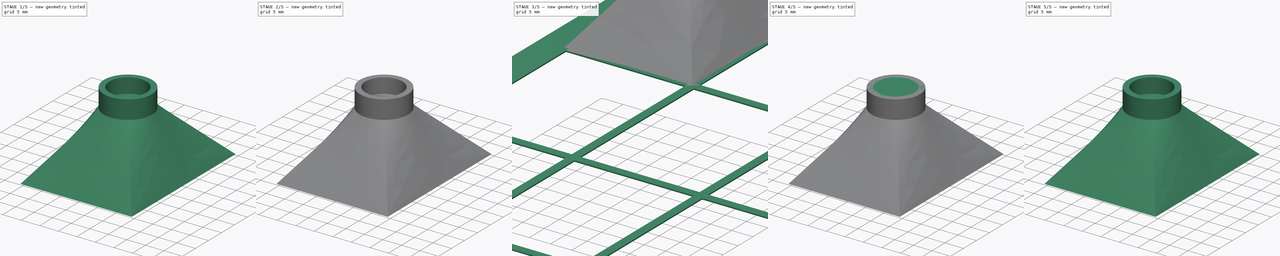
[diagram: build sequence overview — one tinted view per stage of 5, left to right]
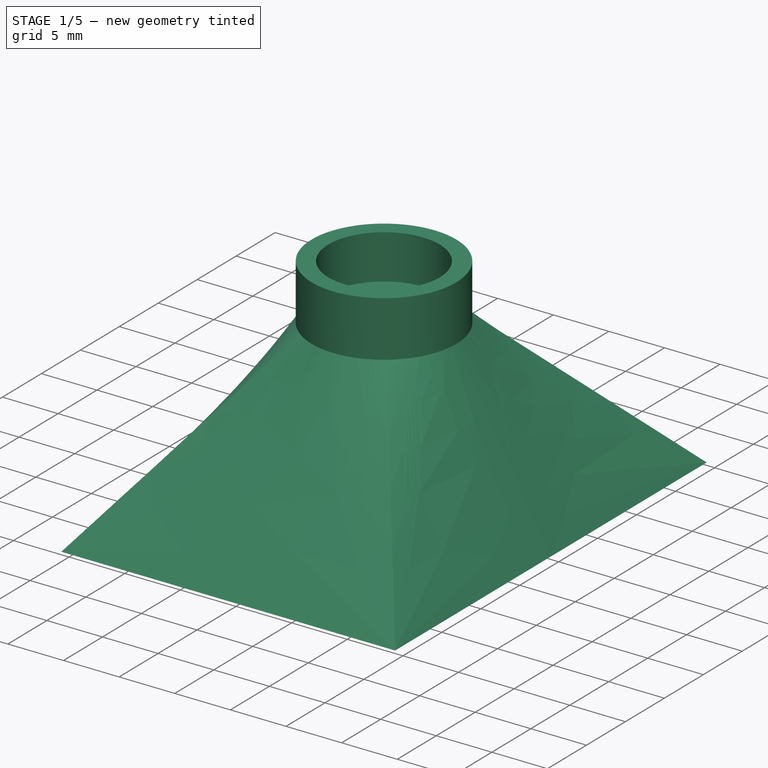
[diagram: stage 1 of 5 — iso view after this stage's code; geometry added in this stage tinted green]
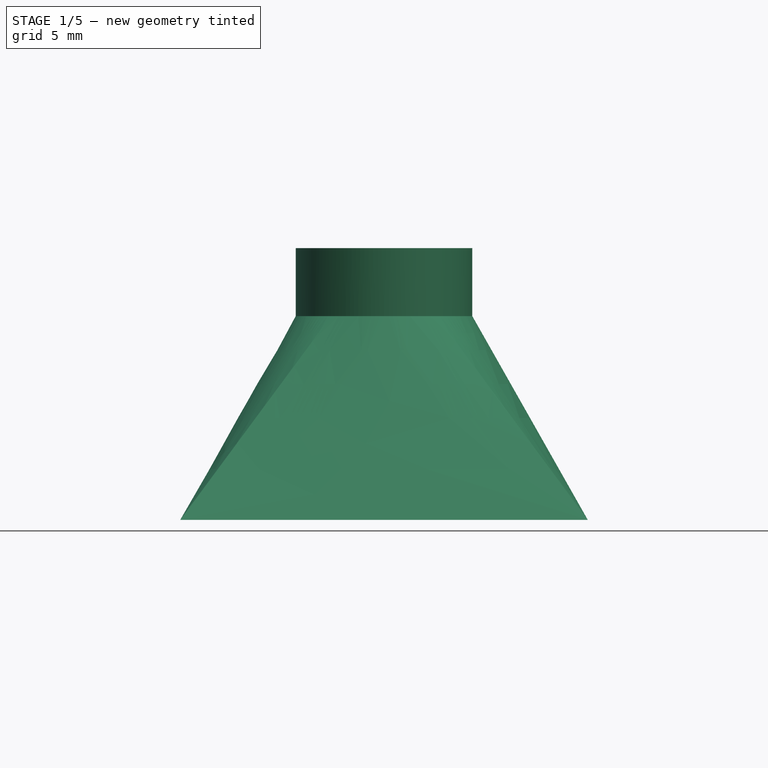
[diagram: stage 1 of 5 — front view after this stage's code; geometry added in this stage tinted green]
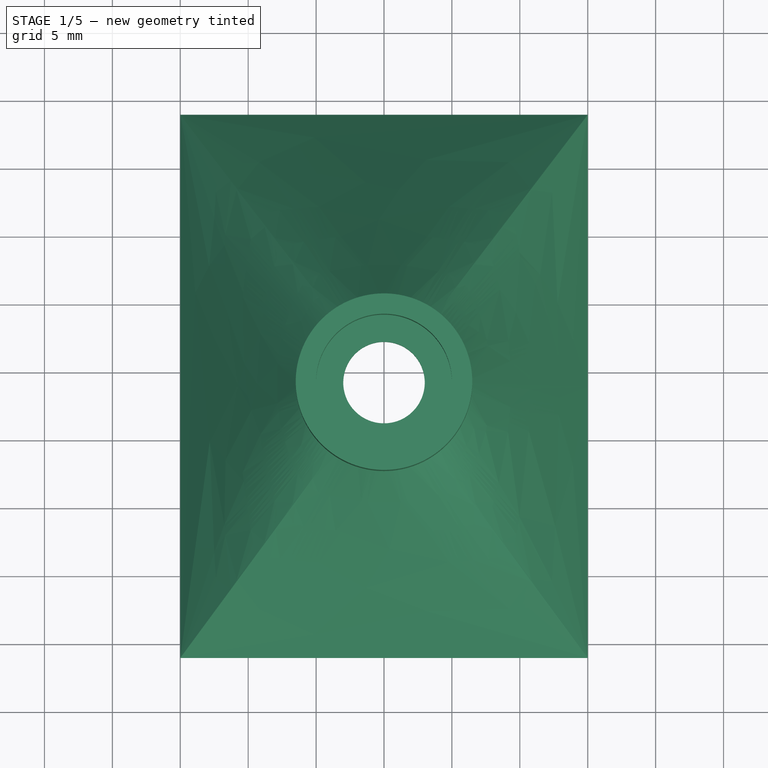
[diagram: stage 1 of 5 — top view after this stage's code; geometry added in this stage tinted green]
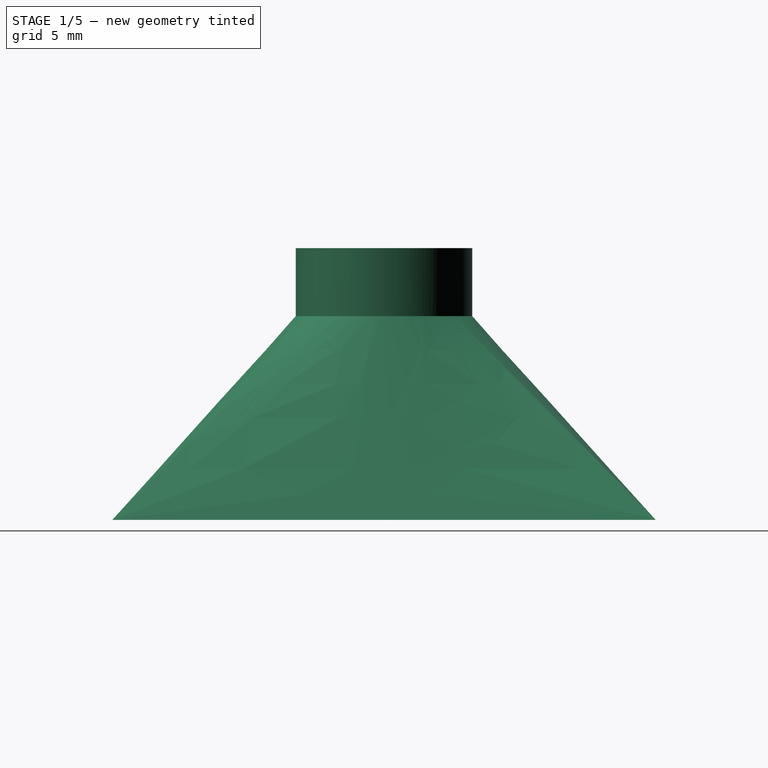
[diagram: stage 1 of 5 — right view after this stage's code; geometry added in this stage tinted green]
FCSTD DOCUMENT  (FreeCAD 0.20R26720 (Git))
Label: matrix_lamp_holder2
License: All rights reserved
LicenseURL: http://en.wikipedia.org/wiki/All_rights_reserved
objects: Sketcher::SketchObject×72, PartDesign::Pad×24, PartDesign::Body×13, PartDesign::ShapeBinder×12, PartDesign::AdditiveLoft×12, PartDesign::Pocket×12, PartDesign::Hole×12
note: 217 computed .brp shape members not serialized (recipe doc carries the construction recipe); baked Part::Feature solids carry a one-line shape summary decoded from their .brp

FEATURE [PartDesign::Body] Body009  label="Reflector009"
  Group = -> [ShapeBinder008,Sketch049,Sketch048,AdditiveLoft008,Sketch052,Pad017,Sketch051,Sketch053,Pocket008,Hole008]
  Origin = -> Origin009
  Placement = pos=(0,-80,0) rot=(0,0,1;0rad)
  Tip = -> Hole008
FEATURE [Sketcher::SketchObject] Sketch056
  FullyConstrained = true
  MapMode = 5
  Support = -> [XY_Plane019]
  expr: Constraints[18] = 5 + 2
  sketch-geometry (52):
    g0: LineSegment StartX=-51 StartY=85 StartZ=0 EndX=51 EndY=85 EndZ=0
    g1: LineSegment StartX=51 StartY=85 StartZ=0 EndX=51 EndY=-85 EndZ=0
    g2: LineSegment StartX=51 StartY=-85 StartZ=0 EndX=-51 EndY=-85 EndZ=0
    g3: LineSegment StartX=-51 StartY=-85 StartZ=0 EndX=-51 EndY=85 EndZ=0
    g4: LineSegment StartX=-44 StartY=78 StartZ=0 EndX=-16 EndY=78 EndZ=0
    g5: LineSegment StartX=-16 StartY=78 StartZ=0 EndX=-16 EndY=40 EndZ=0
    g6: LineSegment StartX=-16 StartY=40 StartZ=0 EndX=-44 EndY=40 EndZ=0
    g7: LineSegment StartX=-44 StartY=40 StartZ=0 EndX=-44 EndY=78 EndZ=0
    g8: LineSegment StartX=-44 StartY=38 StartZ=0 EndX=-16 EndY=38 EndZ=0
    g9: LineSegment StartX=-16 StartY=38 StartZ=0 EndX=-16 EndY=-9.27471e-11 EndZ=0
    g10: LineSegment StartX=-16 StartY=-9.27471e-11 StartZ=0 EndX=-44 EndY=-9.27471e-11 EndZ=0
    g11: LineSegment StartX=-44 StartY=-9.27471e-11 StartZ=0 EndX=-44 EndY=38 EndZ=0
    g12: LineSegment StartX=-44 StartY=-2 StartZ=0 EndX=-16 EndY=-2 EndZ=0
    g13: LineSegment StartX=-16 StartY=-2 StartZ=0 EndX=-16 EndY=-40 EndZ=0
    g14: LineSegment StartX=-16 StartY=-40 StartZ=0 EndX=-44 EndY=-40 EndZ=0
    g15: LineSegment StartX=-44 StartY=-40 StartZ=0 EndX=-44 EndY=-2 EndZ=0
    g16: LineSegment StartX=-44 StartY=-42 StartZ=0 EndX=-16 EndY=-42 EndZ=0
    g17: LineSegment StartX=-16 StartY=-42 StartZ=0 EndX=-16 EndY=-80 EndZ=0
    g18: LineSegment StartX=-16 StartY=-80 StartZ=0 EndX=-44 EndY=-80 EndZ=0
    g19: LineSegment StartX=-44 StartY=-80 StartZ=0 EndX=-44 EndY=-42 EndZ=0
    g20: LineSegment StartX=-14 StartY=78 StartZ=0 EndX=14 EndY=78 EndZ=0
    g21: LineSegment StartX=14 StartY=78 StartZ=0 EndX=14 EndY=40 EndZ=0
    g22: LineSegment StartX=14 StartY=40 StartZ=0 EndX=-14 EndY=40 EndZ=0
    g23: LineSegment StartX=-14 StartY=40 StartZ=0 EndX=-14 EndY=78 EndZ=0
    g24: LineSegment StartX=-14 StartY=38 StartZ=0 EndX=14 EndY=38 EndZ=0
    g25: LineSegment StartX=14 StartY=38 StartZ=0 EndX=14 EndY=-2.7849e-10 EndZ=0
    g26: LineSegment StartX=14 StartY=-2.7849e-10 StartZ=0 EndX=-14 EndY=-2.7849e-10 EndZ=0
    g27: LineSegment StartX=-14 StartY=-2.7849e-10 StartZ=0 EndX=-14 EndY=38 EndZ=0
    g28: LineSegment StartX=-14 StartY=-2 StartZ=0 EndX=14 EndY=-2 EndZ=0
    g29: LineSegment StartX=14 StartY=-2 StartZ=0 EndX=14 EndY=-40 EndZ=0
    g30: LineSegment StartX=14 StartY=-40 StartZ=0 EndX=-14 EndY=-40 EndZ=0
    g31: LineSegment StartX=-14 StartY=-40 StartZ=0 EndX=-14 EndY=-2 EndZ=0
    g32: LineSegment StartX=-14 StartY=-42 StartZ=0 EndX=14 EndY=-42 EndZ=0
    g33: LineSegment StartX=14 StartY=-42 StartZ=0 EndX=14 EndY=-80 EndZ=0
    g34: LineSegment StartX=14 StartY=-80 StartZ=0 EndX=-14 EndY=-80 EndZ=0
    g35: LineSegment StartX=-14 StartY=-80 StartZ=0 EndX=-14 EndY=-42 EndZ=0
    g36: LineSegment StartX=16 StartY=78 StartZ=0 EndX=44 EndY=78 EndZ=0
    g37: LineSegment StartX=44 StartY=78 StartZ=0 EndX=44 EndY=40 EndZ=0
    g38: LineSegment StartX=44 StartY=40 StartZ=0 EndX=16 EndY=40 EndZ=0
    g39: LineSegment StartX=16 StartY=40 StartZ=0 EndX=16 EndY=78 EndZ=0
    g40: LineSegment StartX=16 StartY=38 StartZ=0 EndX=44 EndY=38 EndZ=0
    g41: LineSegment StartX=44 StartY=38 StartZ=0 EndX=44 EndY=9.30314e-11 EndZ=0
    g42: LineSegment StartX=44 StartY=9.30314e-11 StartZ=0 EndX=16 EndY=9.30314e-11 EndZ=0
    g43: LineSegment StartX=16 StartY=9.30314e-11 StartZ=0 EndX=16 EndY=38 EndZ=0
    g44: LineSegment StartX=16 StartY=-2 StartZ=0 EndX=44 EndY=-2 EndZ=0
    g45: LineSegment StartX=44 StartY=-2 StartZ=0 EndX=44 EndY=-40 EndZ=0
    g46: LineSegment StartX=44 StartY=-40 StartZ=0 EndX=16 EndY=-40 EndZ=0
    g47: LineSegment StartX=16 StartY=-40 StartZ=0 EndX=16 EndY=-2 EndZ=0
    g48: LineSegment StartX=16 StartY=-42 StartZ=0 EndX=44 EndY=-42 EndZ=0
    g49: LineSegment StartX=44 StartY=-42 StartZ=0 EndX=44 EndY=-80 EndZ=0
    g50: LineSegment StartX=44 StartY=-80 StartZ=0 EndX=16 EndY=-80 EndZ=0
    g51: LineSegment StartX=16 StartY=-80 StartZ=0 EndX=16 EndY=-42 EndZ=0
  constraints (154):
    c: Coincident(g0,g1)
    c: Coincident(g1,g2)
    c: Coincident(g2,g3)
    c: Coincident(g3,g0)
    c: Horizontal(g2)
    c: Vertical(g1)
    c: Symmetric(g0,g2,g-1)
    c: Symmetric(g0,g0,g-2)
    c: Distance(g2) = 102
    c: Distance(g1) = 170
    c: Coincident(g4,g5)
    c: Coincident(g5,g6)
    c: Coincident(g6,g7)
    c: Coincident(g7,g4)
    c: Horizontal(g4)
    c: Horizontal(g6)
    c: Vertical(g5)
    c: Vertical(g7)
    c: DistanceX(g0,g4) = 7
    c: Distance(g6) = 28
    c: Distance(g5) = 38
    c: DistanceY(g4,g0) = 7
    c: Coincident(g8,g9)
    c: Coincident(g9,g10)
    c: Coincident(g10,g11)
    c: Coincident(g11,g8)
    c: Horizontal(g8)
    c: Horizontal(g10)
    c: Vertical(g9)
    c: Vertical(g11)
    c: Equal(g6,g10) = 28
    c: Equal(g5,g9) = 38
    c: DistanceY(g8,g6) = 2
    c: DistanceX(g0,g8) = 7
    c: Coincident(g12,g13)
    c: Coincident(g13,g14)
    c: Coincident(g14,g15)
    c: Coincident(g15,g12)
    c: Horizontal(g12)
    c: Horizontal(g14)
    c: Vertical(g13)
    c: Vertical(g15)
    c: Equal(g6,g14) = 28
    c: Equal(g5,g13) = 38
    c: DistanceY(g12,g10) = 2
    c: Coincident(g16,g17)
    c: Coincident(g17,g18)
    c: Coincident(g18,g19)
    c: Coincident(g19,g16)
    c: Horizontal(g16)
    c: Horizontal(g18)
    c: Vertical(g17)
    c: Vertical(g19)
    c: Equal(g6,g18) = 28
    c: Equal(g5,g17) = 38
    c: Coincident(g20,g21)
    c: Coincident(g21,g22)
    c: Coincident(g22,g23)
    c: Coincident(g23,g20)
    c: Horizontal(g20)
    c: Horizontal(g22)
    c: Vertical(g21)
    c: Vertical(g23)
    c: Equal(g6,g22) = 28
    c: Equal(g5,g21) = 38
    c: Coincident(g24,g25)
    c: Coincident(g25,g26)
    c: Coincident(g26,g27)
    c: Coincident(g27,g24)
    c: Horizontal(g24)
    c: Horizontal(g26)
    c: Vertical(g25)
    c: Vertical(g27)
    c: Equal(g22,g26) = 28
    c: Equal(g21,g25) = 38
    c: DistanceY(g24,g22) = 2
    c: Coincident(g28,g29)
    c: Coincident(g29,g30)
    c: Coincident(g30,g31)
    c: Coincident(g31,g28)
    c: Horizontal(g28)
    c: Horizontal(g30)
    c: Vertical(g29)
    c: Vertical(g31)
    c: Equal(g22,g30) = 28
    c: Equal(g21,g29) = 38
    c: DistanceY(g28,g26) = 2
    c: Coincident(g32,g33)
    c: Coincident(g33,g34)
    c: Coincident(g34,g35)
    c: Coincident(g35,g32)
    c: Horizontal(g32)
    c: Horizontal(g34)
    c: Vertical(g33)
    c: Vertical(g35)
    c: Equal(g22,g34) = 28
    c: Equal(g21,g33) = 38
    c: DistanceY(g20,g0) = 7
    c: DistanceY(g16,g14) = 2
    c: DistanceX(g4,g20) = 2
    c: DistanceX(g0,g12) = 7
    c: DistanceX(g0,g16) = 7
    c: DistanceX(g8,g24) = 2
    c: DistanceX(g12,g28) = 2
    c: DistanceY(g32,g30) = 2
    c: DistanceX(g16,g32) = 2
    c: Coincident(g36,g37)
    c: Coincident(g37,g38)
    c: Coincident(g38,g39)
    c: Coincident(g39,g36)
    c: Horizontal(g36)
    c: Horizontal(g38)
    c: Vertical(g37)
    c: Vertical(g39)
    c: Coincident(g40,g41)
    c: Coincident(g41,g42)
    c: Coincident(g42,g43)
    c: Coincident(g43,g40)
    c: Horizontal(g40)
    c: Horizontal(g42)
    c: Vertical(g41)
    c: Vertical(g43)
    c: Equal(g38,g42) = 28
    c: DistanceY(g40,g38) = 2
    c: Coincident(g44,g45)
    c: Coincident(g45,g46)
    c: Coincident(g46,g47)
    c: Coincident(g47,g44)
    c: Horizontal(g44)
    c: Horizontal(g46)
    c: Vertical(g45)
    c: Vertical(g47)
    c: Equal(g38,g46) = 28
    c: DistanceY(g44,g42) = 2
    c: Coincident(g48,g49)
    c: Coincident(g49,g50)
    c: Coincident(g50,g51)
    c: Coincident(g51,g48)
    c: Horizontal(g48)
    c: Horizontal(g50)
    c: Vertical(g49)
    c: Vertical(g51)
    c: Equal(g38,g50) = 28
    c: Equal(g37,g49) = 38
    c: DistanceY(g48,g46) = 2
    c: DistanceY(g36,g0) = 7
    c: Equal(g37,g41)
    c: Equal(g41,g45)
    c: Equal(g49,g21)
    c: DistanceX(g20,g36) = 2
    c: DistanceX(g24,g40) = 2
    c: DistanceX(g28,g44) = 2
    c: DistanceX(g32,g48) = 2
    c: Distance(g50) = 28
FEATURE [PartDesign::Pad] Pad018
  Direction = (0,0,1)
  Length = 0.3
  Length2 = 100
  Profile = -> Sketch056
  ReferenceAxis = -> Sketch056 [N_Axis]
  Type = 0
FEATURE [PartDesign::ShapeBinder] ShapeBinder009
  Placement = pos=(0,0,0.3) rot=(0,0,1;0rad)
  Support = -> [Pad018]
  TraceSupport = false
FEATURE [Sketcher::SketchObject] Sketch054
  ExternalGeometry = -> [ShapeBinder009]
  FullyConstrained = true
  MapMode = 5
  Placement = pos=(0,0,0.3) rot=(0,0,1;0rad)
  Support = -> [ShapeBinder009]
  sketch-geometry (8):
    g0: LineSegment StartX=-45 StartY=79 StartZ=0 EndX=-15 EndY=79 EndZ=0
    g1: LineSegment StartX=-15 StartY=79 StartZ=0 EndX=-15 EndY=39 EndZ=0
    g2: LineSegment StartX=-15 StartY=39 StartZ=0 EndX=-45 EndY=39 EndZ=0
    g3: LineSegment StartX=-45 StartY=39 StartZ=0 EndX=-45 EndY=79 EndZ=0
    g4: LineSegment StartX=-44 StartY=78 StartZ=0 EndX=-16 EndY=78 EndZ=0
    g5: LineSegment StartX=-16 StartY=78 StartZ=0 EndX=-16 EndY=40 EndZ=0
    g6: LineSegment StartX=-16 StartY=40 StartZ=0 EndX=-44 EndY=40 EndZ=0
    g7: LineSegment StartX=-44 StartY=40 StartZ=0 EndX=-44 EndY=78 EndZ=0
  constraints (24):
    c: Coincident(g0,g1)
    c: Coincident(g1,g2)
    c: Coincident(g2,g3)
    c: Coincident(g3,g0)
    c: Horizontal(g0)
    c: Horizontal(g2)
    c: Vertical(g1)
    c: Vertical(g3)
    c: Coincident(g4,g5)
    c: Coincident(g5,g6)
    c: Coincident(g6,g7)
    c: Coincident(g7,g4)
    c: Horizontal(g4)
    c: Horizontal(g6)
    c: Vertical(g5)
    c: Vertical(g7)
    c: DistanceY(g4,g0) = 1
    c: DistanceX(g0,g4) = 1
    c: DistanceX(g4,g0) = 1
    c: DistanceY(g1,g5) = 1
    c: DistanceX(g-5,g0) = -1
    c: DistanceY(g0,g-5) = -1
    c: DistanceX(g0,g-4) = -1
    c: DistanceY(g-6,g2) = -1
FEATURE [Sketcher::SketchObject] Sketch055
  AttachmentOffset = pos=(0,0,15) rot=(0,0,1;0rad)
  ExternalGeometry = -> [ShapeBinder009]
  FullyConstrained = true
  MapMode = 5
  Placement = pos=(0,0,15.3) rot=(0,0,1;0rad)
  Support = -> [ShapeBinder009]
  sketch-geometry (4):
    g0: Circle CenterX=-30 CenterY=59 CenterZ=0 NormalX=0 NormalY=0 NormalZ=1 AngleXU=0 Radius=6.5
    g1: LineSegment StartX=-30 StartY=78 StartZ=0 EndX=-30 EndY=40 EndZ=0
    g2: LineSegment StartX=-44 StartY=59 StartZ=0 EndX=-16 EndY=59 EndZ=0
    g3: Circle CenterX=-30 CenterY=59 CenterZ=0 NormalX=0 NormalY=0 NormalZ=1 AngleXU=0 Radius=6
  constraints (11):
    c: PointOnObject(g1,g-4)
    c: PointOnObject(g2,g-5)
    c: PointOnObject(g2,g-3)
    c: Symmetric(g-5,g-3,g1)
    c: Symmetric(g-5,g-5,g2)
    c: DistanceY(g2,g0) = 0
    c: DistanceX(g1,g0) = 0
    c: Diameter(g0) = 13
    c: Equal(g1,g-3)
    c: Coincident(g3,g0)
    c: Diameter(g3) = 12
FEATURE [PartDesign::AdditiveLoft] AdditiveLoft009
  Closed = false
  Placement = pos=(0,0,0.3) rot=(0,0,1;0rad)
  Profile = -> Sketch054
  Ruled = false
  Sections = -> [Sketch055]
FEATURE [PartDesign::Body] Body010  label="Reflector010"
  Group = -> [ShapeBinder009,Sketch055,Sketch054,AdditiveLoft009,Sketch058,Pad019,Sketch057,Sketch059,Pocket009,Hole009]
  Origin = -> Origin010
  Placement = pos=(0,-120,0) rot=(0,0,1;0rad)
  Tip = -> Hole009
FEATURE [Sketcher::SketchObject] Sketch061
  FullyConstrained = true
  MapMode = 5
  Support = -> [XY_Plane021]
  expr: Constraints[18] = 5 + 2
  sketch-geometry (52):
    g0: LineSegment StartX=-51 StartY=85 StartZ=0 EndX=51 EndY=85 EndZ=0
    g1: LineSegment StartX=51 StartY=85 StartZ=0 EndX=51 EndY=-85 EndZ=0
    g2: LineSegment StartX=51 StartY=-85 StartZ=0 EndX=-51 EndY=-85 EndZ=0
    g3: LineSegment StartX=-51 StartY=-85 StartZ=0 EndX=-51 EndY=85 EndZ=0
    g4: LineSegment StartX=-44 StartY=78 StartZ=0 EndX=-16 EndY=78 EndZ=0
    g5: LineSegment StartX=-16 StartY=78 StartZ=0 EndX=-16 EndY=40 EndZ=0
    g6: LineSegment StartX=-16 StartY=40 StartZ=0 EndX=-44 EndY=40 EndZ=0
    g7: LineSegment StartX=-44 StartY=40 StartZ=0 EndX=-44 EndY=78 EndZ=0
    g8: LineSegment StartX=-44 StartY=38 StartZ=0 EndX=-16 EndY=38 EndZ=0
    g9: LineSegment StartX=-16 StartY=38 StartZ=0 EndX=-16 EndY=-9.27471e-11 EndZ=0
    g10: LineSegment StartX=-16 StartY=-9.27471e-11 StartZ=0 EndX=-44 EndY=-9.27471e-11 EndZ=0
    g11: LineSegment StartX=-44 StartY=-9.27471e-11 StartZ=0 EndX=-44 EndY=38 EndZ=0
    g12: LineSegment StartX=-44 StartY=-2 StartZ=0 EndX=-16 EndY=-2 EndZ=0
    g13: LineSegment StartX=-16 StartY=-2 StartZ=0 EndX=-16 EndY=-40 EndZ=0
    g14: LineSegment StartX=-16 StartY=-40 StartZ=0 EndX=-44 EndY=-40 EndZ=0
    g15: LineSegment StartX=-44 StartY=-40 StartZ=0 EndX=-44 EndY=-2 EndZ=0
    g16: LineSegment StartX=-44 StartY=-42 StartZ=0 EndX=-16 EndY=-42 EndZ=0
    g17: LineSegment StartX=-16 StartY=-42 StartZ=0 EndX=-16 EndY=-80 EndZ=0
    g18: LineSegment StartX=-16 StartY=-80 StartZ=0 EndX=-44 EndY=-80 EndZ=0
    g19: LineSegment StartX=-44 StartY=-80 StartZ=0 EndX=-44 EndY=-42 EndZ=0
    g20: LineSegment StartX=-14 StartY=78 StartZ=0 EndX=14 EndY=78 EndZ=0
    g21: LineSegment StartX=14 StartY=78 StartZ=0 EndX=14 EndY=40 EndZ=0
    g22: LineSegment StartX=14 StartY=40 StartZ=0 EndX=-14 EndY=40 EndZ=0
    g23: LineSegment StartX=-14 StartY=40 StartZ=0 EndX=-14 EndY=78 EndZ=0
    g24: LineSegment StartX=-14 StartY=38 StartZ=0 EndX=14 EndY=38 EndZ=0
    g25: LineSegment StartX=14 StartY=38 StartZ=0 EndX=14 EndY=-2.7849e-10 EndZ=0
    g26: LineSegment StartX=14 StartY=-2.7849e-10 StartZ=0 EndX=-14 EndY=-2.7849e-10 EndZ=0
    g27: LineSegment StartX=-14 StartY=-2.7849e-10 StartZ=0 EndX=-14 EndY=38 EndZ=0
    g28: LineSegment StartX=-14 StartY=-2 StartZ=0 EndX=14 EndY=-2 EndZ=0
    g29: LineSegment StartX=14 StartY=-2 StartZ=0 EndX=14 EndY=-40 EndZ=0
    g30: LineSegment StartX=14 StartY=-40 StartZ=0 EndX=-14 EndY=-40 EndZ=0
    g31: LineSegment StartX=-14 StartY=-40 StartZ=0 EndX=-14 EndY=-2 EndZ=0
    g32: LineSegment StartX=-14 StartY=-42 StartZ=0 EndX=14 EndY=-42 EndZ=0
    g33: LineSegment StartX=14 StartY=-42 StartZ=0 EndX=14 EndY=-80 EndZ=0
    g34: LineSegment StartX=14 StartY=-80 StartZ=0 EndX=-14 EndY=-80 EndZ=0
    g35: LineSegment StartX=-14 StartY=-80 StartZ=0 EndX=-14 EndY=-42 EndZ=0
    g36: LineSegment StartX=16 StartY=78 StartZ=0 EndX=44 EndY=78 EndZ=0
    g37: LineSegment StartX=44 StartY=78 StartZ=0 EndX=44 EndY=40 EndZ=0
    g38: LineSegment StartX=44 StartY=40 StartZ=0 EndX=16 EndY=40 EndZ=0
    g39: LineSegment StartX=16 StartY=40 StartZ=0 EndX=16 EndY=78 EndZ=0
    g40: LineSegment StartX=16 StartY=38 StartZ=0 EndX=44 EndY=38 EndZ=0
    g41: LineSegment StartX=44 StartY=38 StartZ=0 EndX=44 EndY=9.30314e-11 EndZ=0
    g42: LineSegment StartX=44 StartY=9.30314e-11 StartZ=0 EndX=16 EndY=9.30314e-11 EndZ=0
    g43: LineSegment StartX=16 StartY=9.30314e-11 StartZ=0 EndX=16 EndY=38 EndZ=0
    g44: LineSegment StartX=16 StartY=-2 StartZ=0 EndX=44 EndY=-2 EndZ=0
    g45: LineSegment StartX=44 StartY=-2 StartZ=0 EndX=44 EndY=-40 EndZ=0
    g46: LineSegment StartX=44 StartY=-40 StartZ=0 EndX=16 EndY=-40 EndZ=0
    g47: LineSegment StartX=16 StartY=-40 StartZ=0 EndX=16 EndY=-2 EndZ=0
    g48: LineSegment StartX=16 StartY=-42 StartZ=0 EndX=44 EndY=-42 EndZ=0
    g49: LineSegment StartX=44 StartY=-42 StartZ=0 EndX=44 EndY=-80 EndZ=0
    g50: LineSegment StartX=44 StartY=-80 StartZ=0 EndX=16 EndY=-80 EndZ=0
    g51: LineSegment StartX=16 StartY=-80 StartZ=0 EndX=16 EndY=-42 EndZ=0
  constraints (154):
    c: Coincident(g0,g1)
    c: Coincident(g1,g2)
    c: Coincident(g2,g3)
    c: Coincident(g3,g0)
    c: Horizontal(g2)
    c: Vertical(g1)
    c: Symmetric(g0,g2,g-1)
    c: Symmetric(g0,g0,g-2)
    c: Distance(g2) = 102
    c: Distance(g1) = 170
    c: Coincident(g4,g5)
    c: Coincident(g5,g6)
    c: Coincident(g6,g7)
    c: Coincident(g7,g4)
    c: Horizontal(g4)
    c: Horizontal(g6)
    c: Vertical(g5)
    c: Vertical(g7)
    c: DistanceX(g0,g4) = 7
    c: Distance(g6) = 28
    c: Distance(g5) = 38
    c: DistanceY(g4,g0) = 7
    c: Coincident(g8,g9)
    c: Coincident(g9,g10)
    c: Coincident(g10,g11)
    c: Coincident(g11,g8)
    c: Horizontal(g8)
    c: Horizontal(g10)
    c: Vertical(g9)
    c: Vertical(g11)
    c: Equal(g6,g10) = 28
    c: Equal(g5,g9) = 38
    c: DistanceY(g8,g6) = 2
    c: DistanceX(g0,g8) = 7
    c: Coincident(g12,g13)
    c: Coincident(g13,g14)
    c: Coincident(g14,g15)
    c: Coincident(g15,g12)
    c: Horizontal(g12)
    c: Horizontal(g14)
    c: Vertical(g13)
    c: Vertical(g15)
    c: Equal(g6,g14) = 28
    c: Equal(g5,g13) = 38
    c: DistanceY(g12,g10) = 2
    c: Coincident(g16,g17)
    c: Coincident(g17,g18)
    c: Coincident(g18,g19)
    c: Coincident(g19,g16)
    c: Horizontal(g16)
    c: Horizontal(g18)
    c: Vertical(g17)
    c: Vertical(g19)
    c: Equal(g6,g18) = 28
    c: Equal(g5,g17) = 38
    c: Coincident(g20,g21)
    c: Coincident(g21,g22)
    c: Coincident(g22,g23)
    c: Coincident(g23,g20)
    c: Horizontal(g20)
    c: Horizontal(g22)
    c: Vertical(g21)
    c: Vertical(g23)
    c: Equal(g6,g22) = 28
    c: Equal(g5,g21) = 38
    c: Coincident(g24,g25)
    c: Coincident(g25,g26)
    c: Coincident(g26,g27)
    c: Coincident(g27,g24)
    c: Horizontal(g24)
    c: Horizontal(g26)
    c: Vertical(g25)
    c: Vertical(g27)
    c: Equal(g22,g26) = 28
    c: Equal(g21,g25) = 38
    c: DistanceY(g24,g22) = 2
    c: Coincident(g28,g29)
    c: Coincident(g29,g30)
    c: Coincident(g30,g31)
    c: Coincident(g31,g28)
    c: Horizontal(g28)
    c: Horizontal(g30)
    c: Vertical(g29)
    c: Vertical(g31)
    c: Equal(g22,g30) = 28
    c: Equal(g21,g29) = 38
    c: DistanceY(g28,g26) = 2
    c: Coincident(g32,g33)
    c: Coincident(g33,g34)
    c: Coincident(g34,g35)
    c: Coincident(g35,g32)
    c: Horizontal(g32)
    c: Horizontal(g34)
    c: Vertical(g33)
    c: Vertical(g35)
    c: Equal(g22,g34) = 28
    c: Equal(g21,g33) = 38
    c: DistanceY(g20,g0) = 7
    c: DistanceY(g16,g14) = 2
    c: DistanceX(g4,g20) = 2
    c: DistanceX(g0,g12) = 7
    c: DistanceX(g0,g16) = 7
    c: DistanceX(g8,g24) = 2
    c: DistanceX(g12,g28) = 2
    c: DistanceY(g32,g30) = 2
    c: DistanceX(g16,g32) = 2
    c: Coincident(g36,g37)
    c: Coincident(g37,g38)
    c: Coincident(g38,g39)
    c: Coincident(g39,g36)
    c: Horizontal(g36)
    c: Horizontal(g38)
    c: Vertical(g37)
    c: Vertical(g39)
    c: Coincident(g40,g41)
    c: Coincident(g41,g42)
    c: Coincident(g42,g43)
    c: Coincident(g43,g40)
    c: Horizontal(g40)
    c: Horizontal(g42)
    c: Vertical(g41)
    c: Vertical(g43)
    c: Equal(g38,g42) = 28
    c: DistanceY(g40,g38) = 2
    c: Coincident(g44,g45)
    c: Coincident(g45,g46)
    c: Coincident(g46,g47)
    c: Coincident(g47,g44)
    c: Horizontal(g44)
    c: Horizontal(g46)
    c: Vertical(g45)
    c: Vertical(g47)
    c: Equal(g38,g46) = 28
    c: DistanceY(g44,g42) = 2
    c: Coincident(g48,g49)
    c: Coincident(g49,g50)
    c: Coincident(g50,g51)
    c: Coincident(g51,g48)
    c: Horizontal(g48)
    c: Horizontal(g50)
    c: Vertical(g49)
    c: Vertical(g51)
    c: Equal(g38,g50) = 28
    c: Equal(g37,g49) = 38
    c: DistanceY(g48,g46) = 2
    c: DistanceY(g36,g0) = 7
    c: Equal(g37,g41)
    c: Equal(g41,g45)
    c: Equal(g49,g21)
    c: DistanceX(g20,g36) = 2
    c: DistanceX(g24,g40) = 2
    c: DistanceX(g28,g44) = 2
    c: DistanceX(g32,g48) = 2
    c: Distance(g50) = 28
FEATURE [PartDesign::Pad] Pad020
  Direction = (0,0,1)
  Length = 0.3
  Length2 = 100
  Profile = -> Sketch061
  ReferenceAxis = -> Sketch061 [N_Axis]
  Type = 0
FEATURE [PartDesign::ShapeBinder] ShapeBinder010
  Placement = pos=(0,0,0.3) rot=(0,0,1;0rad)
  Support = -> [Pad020]
  TraceSupport = false
FEATURE [Sketcher::SketchObject] Sketch060
  AttachmentOffset = pos=(0,0,15) rot=(0,0,1;0rad)
  ExternalGeometry = -> [ShapeBinder010]
  FullyConstrained = true
  MapMode = 5
  Placement = pos=(0,0,15.3) rot=(0,0,1;0rad)
  Support = -> [ShapeBinder010]
  sketch-geometry (4):
    g0: Circle CenterX=-30 CenterY=59 CenterZ=0 NormalX=0 NormalY=0 NormalZ=1 AngleXU=0 Radius=6.5
    g1: LineSegment StartX=-30 StartY=78 StartZ=0 EndX=-30 EndY=40 EndZ=0
    g2: LineSegment StartX=-44 StartY=59 StartZ=0 EndX=-16 EndY=59 EndZ=0
    g3: Circle CenterX=-30 CenterY=59 CenterZ=0 NormalX=0 NormalY=0 NormalZ=1 AngleXU=0 Radius=6
  constraints (11):
    c: PointOnObject(g1,g-4)
    c: PointOnObject(g2,g-5)
    c: PointOnObject(g2,g-3)
    c: Symmetric(g-5,g-3,g1)
    c: Symmetric(g-5,g-5,g2)
    c: DistanceY(g2,g0) = 0
    c: DistanceX(g1,g0) = 0
    c: Diameter(g0) = 13
    c: Equal(g1,g-3)
    c: Coincident(g3,g0)
    c: Diameter(g3) = 12
FEATURE [Sketcher::SketchObject] Sketch065
  ExternalGeometry = -> [ShapeBinder010]
  FullyConstrained = true
  MapMode = 5
  Placement = pos=(0,0,0.3) rot=(0,0,1;0rad)
  Support = -> [ShapeBinder010]
  sketch-geometry (8):
    g0: LineSegment StartX=-45 StartY=79 StartZ=0 EndX=-15 EndY=79 EndZ=0
    g1: LineSegment StartX=-15 StartY=79 StartZ=0 EndX=-15 EndY=39 EndZ=0
    g2: LineSegment StartX=-15 StartY=39 StartZ=0 EndX=-45 EndY=39 EndZ=0
    g3: LineSegment StartX=-45 StartY=39 StartZ=0 EndX=-45 EndY=79 EndZ=0
    g4: LineSegment StartX=-44 StartY=78 StartZ=0 EndX=-16 EndY=78 EndZ=0
    g5: LineSegment StartX=-16 StartY=78 StartZ=0 EndX=-16 EndY=40 EndZ=0
    g6: LineSegment StartX=-16 StartY=40 StartZ=0 EndX=-44 EndY=40 EndZ=0
    g7: LineSegment StartX=-44 StartY=40 StartZ=0 EndX=-44 EndY=78 EndZ=0
  constraints (24):
    c: Coincident(g0,g1)
    c: Coincident(g1,g2)
    c: Coincident(g2,g3)
    c: Coincident(g3,g0)
    c: Horizontal(g0)
    c: Horizontal(g2)
    c: Vertical(g1)
    c: Vertical(g3)
    c: Coincident(g4,g5)
    c: Coincident(g5,g6)
    c: Coincident(g6,g7)
    c: Coincident(g7,g4)
    c: Horizontal(g4)
    c: Horizontal(g6)
    c: Vertical(g5)
    c: Vertical(g7)
    c: DistanceY(g4,g0) = 1
    c: DistanceX(g0,g4) = 1
    c: DistanceX(g4,g0) = 1
    c: DistanceY(g1,g5) = 1
    c: DistanceX(g-5,g0) = -1
    c: DistanceY(g0,g-5) = -1
    c: DistanceX(g0,g-4) = -1
    c: DistanceY(g-6,g2) = -1
FEATURE [PartDesign::AdditiveLoft] AdditiveLoft010
  Closed = false
  Placement = pos=(0,0,0.3) rot=(0,0,1;0rad)
  Profile = -> Sketch065
  Ruled = false
  Sections = -> [Sketch060]
FEATURE [Sketcher::SketchObject] Sketch063
  ExternalGeometry = -> [Sketch060]
  FullyConstrained = true
  MapMode = 5
  Placement = pos=(0,0,15.3) rot=(0,0,1;0rad)
  Support = -> [AdditiveLoft010]
  sketch-geometry (1):
    g0: Circle CenterX=-30 CenterY=59 CenterZ=0 NormalX=0 NormalY=0 NormalZ=1 AngleXU=0 Radius=6.5
  constraints (2):
    c: Coincident(g0,g-3)
    c: Tangent(g0,g-3)
FEATURE [PartDesign::Pad] Pad021
  BaseFeature = -> AdditiveLoft010
  Direction = (0,0,1)
  Length = 5
  Length2 = 100
  Placement = pos=(0,0,0.3) rot=(0,0,1;0rad)
  Profile = -> Sketch063
  ReferenceAxis = -> Sketch063 [N_Axis]
  Type = 0
FEATURE [Sketcher::SketchObject] Sketch062
  FullyConstrained = true
  MapMode = 5
  Placement = pos=(0,0,20.3) rot=(0,0,1;0rad)
  Support = -> [Pad021]
FEATURE [Sketcher::SketchObject] Sketch064
  ExternalGeometry = -> [Pad021]
  FullyConstrained = true
  MapMode = 5
  Placement = pos=(0,0,20.3) rot=(0,0,1;0rad)
  Support = -> [Pad021]
  sketch-geometry (1):
    g0: Circle CenterX=-30 CenterY=59 CenterZ=0 NormalX=0 NormalY=0 NormalZ=1 AngleXU=0 Radius=5
  constraints (2):
    c: Coincident(g0,g-3)
    c: Diameter(g0) = 10
FEATURE [PartDesign::Pocket] Pocket010
  BaseFeature = -> Pad021
  Direction = (0,0,-1)
  Length = 4
  Length2 = 100
  Placement = pos=(0,0,0.3) rot=(0,0,1;0rad)
  Profile = -> Sketch064
  ReferenceAxis = -> Sketch064 [N_Axis]
  Type = 0
FEATURE [PartDesign::Hole] Hole010
  BaseFeature = -> Pocket010
  CustomThreadClearance = 0
  Depth = 25
  DepthType = 0
  Diameter = 6
  DrillForDepth = false
  DrillPoint = 1
  DrillPointAngle = 118
  HoleCutCountersinkAngle = 90
  HoleCutCustomValues = false
  HoleCutDepth = 0
  HoleCutDiameter = 6.1
  HoleCutType = 0
  ModelThread = false
  Placement = pos=(0,0,0.3) rot=(0,0,1;0rad)
  Profile = -> Pocket010 [Face16]
  Tapered = false
  TaperedAngle = 90
  ThreadClass = 0
  ThreadDepth = 25
  ThreadDepthType = 0
  ThreadDirection = 0
  ThreadFit = 0
  ThreadSize = 0
  ThreadType = 0
  Threaded = false
  UseCustomThreadClearance = false
FEATURE [PartDesign::Body] Body011  label="Reflector011"
  Group = -> [ShapeBinder010,Sketch060,Sketch065,AdditiveLoft010,Sketch063,Pad021,Sketch062,Sketch064,Pocket010,Hole010]
  Origin = -> Origin011
  Placement = pos=(30,-120,0) rot=(0,0,1;0rad)
  Tip = -> Hole010
FEATURE [Sketcher::SketchObject] Sketch067
  FullyConstrained = true
  MapMode = 5
  Support = -> [XY_Plane023]
  expr: Constraints[18] = 5 + 2
  sketch-geometry (52):
    g0: LineSegment StartX=-51 StartY=85 StartZ=0 EndX=51 EndY=85 EndZ=0
    g1: LineSegment StartX=51 StartY=85 StartZ=0 EndX=51 EndY=-85 EndZ=0
    g2: LineSegment StartX=51 StartY=-85 StartZ=0 EndX=-51 EndY=-85 EndZ=0
    g3: LineSegment StartX=-51 StartY=-85 StartZ=0 EndX=-51 EndY=85 EndZ=0
    g4: LineSegment StartX=-44 StartY=78 StartZ=0 EndX=-16 EndY=78 EndZ=0
    g5: LineSegment StartX=-16 StartY=78 StartZ=0 EndX=-16 EndY=40 EndZ=0
    g6: LineSegment StartX=-16 StartY=40 StartZ=0 EndX=-44 EndY=40 EndZ=0
    g7: LineSegment StartX=-44 StartY=40 StartZ=0 EndX=-44 EndY=78 EndZ=0
    g8: LineSegment StartX=-44 StartY=38 StartZ=0 EndX=-16 EndY=38 EndZ=0
    g9: LineSegment StartX=-16 StartY=38 StartZ=0 EndX=-16 EndY=-9.27471e-11 EndZ=0
    g10: LineSegment StartX=-16 StartY=-9.27471e-11 StartZ=0 EndX=-44 EndY=-9.27471e-11 EndZ=0
    g11: LineSegment StartX=-44 StartY=-9.27471e-11 StartZ=0 EndX=-44 EndY=38 EndZ=0
    g12: LineSegment StartX=-44 StartY=-2 StartZ=0 EndX=-16 EndY=-2 EndZ=0
    g13: LineSegment StartX=-16 StartY=-2 StartZ=0 EndX=-16 EndY=-40 EndZ=0
    g14: LineSegment StartX=-16 StartY=-40 StartZ=0 EndX=-44 EndY=-40 EndZ=0
    g15: LineSegment StartX=-44 StartY=-40 StartZ=0 EndX=-44 EndY=-2 EndZ=0
    g16: LineSegment StartX=-44 StartY=-42 StartZ=0 EndX=-16 EndY=-42 EndZ=0
    g17: LineSegment StartX=-16 StartY=-42 StartZ=0 EndX=-16 EndY=-80 EndZ=0
    g18: LineSegment StartX=-16 StartY=-80 StartZ=0 EndX=-44 EndY=-80 EndZ=0
    g19: LineSegment StartX=-44 StartY=-80 StartZ=0 EndX=-44 EndY=-42 EndZ=0
    g20: LineSegment StartX=-14 StartY=78 StartZ=0 EndX=14 EndY=78 EndZ=0
    g21: LineSegment StartX=14 StartY=78 StartZ=0 EndX=14 EndY=40 EndZ=0
    g22: LineSegment StartX=14 StartY=40 StartZ=0 EndX=-14 EndY=40 EndZ=0
    g23: LineSegment StartX=-14 StartY=40 StartZ=0 EndX=-14 EndY=78 EndZ=0
    g24: LineSegment StartX=-14 StartY=38 StartZ=0 EndX=14 EndY=38 EndZ=0
    g25: LineSegment StartX=14 StartY=38 StartZ=0 EndX=14 EndY=-2.7849e-10 EndZ=0
    g26: LineSegment StartX=14 StartY=-2.7849e-10 StartZ=0 EndX=-14 EndY=-2.7849e-10 EndZ=0
    g27: LineSegment StartX=-14 StartY=-2.7849e-10 StartZ=0 EndX=-14 EndY=38 EndZ=0
    g28: LineSegment StartX=-14 StartY=-2 StartZ=0 EndX=14 EndY=-2 EndZ=0
    g29: LineSegment StartX=14 StartY=-2 StartZ=0 EndX=14 EndY=-40 EndZ=0
    g30: LineSegment StartX=14 StartY=-40 StartZ=0 EndX=-14 EndY=-40 EndZ=0
    g31: LineSegment StartX=-14 StartY=-40 StartZ=0 EndX=-14 EndY=-2 EndZ=0
    g32: LineSegment StartX=-14 StartY=-42 StartZ=0 EndX=14 EndY=-42 EndZ=0
    g33: LineSegment StartX=14 StartY=-42 StartZ=0 EndX=14 EndY=-80 EndZ=0
    g34: LineSegment StartX=14 StartY=-80 StartZ=0 EndX=-14 EndY=-80 EndZ=0
    g35: LineSegment StartX=-14 StartY=-80 StartZ=0 EndX=-14 EndY=-42 EndZ=0
    g36: LineSegment StartX=16 StartY=78 StartZ=0 EndX=44 EndY=78 EndZ=0
    g37: LineSegment StartX=44 StartY=78 StartZ=0 EndX=44 EndY=40 EndZ=0
    g38: LineSegment StartX=44 StartY=40 StartZ=0 EndX=16 EndY=40 EndZ=0
    g39: LineSegment StartX=16 StartY=40 StartZ=0 EndX=16 EndY=78 EndZ=0
    g40: LineSegment StartX=16 StartY=38 StartZ=0 EndX=44 EndY=38 EndZ=0
    g41: LineSegment StartX=44 StartY=38 StartZ=0 EndX=44 EndY=9.30314e-11 EndZ=0
    g42: LineSegment StartX=44 StartY=9.30314e-11 StartZ=0 EndX=16 EndY=9.30314e-11 EndZ=0
    g43: LineSegment StartX=16 StartY=9.30314e-11 StartZ=0 EndX=16 EndY=38 EndZ=0
    g44: LineSegment StartX=16 StartY=-2 StartZ=0 EndX=44 EndY=-2 EndZ=0
    g45: LineSegment StartX=44 StartY=-2 StartZ=0 EndX=44 EndY=-40 EndZ=0
    g46: LineSegment StartX=44 StartY=-40 StartZ=0 EndX=16 EndY=-40 EndZ=0
    g47: LineSegment StartX=16 StartY=-40 StartZ=0 EndX=16 EndY=-2 EndZ=0
    g48: LineSegment StartX=16 StartY=-42 StartZ=0 EndX=44 EndY=-42 EndZ=0
    g49: LineSegment StartX=44 StartY=-42 StartZ=0 EndX=44 EndY=-80 EndZ=0
    g50: LineSegment StartX=44 StartY=-80 StartZ=0 EndX=16 EndY=-80 EndZ=0
    g51: LineSegment StartX=16 StartY=-80 StartZ=0 EndX=16 EndY=-42 EndZ=0
  constraints (154):
    c: Coincident(g0,g1)
    c: Coincident(g1,g2)
    c: Coincident(g2,g3)
    c: Coincident(g3,g0)
    c: Horizontal(g2)
    c: Vertical(g1)
    c: Symmetric(g0,g2,g-1)
    c: Symmetric(g0,g0,g-2)
    c: Distance(g2) = 102
    c: Distance(g1) = 170
    c: Coincident(g4,g5)
    c: Coincident(g5,g6)
    c: Coincident(g6,g7)
    c: Coincident(g7,g4)
    c: Horizontal(g4)
    c: Horizontal(g6)
    c: Vertical(g5)
    c: Vertical(g7)
    c: DistanceX(g0,g4) = 7
    c: Distance(g6) = 28
    c: Distance(g5) = 38
    c: DistanceY(g4,g0) = 7
    c: Coincident(g8,g9)
    c: Coincident(g9,g10)
    c: Coincident(g10,g11)
    c: Coincident(g11,g8)
    c: Horizontal(g8)
    c: Horizontal(g10)
    c: Vertical(g9)
    c: Vertical(g11)
    c: Equal(g6,g10) = 28
    c: Equal(g5,g9) = 38
    c: DistanceY(g8,g6) = 2
    c: DistanceX(g0,g8) = 7
    c: Coincident(g12,g13)
    c: Coincident(g13,g14)
    c: Coincident(g14,g15)
    c: Coincident(g15,g12)
    c: Horizontal(g12)
    c: Horizontal(g14)
    c: Vertical(g13)
    c: Vertical(g15)
    c: Equal(g6,g14) = 28
    c: Equal(g5,g13) = 38
    c: DistanceY(g12,g10) = 2
    c: Coincident(g16,g17)
    c: Coincident(g17,g18)
    c: Coincident(g18,g19)
    c: Coincident(g19,g16)
    c: Horizontal(g16)
    c: Horizontal(g18)
    c: Vertical(g17)
    c: Vertical(g19)
    c: Equal(g6,g18) = 28
    c: Equal(g5,g17) = 38
    c: Coincident(g20,g21)
    c: Coincident(g21,g22)
    c: Coincident(g22,g23)
    c: Coincident(g23,g20)
    c: Horizontal(g20)
    c: Horizontal(g22)
    c: Vertical(g21)
    c: Vertical(g23)
    c: Equal(g6,g22) = 28
    c: Equal(g5,g21) = 38
    c: Coincident(g24,g25)
    c: Coincident(g25,g26)
    c: Coincident(g26,g27)
    c: Coincident(g27,g24)
    c: Horizontal(g24)
    c: Horizontal(g26)
    c: Vertical(g25)
    c: Vertical(g27)
    c: Equal(g22,g26) = 28
    c: Equal(g21,g25) = 38
    c: DistanceY(g24,g22) = 2
    c: Coincident(g28,g29)
    c: Coincident(g29,g30)
    c: Coincident(g30,g31)
    c: Coincident(g31,g28)
    c: Horizontal(g28)
    c: Horizontal(g30)
    c: Vertical(g29)
    c: Vertical(g31)
    c: Equal(g22,g30) = 28
    c: Equal(g21,g29) = 38
    c: DistanceY(g28,g26) = 2
    c: Coincident(g32,g33)
    c: Coincident(g33,g34)
    c: Coincident(g34,g35)
    c: Coincident(g35,g32)
    c: Horizontal(g32)
    c: Horizontal(g34)
    c: Vertical(g33)
    c: Vertical(g35)
    c: Equal(g22,g34) = 28
    c: Equal(g21,g33) = 38
    c: DistanceY(g20,g0) = 7
    c: DistanceY(g16,g14) = 2
    c: DistanceX(g4,g20) = 2
    c: DistanceX(g0,g12) = 7
    c: DistanceX(g0,g16) = 7
    c: DistanceX(g8,g24) = 2
    c: DistanceX(g12,g28) = 2
    c: DistanceY(g32,g30) = 2
    c: DistanceX(g16,g32) = 2
    c: Coincident(g36,g37)
    c: Coincident(g37,g38)
    c: Coincident(g38,g39)
    c: Coincident(g39,g36)
    c: Horizontal(g36)
    c: Horizontal(g38)
    c: Vertical(g37)
    c: Vertical(g39)
    c: Coincident(g40,g41)
    c: Coincident(g41,g42)
    c: Coincident(g42,g43)
    c: Coincident(g43,g40)
    c: Horizontal(g40)
    c: Horizontal(g42)
    c: Vertical(g41)
    c: Vertical(g43)
    c: Equal(g38,g42) = 28
    c: DistanceY(g40,g38) = 2
    c: Coincident(g44,g45)
    c: Coincident(g45,g46)
    c: Coincident(g46,g47)
    c: Coincident(g47,g44)
    c: Horizontal(g44)
    c: Horizontal(g46)
    c: Vertical(g45)
    c: Vertical(g47)
    c: Equal(g38,g46) = 28
    c: DistanceY(g44,g42) = 2
    c: Coincident(g48,g49)
    c: Coincident(g49,g50)
    c: Coincident(g50,g51)
    c: Coincident(g51,g48)
    c: Horizontal(g48)
    c: Horizontal(g50)
    c: Vertical(g49)
    c: Vertical(g51)
    c: Equal(g38,g50) = 28
    c: Equal(g37,g49) = 38
    c: DistanceY(g48,g46) = 2
    c: DistanceY(g36,g0) = 7
    c: Equal(g37,g41)
    c: Equal(g41,g45)
    c: Equal(g49,g21)
    c: DistanceX(g20,g36) = 2
    c: DistanceX(g24,g40) = 2
    c: DistanceX(g28,g44) = 2
    c: DistanceX(g32,g48) = 2
    c: Distance(g50) = 28
FEATURE [PartDesign::Pad] Pad022
  Direction = (0,0,1)
  Length = 0.3
  Length2 = 100
  Profile = -> Sketch067
  ReferenceAxis = -> Sketch067 [N_Axis]
  Type = 0
FEATURE [PartDesign::ShapeBinder] ShapeBinder011
  Placement = pos=(0,0,0.3) rot=(0,0,1;0rad)
  Support = -> [Pad022]
  TraceSupport = false
FEATURE [Sketcher::SketchObject] Sketch066
  AttachmentOffset = pos=(0,0,15) rot=(0,0,1;0rad)
  ExternalGeometry = -> [ShapeBinder011]
  FullyConstrained = true
  MapMode = 5
  Placement = pos=(0,0,15.3) rot=(0,0,1;0rad)
  Support = -> [ShapeBinder011]
  sketch-geometry (4):
    g0: Circle CenterX=-30 CenterY=59 CenterZ=0 NormalX=0 NormalY=0 NormalZ=1 AngleXU=0 Radius=6.5
    g1: LineSegment StartX=-30 StartY=78 StartZ=0 EndX=-30 EndY=40 EndZ=0
    g2: LineSegment StartX=-44 StartY=59 StartZ=0 EndX=-16 EndY=59 EndZ=0
    g3: Circle CenterX=-30 CenterY=59 CenterZ=0 NormalX=0 NormalY=0 NormalZ=1 AngleXU=0 Radius=6
  constraints (11):
    c: PointOnObject(g1,g-4)
    c: PointOnObject(g2,g-5)
    c: PointOnObject(g2,g-3)
    c: Symmetric(g-5,g-3,g1)
    c: Symmetric(g-5,g-5,g2)
    c: DistanceY(g2,g0) = 0
    c: DistanceX(g1,g0) = 0
    c: Diameter(g0) = 13
    c: Equal(g1,g-3)
    c: Coincident(g3,g0)
    c: Diameter(g3) = 12
FEATURE [Sketcher::SketchObject] Sketch071
  ExternalGeometry = -> [ShapeBinder011]
  FullyConstrained = true
  MapMode = 5
  Placement = pos=(0,0,0.3) rot=(0,0,1;0rad)
  Support = -> [ShapeBinder011]
  sketch-geometry (8):
    g0: LineSegment StartX=-45 StartY=79 StartZ=0 EndX=-15 EndY=79 EndZ=0
    g1: LineSegment StartX=-15 StartY=79 StartZ=0 EndX=-15 EndY=39 EndZ=0
    g2: LineSegment StartX=-15 StartY=39 StartZ=0 EndX=-45 EndY=39 EndZ=0
    g3: LineSegment StartX=-45 StartY=39 StartZ=0 EndX=-45 EndY=79 EndZ=0
    g4: LineSegment StartX=-44 StartY=78 StartZ=0 EndX=-16 EndY=78 EndZ=0
    g5: LineSegment StartX=-16 StartY=78 StartZ=0 EndX=-16 EndY=40 EndZ=0
    g6: LineSegment StartX=-16 StartY=40 StartZ=0 EndX=-44 EndY=40 EndZ=0
    g7: LineSegment StartX=-44 StartY=40 StartZ=0 EndX=-44 EndY=78 EndZ=0
  constraints (24):
    c: Coincident(g0,g1)
    c: Coincident(g1,g2)
    c: Coincident(g2,g3)
    c: Coincident(g3,g0)
    c: Horizontal(g0)
    c: Horizontal(g2)
    c: Vertical(g1)
    c: Vertical(g3)
    c: Coincident(g4,g5)
    c: Coincident(g5,g6)
    c: Coincident(g6,g7)
    c: Coincident(g7,g4)
    c: Horizontal(g4)
    c: Horizontal(g6)
    c: Vertical(g5)
    c: Vertical(g7)
    c: DistanceY(g4,g0) = 1
    c: DistanceX(g0,g4) = 1
    c: DistanceX(g4,g0) = 1
    c: DistanceY(g1,g5) = 1
    c: DistanceY(g-6,g2) = -1
    c: DistanceX(g-5,g0) = -1
    c: DistanceY(g0,g-5) = -1
    c: DistanceX(g0,g-4) = -1
FEATURE [PartDesign::AdditiveLoft] AdditiveLoft011
  Closed = false
  Placement = pos=(0,0,0.3) rot=(0,0,1;0rad)
  Profile = -> Sketch071
  Ruled = false
  Sections = -> [Sketch066]
FEATURE [Sketcher::SketchObject] Sketch069
  ExternalGeometry = -> [Sketch066]
  FullyConstrained = true
  MapMode = 5
  Placement = pos=(0,0,15.3) rot=(0,0,1;0rad)
  Support = -> [AdditiveLoft011]
  sketch-geometry (1):
    g0: Circle CenterX=-30 CenterY=59 CenterZ=0 NormalX=0 NormalY=0 NormalZ=1 AngleXU=0 Radius=6.5
  constraints (2):
    c: Coincident(g0,g-3)
    c: Tangent(g0,g-3)
FEATURE [PartDesign::Pad] Pad023
  BaseFeature = -> AdditiveLoft011
  Direction = (0,0,1)
  Length = 5
  Length2 = 100
  Placement = pos=(0,0,0.3) rot=(0,0,1;0rad)
  Profile = -> Sketch069
  ReferenceAxis = -> Sketch069 [N_Axis]
  Type = 0
FEATURE [Sketcher::SketchObject] Sketch068
  FullyConstrained = true
  MapMode = 5
  Placement = pos=(0,0,20.3) rot=(0,0,1;0rad)
  Support = -> [Pad023]
FEATURE [Sketcher::SketchObject] Sketch070
  ExternalGeometry = -> [Pad023]
  FullyConstrained = true
  MapMode = 5
  Placement = pos=(0,0,20.3) rot=(0,0,1;0rad)
  Support = -> [Pad023]
  sketch-geometry (1):
    g0: Circle CenterX=-30 CenterY=59 CenterZ=0 NormalX=0 NormalY=0 NormalZ=1 AngleXU=0 Radius=5
  constraints (2):
    c: Coincident(g0,g-3)
    c: Diameter(g0) = 10
FEATURE [PartDesign::Pocket] Pocket011
  BaseFeature = -> Pad023
  Direction = (0,0,-1)
  Length = 4
  Length2 = 100
  Placement = pos=(0,0,0.3) rot=(0,0,1;0rad)
  Profile = -> Sketch070
  ReferenceAxis = -> Sketch070 [N_Axis]
  Type = 0
FEATURE [PartDesign::Hole] Hole011
  BaseFeature = -> Pocket011
  CustomThreadClearance = 0
  Depth = 25
  DepthType = 0
  Diameter = 6
  DrillForDepth = false
  DrillPoint = 1
  DrillPointAngle = 118
  HoleCutCountersinkAngle = 90
  HoleCutCustomValues = false
  HoleCutDepth = 0
  HoleCutDiameter = 6.1
  HoleCutType = 0
  ModelThread = false
  Placement = pos=(0,0,0.3) rot=(0,0,1;0rad)
  Profile = -> Pocket011 [Face16]
  Tapered = false
  TaperedAngle = 90
  ThreadClass = 0
  ThreadDepth = 25
  ThreadDepthType = 0
  ThreadDirection = 0
  ThreadFit = 0
  ThreadSize = 0
  ThreadType = 0
  Threaded = false
  UseCustomThreadClearance = false
FEATURE [PartDesign::Body] Body012  label="Reflector012"
  Group = -> [ShapeBinder011,Sketch066,Sketch071,AdditiveLoft011,Sketch069,Pad023,Sketch068,Sketch070,Pocket011,Hole011]
  Origin = -> Origin012
  Placement = pos=(60,-120,0) rot=(0,0,1;0rad)
  Tip = -> Hole011
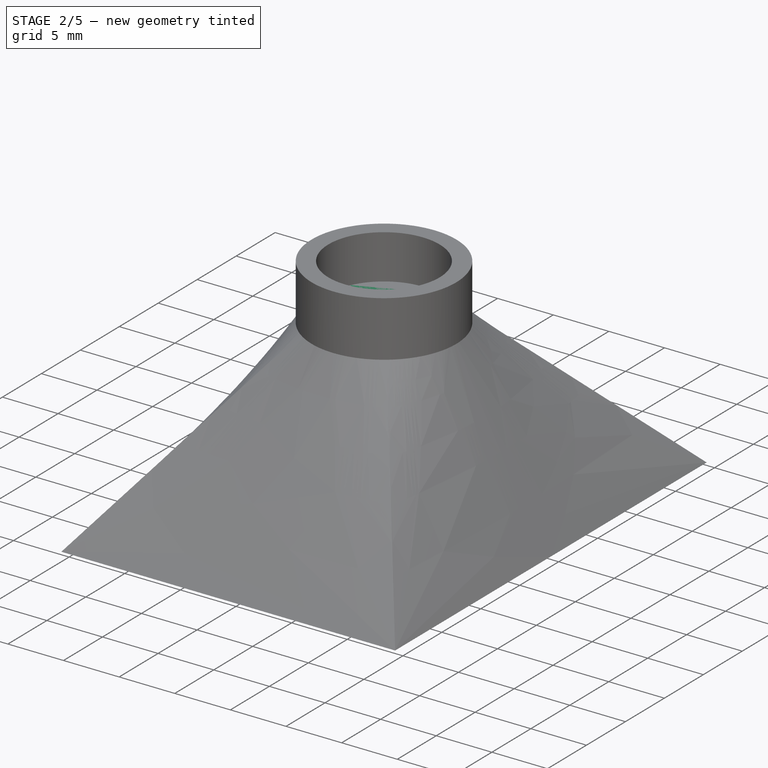
[diagram: stage 2 of 5 — iso view after this stage's code; geometry added in this stage tinted green]
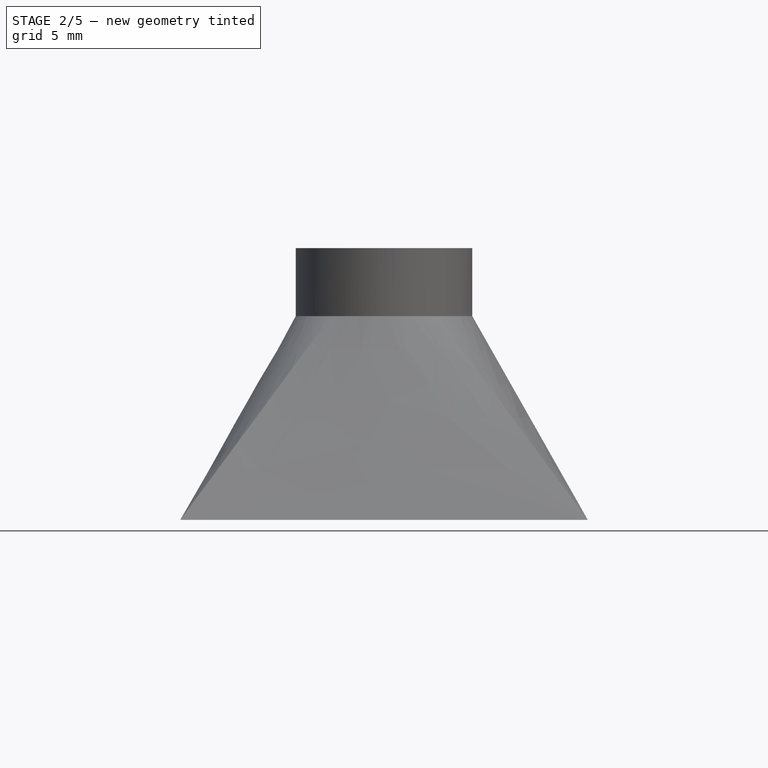
[diagram: stage 2 of 5 — front view after this stage's code; geometry added in this stage tinted green]
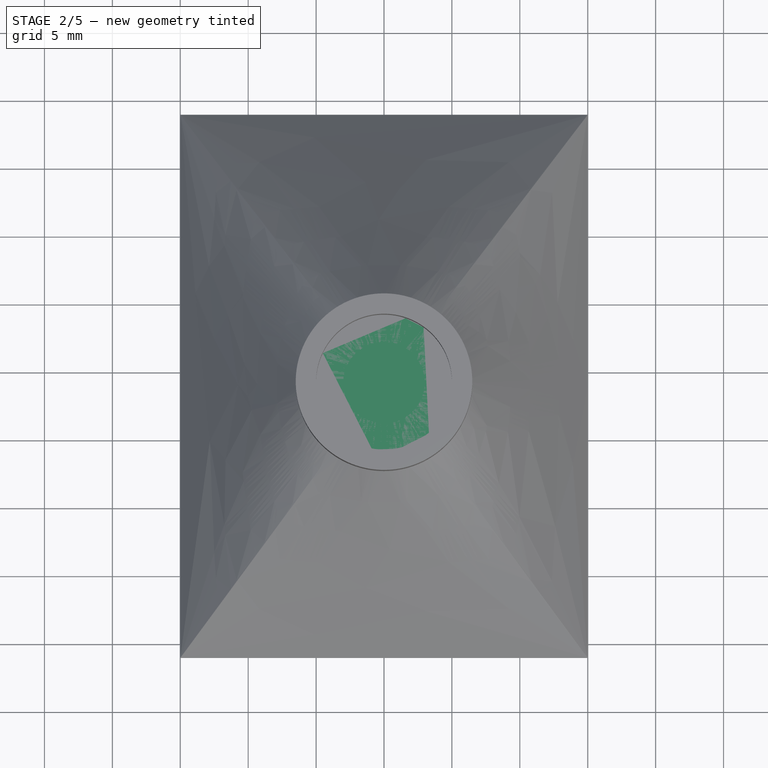
[diagram: stage 2 of 5 — top view after this stage's code; geometry added in this stage tinted green]
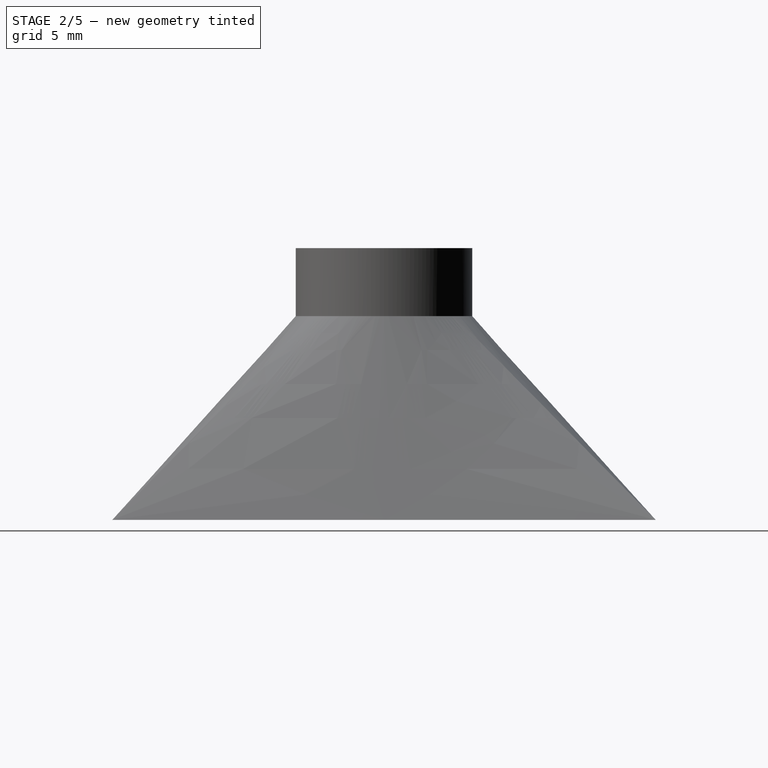
[diagram: stage 2 of 5 — right view after this stage's code; geometry added in this stage tinted green]
FEATURE [PartDesign::Body] Body007  label="Reflector007"
  Group = -> [ShapeBinder006,Sketch037,Sketch036,AdditiveLoft006,Sketch040,Pad013,Sketch039,Sketch041,Pocket006,Hole006]
  Origin = -> Origin007
  Placement = pos=(60,-80,0) rot=(0,0,1;0rad)
  Tip = -> Hole006
FEATURE [Sketcher::SketchObject] Sketch044
  FullyConstrained = true
  MapMode = 5
  Support = -> [XY_Plane015]
  expr: Constraints[18] = 5 + 2
  sketch-geometry (52):
    g0: LineSegment StartX=-51 StartY=85 StartZ=0 EndX=51 EndY=85 EndZ=0
    g1: LineSegment StartX=51 StartY=85 StartZ=0 EndX=51 EndY=-85 EndZ=0
    g2: LineSegment StartX=51 StartY=-85 StartZ=0 EndX=-51 EndY=-85 EndZ=0
    g3: LineSegment StartX=-51 StartY=-85 StartZ=0 EndX=-51 EndY=85 EndZ=0
    g4: LineSegment StartX=-44 StartY=78 StartZ=0 EndX=-16 EndY=78 EndZ=0
    g5: LineSegment StartX=-16 StartY=78 StartZ=0 EndX=-16 EndY=40 EndZ=0
    g6: LineSegment StartX=-16 StartY=40 StartZ=0 EndX=-44 EndY=40 EndZ=0
    g7: LineSegment StartX=-44 StartY=40 StartZ=0 EndX=-44 EndY=78 EndZ=0
    g8: LineSegment StartX=-44 StartY=38 StartZ=0 EndX=-16 EndY=38 EndZ=0
    g9: LineSegment StartX=-16 StartY=38 StartZ=0 EndX=-16 EndY=-9.27471e-11 EndZ=0
    g10: LineSegment StartX=-16 StartY=-9.27471e-11 StartZ=0 EndX=-44 EndY=-9.27471e-11 EndZ=0
    g11: LineSegment StartX=-44 StartY=-9.27471e-11 StartZ=0 EndX=-44 EndY=38 EndZ=0
    g12: LineSegment StartX=-44 StartY=-2 StartZ=0 EndX=-16 EndY=-2 EndZ=0
    g13: LineSegment StartX=-16 StartY=-2 StartZ=0 EndX=-16 EndY=-40 EndZ=0
    g14: LineSegment StartX=-16 StartY=-40 StartZ=0 EndX=-44 EndY=-40 EndZ=0
    g15: LineSegment StartX=-44 StartY=-40 StartZ=0 EndX=-44 EndY=-2 EndZ=0
    g16: LineSegment StartX=-44 StartY=-42 StartZ=0 EndX=-16 EndY=-42 EndZ=0
    g17: LineSegment StartX=-16 StartY=-42 StartZ=0 EndX=-16 EndY=-80 EndZ=0
    g18: LineSegment StartX=-16 StartY=-80 StartZ=0 EndX=-44 EndY=-80 EndZ=0
    g19: LineSegment StartX=-44 StartY=-80 StartZ=0 EndX=-44 EndY=-42 EndZ=0
    g20: LineSegment StartX=-14 StartY=78 StartZ=0 EndX=14 EndY=78 EndZ=0
    g21: LineSegment StartX=14 StartY=78 StartZ=0 EndX=14 EndY=40 EndZ=0
    g22: LineSegment StartX=14 StartY=40 StartZ=0 EndX=-14 EndY=40 EndZ=0
    g23: LineSegment StartX=-14 StartY=40 StartZ=0 EndX=-14 EndY=78 EndZ=0
    g24: LineSegment StartX=-14 StartY=38 StartZ=0 EndX=14 EndY=38 EndZ=0
    g25: LineSegment StartX=14 StartY=38 StartZ=0 EndX=14 EndY=-2.7849e-10 EndZ=0
    g26: LineSegment StartX=14 StartY=-2.7849e-10 StartZ=0 EndX=-14 EndY=-2.7849e-10 EndZ=0
    g27: LineSegment StartX=-14 StartY=-2.7849e-10 StartZ=0 EndX=-14 EndY=38 EndZ=0
    g28: LineSegment StartX=-14 StartY=-2 StartZ=0 EndX=14 EndY=-2 EndZ=0
    g29: LineSegment StartX=14 StartY=-2 StartZ=0 EndX=14 EndY=-40 EndZ=0
    g30: LineSegment StartX=14 StartY=-40 StartZ=0 EndX=-14 EndY=-40 EndZ=0
    g31: LineSegment StartX=-14 StartY=-40 StartZ=0 EndX=-14 EndY=-2 EndZ=0
    g32: LineSegment StartX=-14 StartY=-42 StartZ=0 EndX=14 EndY=-42 EndZ=0
    g33: LineSegment StartX=14 StartY=-42 StartZ=0 EndX=14 EndY=-80 EndZ=0
    g34: LineSegment StartX=14 StartY=-80 StartZ=0 EndX=-14 EndY=-80 EndZ=0
    g35: LineSegment StartX=-14 StartY=-80 StartZ=0 EndX=-14 EndY=-42 EndZ=0
    g36: LineSegment StartX=16 StartY=78 StartZ=0 EndX=44 EndY=78 EndZ=0
    g37: LineSegment StartX=44 StartY=78 StartZ=0 EndX=44 EndY=40 EndZ=0
    g38: LineSegment StartX=44 StartY=40 StartZ=0 EndX=16 EndY=40 EndZ=0
    g39: LineSegment StartX=16 StartY=40 StartZ=0 EndX=16 EndY=78 EndZ=0
    g40: LineSegment StartX=16 StartY=38 StartZ=0 EndX=44 EndY=38 EndZ=0
    g41: LineSegment StartX=44 StartY=38 StartZ=0 EndX=44 EndY=9.30314e-11 EndZ=0
    g42: LineSegment StartX=44 StartY=9.30314e-11 StartZ=0 EndX=16 EndY=9.30314e-11 EndZ=0
    g43: LineSegment StartX=16 StartY=9.30314e-11 StartZ=0 EndX=16 EndY=38 EndZ=0
    g44: LineSegment StartX=16 StartY=-2 StartZ=0 EndX=44 EndY=-2 EndZ=0
    g45: LineSegment StartX=44 StartY=-2 StartZ=0 EndX=44 EndY=-40 EndZ=0
    g46: LineSegment StartX=44 StartY=-40 StartZ=0 EndX=16 EndY=-40 EndZ=0
    g47: LineSegment StartX=16 StartY=-40 StartZ=0 EndX=16 EndY=-2 EndZ=0
    g48: LineSegment StartX=16 StartY=-42 StartZ=0 EndX=44 EndY=-42 EndZ=0
    g49: LineSegment StartX=44 StartY=-42 StartZ=0 EndX=44 EndY=-80 EndZ=0
    g50: LineSegment StartX=44 StartY=-80 StartZ=0 EndX=16 EndY=-80 EndZ=0
    g51: LineSegment StartX=16 StartY=-80 StartZ=0 EndX=16 EndY=-42 EndZ=0
  constraints (154):
    c: Coincident(g0,g1)
    c: Coincident(g1,g2)
    c: Coincident(g2,g3)
    c: Coincident(g3,g0)
    c: Horizontal(g2)
    c: Vertical(g1)
    c: Symmetric(g0,g2,g-1)
    c: Symmetric(g0,g0,g-2)
    c: Distance(g2) = 102
    c: Distance(g1) = 170
    c: Coincident(g4,g5)
    c: Coincident(g5,g6)
    c: Coincident(g6,g7)
    c: Coincident(g7,g4)
    c: Horizontal(g4)
    c: Horizontal(g6)
    c: Vertical(g5)
    c: Vertical(g7)
    c: DistanceX(g0,g4) = 7
    c: Distance(g6) = 28
    c: Distance(g5) = 38
    c: DistanceY(g4,g0) = 7
    c: Coincident(g8,g9)
    c: Coincident(g9,g10)
    c: Coincident(g10,g11)
    c: Coincident(g11,g8)
    c: Horizontal(g8)
    c: Horizontal(g10)
    c: Vertical(g9)
    c: Vertical(g11)
    c: Equal(g6,g10) = 28
    c: Equal(g5,g9) = 38
    c: DistanceY(g8,g6) = 2
    c: DistanceX(g0,g8) = 7
    c: Coincident(g12,g13)
    c: Coincident(g13,g14)
    c: Coincident(g14,g15)
    c: Coincident(g15,g12)
    c: Horizontal(g12)
    c: Horizontal(g14)
    c: Vertical(g13)
    c: Vertical(g15)
    c: Equal(g6,g14) = 28
    c: Equal(g5,g13) = 38
    c: DistanceY(g12,g10) = 2
    c: Coincident(g16,g17)
    c: Coincident(g17,g18)
    c: Coincident(g18,g19)
    c: Coincident(g19,g16)
    c: Horizontal(g16)
    c: Horizontal(g18)
    c: Vertical(g17)
    c: Vertical(g19)
    c: Equal(g6,g18) = 28
    c: Equal(g5,g17) = 38
    c: Coincident(g20,g21)
    c: Coincident(g21,g22)
    c: Coincident(g22,g23)
    c: Coincident(g23,g20)
    c: Horizontal(g20)
    c: Horizontal(g22)
    c: Vertical(g21)
    c: Vertical(g23)
    c: Equal(g6,g22) = 28
    c: Equal(g5,g21) = 38
    c: Coincident(g24,g25)
    c: Coincident(g25,g26)
    c: Coincident(g26,g27)
    c: Coincident(g27,g24)
    c: Horizontal(g24)
    c: Horizontal(g26)
    c: Vertical(g25)
    c: Vertical(g27)
    c: Equal(g22,g26) = 28
    c: Equal(g21,g25) = 38
    c: DistanceY(g24,g22) = 2
    c: Coincident(g28,g29)
    c: Coincident(g29,g30)
    c: Coincident(g30,g31)
    c: Coincident(g31,g28)
    c: Horizontal(g28)
    c: Horizontal(g30)
    c: Vertical(g29)
    c: Vertical(g31)
    c: Equal(g22,g30) = 28
    c: Equal(g21,g29) = 38
    c: DistanceY(g28,g26) = 2
    c: Coincident(g32,g33)
    c: Coincident(g33,g34)
    c: Coincident(g34,g35)
    c: Coincident(g35,g32)
    c: Horizontal(g32)
    c: Horizontal(g34)
    c: Vertical(g33)
    c: Vertical(g35)
    c: Equal(g22,g34) = 28
    c: Equal(g21,g33) = 38
    c: DistanceY(g20,g0) = 7
    c: DistanceY(g16,g14) = 2
    c: DistanceX(g4,g20) = 2
    c: DistanceX(g0,g12) = 7
    c: DistanceX(g0,g16) = 7
    c: DistanceX(g8,g24) = 2
    c: DistanceX(g12,g28) = 2
    c: DistanceY(g32,g30) = 2
    c: DistanceX(g16,g32) = 2
    c: Coincident(g36,g37)
    c: Coincident(g37,g38)
    c: Coincident(g38,g39)
    c: Coincident(g39,g36)
    c: Horizontal(g36)
    c: Horizontal(g38)
    c: Vertical(g37)
    c: Vertical(g39)
    c: Coincident(g40,g41)
    c: Coincident(g41,g42)
    c: Coincident(g42,g43)
    c: Coincident(g43,g40)
    c: Horizontal(g40)
    c: Horizontal(g42)
    c: Vertical(g41)
    c: Vertical(g43)
    c: Equal(g38,g42) = 28
    c: DistanceY(g40,g38) = 2
    c: Coincident(g44,g45)
    c: Coincident(g45,g46)
    c: Coincident(g46,g47)
    c: Coincident(g47,g44)
    c: Horizontal(g44)
    c: Horizontal(g46)
    c: Vertical(g45)
    c: Vertical(g47)
    c: Equal(g38,g46) = 28
    c: DistanceY(g44,g42) = 2
    c: Coincident(g48,g49)
    c: Coincident(g49,g50)
    c: Coincident(g50,g51)
    c: Coincident(g51,g48)
    c: Horizontal(g48)
    c: Horizontal(g50)
    c: Vertical(g49)
    c: Vertical(g51)
    c: Equal(g38,g50) = 28
    c: Equal(g37,g49) = 38
    c: DistanceY(g48,g46) = 2
    c: DistanceY(g36,g0) = 7
    c: Equal(g37,g41)
    c: Equal(g41,g45)
    c: Equal(g49,g21)
    c: DistanceX(g20,g36) = 2
    c: DistanceX(g24,g40) = 2
    c: DistanceX(g28,g44) = 2
    c: DistanceX(g32,g48) = 2
    c: Distance(g50) = 28
FEATURE [PartDesign::Pad] Pad014
  Direction = (0,0,1)
  Length = 0.3
  Length2 = 100
  Profile = -> Sketch044
  ReferenceAxis = -> Sketch044 [N_Axis]
  Type = 0
FEATURE [PartDesign::ShapeBinder] ShapeBinder007
  Placement = pos=(0,0,0.3) rot=(0,0,1;0rad)
  Support = -> [Pad014]
  TraceSupport = false
FEATURE [Sketcher::SketchObject] Sketch042
  ExternalGeometry = -> [ShapeBinder007]
  FullyConstrained = true
  MapMode = 5
  Placement = pos=(0,0,0.3) rot=(0,0,1;0rad)
  Support = -> [ShapeBinder007]
  sketch-geometry (8):
    g0: LineSegment StartX=-45 StartY=79 StartZ=0 EndX=-15 EndY=79 EndZ=0
    g1: LineSegment StartX=-15 StartY=79 StartZ=0 EndX=-15 EndY=39 EndZ=0
    g2: LineSegment StartX=-15 StartY=39 StartZ=0 EndX=-45 EndY=39 EndZ=0
    g3: LineSegment StartX=-45 StartY=39 StartZ=0 EndX=-45 EndY=79 EndZ=0
    g4: LineSegment StartX=-44 StartY=78 StartZ=0 EndX=-16 EndY=78 EndZ=0
    g5: LineSegment StartX=-16 StartY=78 StartZ=0 EndX=-16 EndY=40 EndZ=0
    g6: LineSegment StartX=-16 StartY=40 StartZ=0 EndX=-44 EndY=40 EndZ=0
    g7: LineSegment StartX=-44 StartY=40 StartZ=0 EndX=-44 EndY=78 EndZ=0
  constraints (24):
    c: Coincident(g0,g1)
    c: Coincident(g1,g2)
    c: Coincident(g2,g3)
    c: Coincident(g3,g0)
    c: Horizontal(g0)
    c: Horizontal(g2)
    c: Vertical(g1)
    c: Vertical(g3)
    c: Coincident(g4,g5)
    c: Coincident(g5,g6)
    c: Coincident(g6,g7)
    c: Coincident(g7,g4)
    c: Horizontal(g4)
    c: Horizontal(g6)
    c: Vertical(g5)
    c: Vertical(g7)
    c: DistanceY(g4,g0) = 1
    c: DistanceX(g0,g4) = 1
    c: DistanceX(g4,g0) = 1
    c: DistanceY(g1,g5) = 1
    c: DistanceY(g0,g-5) = -1
    c: DistanceX(g-5,g0) = -1
    c: DistanceY(g-6,g2) = -1
    c: DistanceX(g0,g-4) = -1
FEATURE [Sketcher::SketchObject] Sketch043
  AttachmentOffset = pos=(0,0,15) rot=(0,0,1;0rad)
  ExternalGeometry = -> [ShapeBinder007]
  FullyConstrained = true
  MapMode = 5
  Placement = pos=(0,0,15.3) rot=(0,0,1;0rad)
  Support = -> [ShapeBinder007]
  sketch-geometry (4):
    g0: Circle CenterX=-30 CenterY=59 CenterZ=0 NormalX=0 NormalY=0 NormalZ=1 AngleXU=0 Radius=6.5
    g1: LineSegment StartX=-30 StartY=78 StartZ=0 EndX=-30 EndY=40 EndZ=0
    g2: LineSegment StartX=-44 StartY=59 StartZ=0 EndX=-16 EndY=59 EndZ=0
    g3: Circle CenterX=-30 CenterY=59 CenterZ=0 NormalX=0 NormalY=0 NormalZ=1 AngleXU=0 Radius=6
  constraints (11):
    c: PointOnObject(g1,g-4)
    c: PointOnObject(g2,g-5)
    c: PointOnObject(g2,g-3)
    c: Symmetric(g-5,g-3,g1)
    c: Symmetric(g-5,g-5,g2)
    c: DistanceY(g2,g0) = 0
    c: DistanceX(g1,g0) = 0
    c: Diameter(g0) = 13
    c: Equal(g1,g-3)
    c: Coincident(g3,g0)
    c: Diameter(g3) = 12
FEATURE [PartDesign::AdditiveLoft] AdditiveLoft007
  Closed = false
  Placement = pos=(0,0,0.3) rot=(0,0,1;0rad)
  Profile = -> Sketch042
  Ruled = false
  Sections = -> [Sketch043]
FEATURE [Sketcher::SketchObject] Sketch046
  ExternalGeometry = -> [Sketch043]
  FullyConstrained = true
  MapMode = 5
  Placement = pos=(0,0,15.3) rot=(0,0,1;0rad)
  Support = -> [AdditiveLoft007]
  sketch-geometry (1):
    g0: Circle CenterX=-30 CenterY=59 CenterZ=0 NormalX=0 NormalY=0 NormalZ=1 AngleXU=0 Radius=6.5
  constraints (2):
    c: Coincident(g0,g-3)
    c: Tangent(g0,g-3)
FEATURE [PartDesign::Pad] Pad015
  BaseFeature = -> AdditiveLoft007
  Direction = (0,0,1)
  Length = 5
  Length2 = 100
  Placement = pos=(0,0,0.3) rot=(0,0,1;0rad)
  Profile = -> Sketch046
  ReferenceAxis = -> Sketch046 [N_Axis]
  Type = 0
FEATURE [Sketcher::SketchObject] Sketch045
  FullyConstrained = true
  MapMode = 5
  Placement = pos=(0,0,20.3) rot=(0,0,1;0rad)
  Support = -> [Pad015]
FEATURE [Sketcher::SketchObject] Sketch047
  ExternalGeometry = -> [Pad015]
  FullyConstrained = true
  MapMode = 5
  Placement = pos=(0,0,20.3) rot=(0,0,1;0rad)
  Support = -> [Pad015]
  sketch-geometry (1):
    g0: Circle CenterX=-30 CenterY=59 CenterZ=0 NormalX=0 NormalY=0 NormalZ=1 AngleXU=0 Radius=5
  constraints (2):
    c: Coincident(g0,g-3)
    c: Diameter(g0) = 10
FEATURE [PartDesign::Pocket] Pocket007
  BaseFeature = -> Pad015
  Direction = (0,0,-1)
  Length = 4
  Length2 = 100
  Placement = pos=(0,0,0.3) rot=(0,0,1;0rad)
  Profile = -> Sketch047
  ReferenceAxis = -> Sketch047 [N_Axis]
  Type = 0
FEATURE [PartDesign::Body] Body008  label="Reflector008"
  Group = -> [ShapeBinder007,Sketch043,Sketch042,AdditiveLoft007,Sketch046,Pad015,Sketch045,Sketch047,Pocket007,Hole007]
  Origin = -> Origin008
  Placement = pos=(30,-80,0) rot=(0,0,1;0rad)
  Tip = -> Hole007
FEATURE [Sketcher::SketchObject] Sketch050
  FullyConstrained = true
  MapMode = 5
  Support = -> [XY_Plane017]
  expr: Constraints[18] = 5 + 2
  sketch-geometry (52):
    g0: LineSegment StartX=-51 StartY=85 StartZ=0 EndX=51 EndY=85 EndZ=0
    g1: LineSegment StartX=51 StartY=85 StartZ=0 EndX=51 EndY=-85 EndZ=0
    g2: LineSegment StartX=51 StartY=-85 StartZ=0 EndX=-51 EndY=-85 EndZ=0
    g3: LineSegment StartX=-51 StartY=-85 StartZ=0 EndX=-51 EndY=85 EndZ=0
    g4: LineSegment StartX=-44 StartY=78 StartZ=0 EndX=-16 EndY=78 EndZ=0
    g5: LineSegment StartX=-16 StartY=78 StartZ=0 EndX=-16 EndY=40 EndZ=0
    g6: LineSegment StartX=-16 StartY=40 StartZ=0 EndX=-44 EndY=40 EndZ=0
    g7: LineSegment StartX=-44 StartY=40 StartZ=0 EndX=-44 EndY=78 EndZ=0
    g8: LineSegment StartX=-44 StartY=38 StartZ=0 EndX=-16 EndY=38 EndZ=0
    g9: LineSegment StartX=-16 StartY=38 StartZ=0 EndX=-16 EndY=-9.27471e-11 EndZ=0
    g10: LineSegment StartX=-16 StartY=-9.27471e-11 StartZ=0 EndX=-44 EndY=-9.27471e-11 EndZ=0
    g11: LineSegment StartX=-44 StartY=-9.27471e-11 StartZ=0 EndX=-44 EndY=38 EndZ=0
    g12: LineSegment StartX=-44 StartY=-2 StartZ=0 EndX=-16 EndY=-2 EndZ=0
    g13: LineSegment StartX=-16 StartY=-2 StartZ=0 EndX=-16 EndY=-40 EndZ=0
    g14: LineSegment StartX=-16 StartY=-40 StartZ=0 EndX=-44 EndY=-40 EndZ=0
    g15: LineSegment StartX=-44 StartY=-40 StartZ=0 EndX=-44 EndY=-2 EndZ=0
    g16: LineSegment StartX=-44 StartY=-42 StartZ=0 EndX=-16 EndY=-42 EndZ=0
    g17: LineSegment StartX=-16 StartY=-42 StartZ=0 EndX=-16 EndY=-80 EndZ=0
    g18: LineSegment StartX=-16 StartY=-80 StartZ=0 EndX=-44 EndY=-80 EndZ=0
    g19: LineSegment StartX=-44 StartY=-80 StartZ=0 EndX=-44 EndY=-42 EndZ=0
    g20: LineSegment StartX=-14 StartY=78 StartZ=0 EndX=14 EndY=78 EndZ=0
    g21: LineSegment StartX=14 StartY=78 StartZ=0 EndX=14 EndY=40 EndZ=0
    g22: LineSegment StartX=14 StartY=40 StartZ=0 EndX=-14 EndY=40 EndZ=0
    g23: LineSegment StartX=-14 StartY=40 StartZ=0 EndX=-14 EndY=78 EndZ=0
    g24: LineSegment StartX=-14 StartY=38 StartZ=0 EndX=14 EndY=38 EndZ=0
    g25: LineSegment StartX=14 StartY=38 StartZ=0 EndX=14 EndY=-2.7849e-10 EndZ=0
    g26: LineSegment StartX=14 StartY=-2.7849e-10 StartZ=0 EndX=-14 EndY=-2.7849e-10 EndZ=0
    g27: LineSegment StartX=-14 StartY=-2.7849e-10 StartZ=0 EndX=-14 EndY=38 EndZ=0
    g28: LineSegment StartX=-14 StartY=-2 StartZ=0 EndX=14 EndY=-2 EndZ=0
    g29: LineSegment StartX=14 StartY=-2 StartZ=0 EndX=14 EndY=-40 EndZ=0
    g30: LineSegment StartX=14 StartY=-40 StartZ=0 EndX=-14 EndY=-40 EndZ=0
    g31: LineSegment StartX=-14 StartY=-40 StartZ=0 EndX=-14 EndY=-2 EndZ=0
    g32: LineSegment StartX=-14 StartY=-42 StartZ=0 EndX=14 EndY=-42 EndZ=0
    g33: LineSegment StartX=14 StartY=-42 StartZ=0 EndX=14 EndY=-80 EndZ=0
    g34: LineSegment StartX=14 StartY=-80 StartZ=0 EndX=-14 EndY=-80 EndZ=0
    g35: LineSegment StartX=-14 StartY=-80 StartZ=0 EndX=-14 EndY=-42 EndZ=0
    g36: LineSegment StartX=16 StartY=78 StartZ=0 EndX=44 EndY=78 EndZ=0
    g37: LineSegment StartX=44 StartY=78 StartZ=0 EndX=44 EndY=40 EndZ=0
    g38: LineSegment StartX=44 StartY=40 StartZ=0 EndX=16 EndY=40 EndZ=0
    g39: LineSegment StartX=16 StartY=40 StartZ=0 EndX=16 EndY=78 EndZ=0
    g40: LineSegment StartX=16 StartY=38 StartZ=0 EndX=44 EndY=38 EndZ=0
    g41: LineSegment StartX=44 StartY=38 StartZ=0 EndX=44 EndY=9.30314e-11 EndZ=0
    g42: LineSegment StartX=44 StartY=9.30314e-11 StartZ=0 EndX=16 EndY=9.30314e-11 EndZ=0
    g43: LineSegment StartX=16 StartY=9.30314e-11 StartZ=0 EndX=16 EndY=38 EndZ=0
    g44: LineSegment StartX=16 StartY=-2 StartZ=0 EndX=44 EndY=-2 EndZ=0
    g45: LineSegment StartX=44 StartY=-2 StartZ=0 EndX=44 EndY=-40 EndZ=0
    g46: LineSegment StartX=44 StartY=-40 StartZ=0 EndX=16 EndY=-40 EndZ=0
    g47: LineSegment StartX=16 StartY=-40 StartZ=0 EndX=16 EndY=-2 EndZ=0
    g48: LineSegment StartX=16 StartY=-42 StartZ=0 EndX=44 EndY=-42 EndZ=0
    g49: LineSegment StartX=44 StartY=-42 StartZ=0 EndX=44 EndY=-80 EndZ=0
    g50: LineSegment StartX=44 StartY=-80 StartZ=0 EndX=16 EndY=-80 EndZ=0
    g51: LineSegment StartX=16 StartY=-80 StartZ=0 EndX=16 EndY=-42 EndZ=0
  constraints (154):
    c: Coincident(g0,g1)
    c: Coincident(g1,g2)
    c: Coincident(g2,g3)
    c: Coincident(g3,g0)
    c: Horizontal(g2)
    c: Vertical(g1)
    c: Symmetric(g0,g2,g-1)
    c: Symmetric(g0,g0,g-2)
    c: Distance(g2) = 102
    c: Distance(g1) = 170
    c: Coincident(g4,g5)
    c: Coincident(g5,g6)
    c: Coincident(g6,g7)
    c: Coincident(g7,g4)
    c: Horizontal(g4)
    c: Horizontal(g6)
    c: Vertical(g5)
    c: Vertical(g7)
    c: DistanceX(g0,g4) = 7
    c: Distance(g6) = 28
    c: Distance(g5) = 38
    c: DistanceY(g4,g0) = 7
    c: Coincident(g8,g9)
    c: Coincident(g9,g10)
    c: Coincident(g10,g11)
    c: Coincident(g11,g8)
    c: Horizontal(g8)
    c: Horizontal(g10)
    c: Vertical(g9)
    c: Vertical(g11)
    c: Equal(g6,g10) = 28
    c: Equal(g5,g9) = 38
    c: DistanceY(g8,g6) = 2
    c: DistanceX(g0,g8) = 7
    c: Coincident(g12,g13)
    c: Coincident(g13,g14)
    c: Coincident(g14,g15)
    c: Coincident(g15,g12)
    c: Horizontal(g12)
    c: Horizontal(g14)
    c: Vertical(g13)
    c: Vertical(g15)
    c: Equal(g6,g14) = 28
    c: Equal(g5,g13) = 38
    c: DistanceY(g12,g10) = 2
    c: Coincident(g16,g17)
    c: Coincident(g17,g18)
    c: Coincident(g18,g19)
    c: Coincident(g19,g16)
    c: Horizontal(g16)
    c: Horizontal(g18)
    c: Vertical(g17)
    c: Vertical(g19)
    c: Equal(g6,g18) = 28
    c: Equal(g5,g17) = 38
    c: Coincident(g20,g21)
    c: Coincident(g21,g22)
    c: Coincident(g22,g23)
    c: Coincident(g23,g20)
    c: Horizontal(g20)
    c: Horizontal(g22)
    c: Vertical(g21)
    c: Vertical(g23)
    c: Equal(g6,g22) = 28
    c: Equal(g5,g21) = 38
    c: Coincident(g24,g25)
    c: Coincident(g25,g26)
    c: Coincident(g26,g27)
    c: Coincident(g27,g24)
    c: Horizontal(g24)
    c: Horizontal(g26)
    c: Vertical(g25)
    c: Vertical(g27)
    c: Equal(g22,g26) = 28
    c: Equal(g21,g25) = 38
    c: DistanceY(g24,g22) = 2
    c: Coincident(g28,g29)
    c: Coincident(g29,g30)
    c: Coincident(g30,g31)
    c: Coincident(g31,g28)
    c: Horizontal(g28)
    c: Horizontal(g30)
    c: Vertical(g29)
    c: Vertical(g31)
    c: Equal(g22,g30) = 28
    c: Equal(g21,g29) = 38
    c: DistanceY(g28,g26) = 2
    c: Coincident(g32,g33)
    c: Coincident(g33,g34)
    c: Coincident(g34,g35)
    c: Coincident(g35,g32)
    c: Horizontal(g32)
    c: Horizontal(g34)
    c: Vertical(g33)
    c: Vertical(g35)
    c: Equal(g22,g34) = 28
    c: Equal(g21,g33) = 38
    c: DistanceY(g20,g0) = 7
    c: DistanceY(g16,g14) = 2
    c: DistanceX(g4,g20) = 2
    c: DistanceX(g0,g12) = 7
    c: DistanceX(g0,g16) = 7
    c: DistanceX(g8,g24) = 2
    c: DistanceX(g12,g28) = 2
    c: DistanceY(g32,g30) = 2
    c: DistanceX(g16,g32) = 2
    c: Coincident(g36,g37)
    c: Coincident(g37,g38)
    c: Coincident(g38,g39)
    c: Coincident(g39,g36)
    c: Horizontal(g36)
    c: Horizontal(g38)
    c: Vertical(g37)
    c: Vertical(g39)
    c: Coincident(g40,g41)
    c: Coincident(g41,g42)
    c: Coincident(g42,g43)
    c: Coincident(g43,g40)
    c: Horizontal(g40)
    c: Horizontal(g42)
    c: Vertical(g41)
    c: Vertical(g43)
    c: Equal(g38,g42) = 28
    c: DistanceY(g40,g38) = 2
    c: Coincident(g44,g45)
    c: Coincident(g45,g46)
    c: Coincident(g46,g47)
    c: Coincident(g47,g44)
    c: Horizontal(g44)
    c: Horizontal(g46)
    c: Vertical(g45)
    c: Vertical(g47)
    c: Equal(g38,g46) = 28
    c: DistanceY(g44,g42) = 2
    c: Coincident(g48,g49)
    c: Coincident(g49,g50)
    c: Coincident(g50,g51)
    c: Coincident(g51,g48)
    c: Horizontal(g48)
    c: Horizontal(g50)
    c: Vertical(g49)
    c: Vertical(g51)
    c: Equal(g38,g50) = 28
    c: Equal(g37,g49) = 38
    c: DistanceY(g48,g46) = 2
    c: DistanceY(g36,g0) = 7
    c: Equal(g37,g41)
    c: Equal(g41,g45)
    c: Equal(g49,g21)
    c: DistanceX(g20,g36) = 2
    c: DistanceX(g24,g40) = 2
    c: DistanceX(g28,g44) = 2
    c: DistanceX(g32,g48) = 2
    c: Distance(g50) = 28
FEATURE [PartDesign::Pad] Pad016
  Direction = (0,0,1)
  Length = 0.3
  Length2 = 100
  Profile = -> Sketch050
  ReferenceAxis = -> Sketch050 [N_Axis]
  Type = 0
FEATURE [PartDesign::ShapeBinder] ShapeBinder008
  Placement = pos=(0,0,0.3) rot=(0,0,1;0rad)
  Support = -> [Pad016]
  TraceSupport = false
FEATURE [Sketcher::SketchObject] Sketch048
  ExternalGeometry = -> [ShapeBinder008]
  FullyConstrained = true
  MapMode = 5
  Placement = pos=(0,0,0.3) rot=(0,0,1;0rad)
  Support = -> [ShapeBinder008]
  sketch-geometry (8):
    g0: LineSegment StartX=-45 StartY=79 StartZ=0 EndX=-15 EndY=79 EndZ=0
    g1: LineSegment StartX=-15 StartY=79 StartZ=0 EndX=-15 EndY=39 EndZ=0
    g2: LineSegment StartX=-15 StartY=39 StartZ=0 EndX=-45 EndY=39 EndZ=0
    g3: LineSegment StartX=-45 StartY=39 StartZ=0 EndX=-45 EndY=79 EndZ=0
    g4: LineSegment StartX=-44 StartY=78 StartZ=0 EndX=-16 EndY=78 EndZ=0
    g5: LineSegment StartX=-16 StartY=78 StartZ=0 EndX=-16 EndY=40 EndZ=0
    g6: LineSegment StartX=-16 StartY=40 StartZ=0 EndX=-44 EndY=40 EndZ=0
    g7: LineSegment StartX=-44 StartY=40 StartZ=0 EndX=-44 EndY=78 EndZ=0
  constraints (24):
    c: Coincident(g0,g1)
    c: Coincident(g1,g2)
    c: Coincident(g2,g3)
    c: Coincident(g3,g0)
    c: Horizontal(g0)
    c: Horizontal(g2)
    c: Vertical(g1)
    c: Vertical(g3)
    c: Coincident(g4,g5)
    c: Coincident(g5,g6)
    c: Coincident(g6,g7)
    c: Coincident(g7,g4)
    c: Horizontal(g4)
    c: Horizontal(g6)
    c: Vertical(g5)
    c: Vertical(g7)
    c: DistanceY(g4,g0) = 1
    c: DistanceX(g0,g4) = 1
    c: DistanceX(g4,g0) = 1
    c: DistanceY(g1,g5) = 1
    c: DistanceY(g0,g-5) = -1
    c: DistanceX(g-5,g0) = -1
    c: DistanceX(g0,g-4) = -1
    c: DistanceY(g-6,g2) = -1
FEATURE [Sketcher::SketchObject] Sketch049
  AttachmentOffset = pos=(0,0,15) rot=(0,0,1;0rad)
  ExternalGeometry = -> [ShapeBinder008]
  FullyConstrained = true
  MapMode = 5
  Placement = pos=(0,0,15.3) rot=(0,0,1;0rad)
  Support = -> [ShapeBinder008]
  sketch-geometry (4):
    g0: Circle CenterX=-30 CenterY=59 CenterZ=0 NormalX=0 NormalY=0 NormalZ=1 AngleXU=0 Radius=6.5
    g1: LineSegment StartX=-30 StartY=78 StartZ=0 EndX=-30 EndY=40 EndZ=0
    g2: LineSegment StartX=-44 StartY=59 StartZ=0 EndX=-16 EndY=59 EndZ=0
    g3: Circle CenterX=-30 CenterY=59 CenterZ=0 NormalX=0 NormalY=0 NormalZ=1 AngleXU=0 Radius=6
  constraints (11):
    c: PointOnObject(g1,g-4)
    c: PointOnObject(g2,g-5)
    c: PointOnObject(g2,g-3)
    c: Symmetric(g-5,g-3,g1)
    c: Symmetric(g-5,g-5,g2)
    c: DistanceY(g2,g0) = 0
    c: DistanceX(g1,g0) = 0
    c: Diameter(g0) = 13
    c: Equal(g1,g-3)
    c: Coincident(g3,g0)
    c: Diameter(g3) = 12
FEATURE [PartDesign::AdditiveLoft] AdditiveLoft008
  Closed = false
  Placement = pos=(0,0,0.3) rot=(0,0,1;0rad)
  Profile = -> Sketch048
  Ruled = false
  Sections = -> [Sketch049]
FEATURE [Sketcher::SketchObject] Sketch052
  ExternalGeometry = -> [Sketch049]
  FullyConstrained = true
  MapMode = 5
  Placement = pos=(0,0,15.3) rot=(0,0,1;0rad)
  Support = -> [AdditiveLoft008]
  sketch-geometry (1):
    g0: Circle CenterX=-30 CenterY=59 CenterZ=0 NormalX=0 NormalY=0 NormalZ=1 AngleXU=0 Radius=6.5
  constraints (2):
    c: Coincident(g0,g-3)
    c: Tangent(g0,g-3)
FEATURE [PartDesign::Pad] Pad017
  BaseFeature = -> AdditiveLoft008
  Direction = (0,0,1)
  Length = 5
  Length2 = 100
  Placement = pos=(0,0,0.3) rot=(0,0,1;0rad)
  Profile = -> Sketch052
  ReferenceAxis = -> Sketch052 [N_Axis]
  Type = 0
FEATURE [Sketcher::SketchObject] Sketch051
  FullyConstrained = true
  MapMode = 5
  Placement = pos=(0,0,20.3) rot=(0,0,1;0rad)
  Support = -> [Pad017]
FEATURE [Sketcher::SketchObject] Sketch053
  ExternalGeometry = -> [Pad017]
  FullyConstrained = true
  MapMode = 5
  Placement = pos=(0,0,20.3) rot=(0,0,1;0rad)
  Support = -> [Pad017]
  sketch-geometry (1):
    g0: Circle CenterX=-30 CenterY=59 CenterZ=0 NormalX=0 NormalY=0 NormalZ=1 AngleXU=0 Radius=5
  constraints (2):
    c: Coincident(g0,g-3)
    c: Diameter(g0) = 10
FEATURE [PartDesign::Pocket] Pocket008
  BaseFeature = -> Pad017
  Direction = (0,0,-1)
  Length = 4
  Length2 = 100
  Placement = pos=(0,0,0.3) rot=(0,0,1;0rad)
  Profile = -> Sketch053
  ReferenceAxis = -> Sketch053 [N_Axis]
  Type = 0
FEATURE [PartDesign::Hole] Hole008
  BaseFeature = -> Pocket008
  CustomThreadClearance = 0
  Depth = 25
  DepthType = 0
  Diameter = 6
  DrillForDepth = false
  DrillPoint = 1
  DrillPointAngle = 118
  HoleCutCountersinkAngle = 90
  HoleCutCustomValues = false
  HoleCutDepth = 0
  HoleCutDiameter = 6.1
  HoleCutType = 0
  ModelThread = false
  Placement = pos=(0,0,0.3) rot=(0,0,1;0rad)
  Profile = -> Pocket008 [Face16]
  Tapered = false
  TaperedAngle = 90
  ThreadClass = 0
  ThreadDepth = 25
  ThreadDepthType = 0
  ThreadDirection = 0
  ThreadFit = 0
  ThreadSize = 0
  ThreadType = 0
  Threaded = false
  UseCustomThreadClearance = false
FEATURE [Sketcher::SketchObject] Sketch058
  ExternalGeometry = -> [Sketch055]
  FullyConstrained = true
  MapMode = 5
  Placement = pos=(0,0,15.3) rot=(0,0,1;0rad)
  Support = -> [AdditiveLoft009]
  sketch-geometry (1):
    g0: Circle CenterX=-30 CenterY=59 CenterZ=0 NormalX=0 NormalY=0 NormalZ=1 AngleXU=0 Radius=6.5
  constraints (2):
    c: Coincident(g0,g-3)
    c: Tangent(g0,g-3)
FEATURE [PartDesign::Pad] Pad019
  BaseFeature = -> AdditiveLoft009
  Direction = (0,0,1)
  Length = 5
  Length2 = 100
  Placement = pos=(0,0,0.3) rot=(0,0,1;0rad)
  Profile = -> Sketch058
  ReferenceAxis = -> Sketch058 [N_Axis]
  Type = 0
FEATURE [Sketcher::SketchObject] Sketch057
  FullyConstrained = true
  MapMode = 5
  Placement = pos=(0,0,20.3) rot=(0,0,1;0rad)
  Support = -> [Pad019]
FEATURE [Sketcher::SketchObject] Sketch059
  ExternalGeometry = -> [Pad019]
  FullyConstrained = true
  MapMode = 5
  Placement = pos=(0,0,20.3) rot=(0,0,1;0rad)
  Support = -> [Pad019]
  sketch-geometry (1):
    g0: Circle CenterX=-30 CenterY=59 CenterZ=0 NormalX=0 NormalY=0 NormalZ=1 AngleXU=0 Radius=5
  constraints (2):
    c: Coincident(g0,g-3)
    c: Diameter(g0) = 10
FEATURE [PartDesign::Pocket] Pocket009
  BaseFeature = -> Pad019
  Direction = (0,0,-1)
  Length = 4
  Length2 = 100
  Placement = pos=(0,0,0.3) rot=(0,0,1;0rad)
  Profile = -> Sketch059
  ReferenceAxis = -> Sketch059 [N_Axis]
  Type = 0
FEATURE [PartDesign::Hole] Hole009
  BaseFeature = -> Pocket009
  CustomThreadClearance = 0
  Depth = 25
  DepthType = 0
  Diameter = 6
  DrillForDepth = false
  DrillPoint = 1
  DrillPointAngle = 118
  HoleCutCountersinkAngle = 90
  HoleCutCustomValues = false
  HoleCutDepth = 0
  HoleCutDiameter = 6.1
  HoleCutType = 0
  ModelThread = false
  Placement = pos=(0,0,0.3) rot=(0,0,1;0rad)
  Profile = -> Pocket009 [Face16]
  Tapered = false
  TaperedAngle = 90
  ThreadClass = 0
  ThreadDepth = 25
  ThreadDepthType = 0
  ThreadDirection = 0
  ThreadFit = 0
  ThreadSize = 0
  ThreadType = 0
  Threaded = false
  UseCustomThreadClearance = false
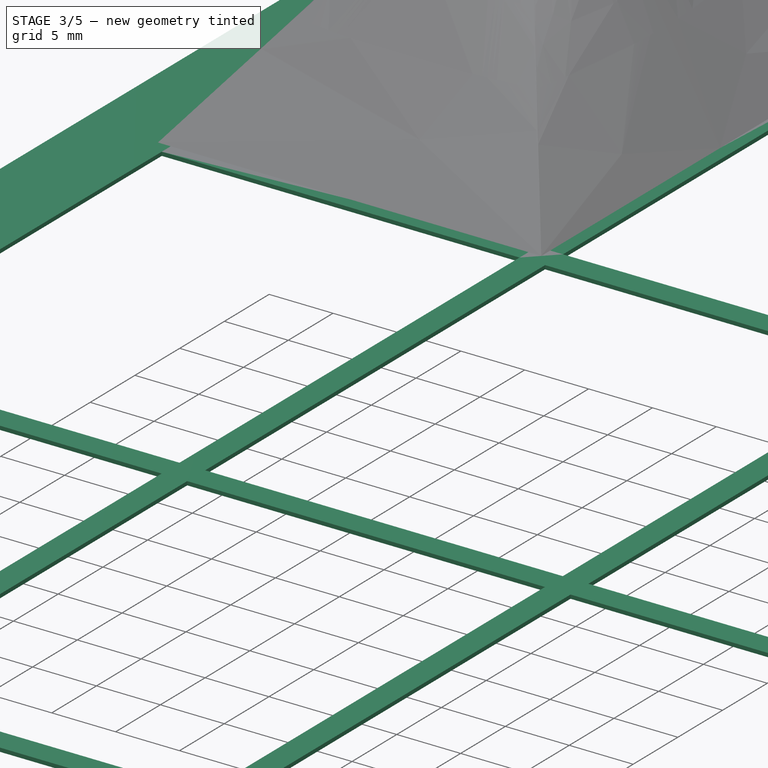
[diagram: stage 3 of 5 — iso view after this stage's code; geometry added in this stage tinted green]
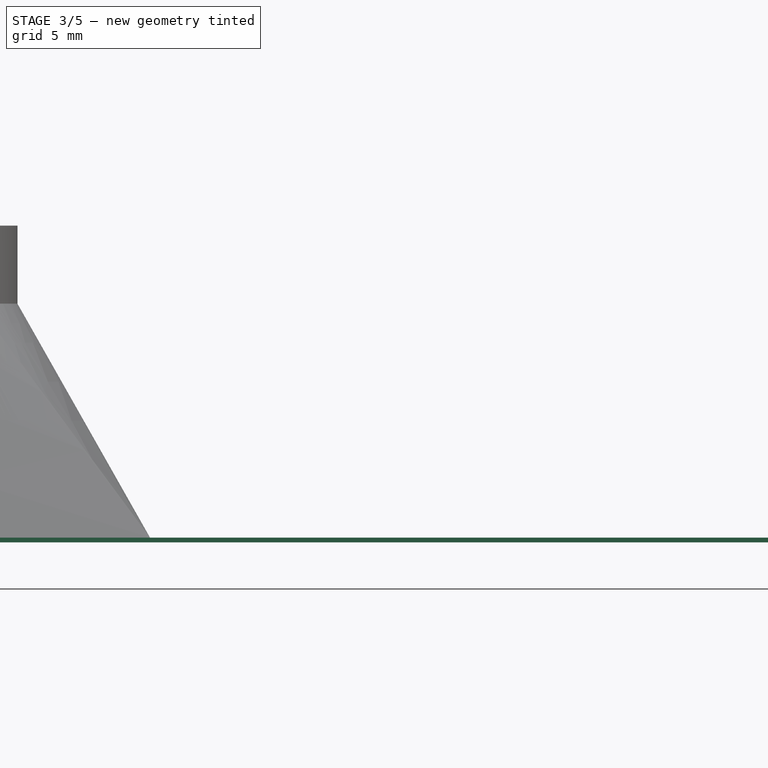
[diagram: stage 3 of 5 — front view after this stage's code; geometry added in this stage tinted green]
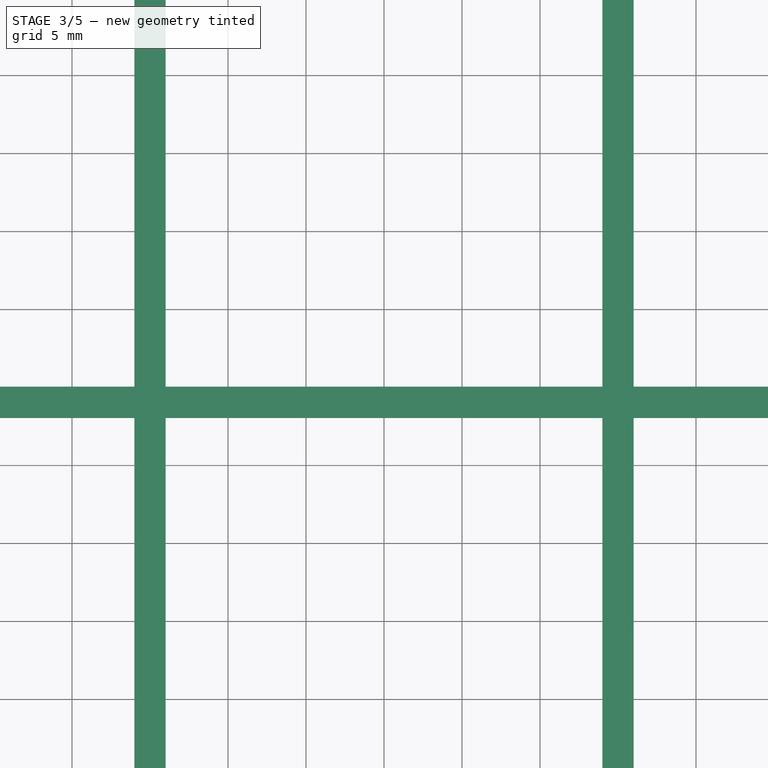
[diagram: stage 3 of 5 — top view after this stage's code; geometry added in this stage tinted green]
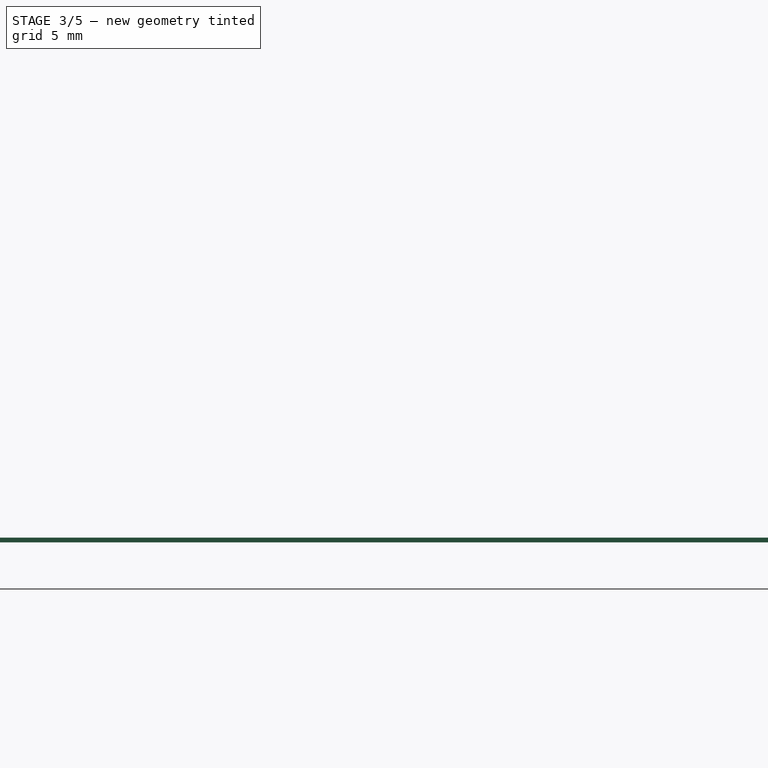
[diagram: stage 3 of 5 — right view after this stage's code; geometry added in this stage tinted green]
FEATURE [PartDesign::Body] Body004  label="Reflector004"
  Group = -> [ShapeBinder003,Sketch018,Sketch021,AdditiveLoft003,Sketch019,Pad007,Sketch023,Sketch022,Pocket003,Hole003]
  Origin = -> Origin004
  Placement = pos=(0,-40,0) rot=(0,0,1;0rad)
  Tip = -> Hole003
FEATURE [Sketcher::SketchObject] Sketch028
  FullyConstrained = true
  MapMode = 5
  Support = -> [XY_Plane008]
  expr: Constraints[18] = 5 + 2
  sketch-geometry (52):
    g0: LineSegment StartX=-51 StartY=85 StartZ=0 EndX=51 EndY=85 EndZ=0
    g1: LineSegment StartX=51 StartY=85 StartZ=0 EndX=51 EndY=-85 EndZ=0
    g2: LineSegment StartX=51 StartY=-85 StartZ=0 EndX=-51 EndY=-85 EndZ=0
    g3: LineSegment StartX=-51 StartY=-85 StartZ=0 EndX=-51 EndY=85 EndZ=0
    g4: LineSegment StartX=-44 StartY=78 StartZ=0 EndX=-16 EndY=78 EndZ=0
    g5: LineSegment StartX=-16 StartY=78 StartZ=0 EndX=-16 EndY=40 EndZ=0
    g6: LineSegment StartX=-16 StartY=40 StartZ=0 EndX=-44 EndY=40 EndZ=0
    g7: LineSegment StartX=-44 StartY=40 StartZ=0 EndX=-44 EndY=78 EndZ=0
    g8: LineSegment StartX=-44 StartY=38 StartZ=0 EndX=-16 EndY=38 EndZ=0
    g9: LineSegment StartX=-16 StartY=38 StartZ=0 EndX=-16 EndY=-9.27471e-11 EndZ=0
    g10: LineSegment StartX=-16 StartY=-9.27471e-11 StartZ=0 EndX=-44 EndY=-9.27471e-11 EndZ=0
    g11: LineSegment StartX=-44 StartY=-9.27471e-11 StartZ=0 EndX=-44 EndY=38 EndZ=0
    g12: LineSegment StartX=-44 StartY=-2 StartZ=0 EndX=-16 EndY=-2 EndZ=0
    g13: LineSegment StartX=-16 StartY=-2 StartZ=0 EndX=-16 EndY=-40 EndZ=0
    g14: LineSegment StartX=-16 StartY=-40 StartZ=0 EndX=-44 EndY=-40 EndZ=0
    g15: LineSegment StartX=-44 StartY=-40 StartZ=0 EndX=-44 EndY=-2 EndZ=0
    g16: LineSegment StartX=-44 StartY=-42 StartZ=0 EndX=-16 EndY=-42 EndZ=0
    g17: LineSegment StartX=-16 StartY=-42 StartZ=0 EndX=-16 EndY=-80 EndZ=0
    g18: LineSegment StartX=-16 StartY=-80 StartZ=0 EndX=-44 EndY=-80 EndZ=0
    g19: LineSegment StartX=-44 StartY=-80 StartZ=0 EndX=-44 EndY=-42 EndZ=0
    g20: LineSegment StartX=-14 StartY=78 StartZ=0 EndX=14 EndY=78 EndZ=0
    g21: LineSegment StartX=14 StartY=78 StartZ=0 EndX=14 EndY=40 EndZ=0
    g22: LineSegment StartX=14 StartY=40 StartZ=0 EndX=-14 EndY=40 EndZ=0
    g23: LineSegment StartX=-14 StartY=40 StartZ=0 EndX=-14 EndY=78 EndZ=0
    g24: LineSegment StartX=-14 StartY=38 StartZ=0 EndX=14 EndY=38 EndZ=0
    g25: LineSegment StartX=14 StartY=38 StartZ=0 EndX=14 EndY=-2.7849e-10 EndZ=0
    g26: LineSegment StartX=14 StartY=-2.7849e-10 StartZ=0 EndX=-14 EndY=-2.7849e-10 EndZ=0
    g27: LineSegment StartX=-14 StartY=-2.7849e-10 StartZ=0 EndX=-14 EndY=38 EndZ=0
    g28: LineSegment StartX=-14 StartY=-2 StartZ=0 EndX=14 EndY=-2 EndZ=0
    g29: LineSegment StartX=14 StartY=-2 StartZ=0 EndX=14 EndY=-40 EndZ=0
    g30: LineSegment StartX=14 StartY=-40 StartZ=0 EndX=-14 EndY=-40 EndZ=0
    g31: LineSegment StartX=-14 StartY=-40 StartZ=0 EndX=-14 EndY=-2 EndZ=0
    g32: LineSegment StartX=-14 StartY=-42 StartZ=0 EndX=14 EndY=-42 EndZ=0
    g33: LineSegment StartX=14 StartY=-42 StartZ=0 EndX=14 EndY=-80 EndZ=0
    g34: LineSegment StartX=14 StartY=-80 StartZ=0 EndX=-14 EndY=-80 EndZ=0
    g35: LineSegment StartX=-14 StartY=-80 StartZ=0 EndX=-14 EndY=-42 EndZ=0
    g36: LineSegment StartX=16 StartY=78 StartZ=0 EndX=44 EndY=78 EndZ=0
    g37: LineSegment StartX=44 StartY=78 StartZ=0 EndX=44 EndY=40 EndZ=0
    g38: LineSegment StartX=44 StartY=40 StartZ=0 EndX=16 EndY=40 EndZ=0
    g39: LineSegment StartX=16 StartY=40 StartZ=0 EndX=16 EndY=78 EndZ=0
    g40: LineSegment StartX=16 StartY=38 StartZ=0 EndX=44 EndY=38 EndZ=0
    g41: LineSegment StartX=44 StartY=38 StartZ=0 EndX=44 EndY=9.30314e-11 EndZ=0
    g42: LineSegment StartX=44 StartY=9.30314e-11 StartZ=0 EndX=16 EndY=9.30314e-11 EndZ=0
    g43: LineSegment StartX=16 StartY=9.30314e-11 StartZ=0 EndX=16 EndY=38 EndZ=0
    g44: LineSegment StartX=16 StartY=-2 StartZ=0 EndX=44 EndY=-2 EndZ=0
    g45: LineSegment StartX=44 StartY=-2 StartZ=0 EndX=44 EndY=-40 EndZ=0
    g46: LineSegment StartX=44 StartY=-40 StartZ=0 EndX=16 EndY=-40 EndZ=0
    g47: LineSegment StartX=16 StartY=-40 StartZ=0 EndX=16 EndY=-2 EndZ=0
    g48: LineSegment StartX=16 StartY=-42 StartZ=0 EndX=44 EndY=-42 EndZ=0
    g49: LineSegment StartX=44 StartY=-42 StartZ=0 EndX=44 EndY=-80 EndZ=0
    g50: LineSegment StartX=44 StartY=-80 StartZ=0 EndX=16 EndY=-80 EndZ=0
    g51: LineSegment StartX=16 StartY=-80 StartZ=0 EndX=16 EndY=-42 EndZ=0
  constraints (154):
    c: Coincident(g0,g1)
    c: Coincident(g1,g2)
    c: Coincident(g2,g3)
    c: Coincident(g3,g0)
    c: Horizontal(g2)
    c: Vertical(g1)
    c: Symmetric(g0,g2,g-1)
    c: Symmetric(g0,g0,g-2)
    c: Distance(g2) = 102
    c: Distance(g1) = 170
    c: Coincident(g4,g5)
    c: Coincident(g5,g6)
    c: Coincident(g6,g7)
    c: Coincident(g7,g4)
    c: Horizontal(g4)
    c: Horizontal(g6)
    c: Vertical(g5)
    c: Vertical(g7)
    c: DistanceX(g0,g4) = 7
    c: Distance(g6) = 28
    c: Distance(g5) = 38
    c: DistanceY(g4,g0) = 7
    c: Coincident(g8,g9)
    c: Coincident(g9,g10)
    c: Coincident(g10,g11)
    c: Coincident(g11,g8)
    c: Horizontal(g8)
    c: Horizontal(g10)
    c: Vertical(g9)
    c: Vertical(g11)
    c: Equal(g6,g10) = 28
    c: Equal(g5,g9) = 38
    c: DistanceY(g8,g6) = 2
    c: DistanceX(g0,g8) = 7
    c: Coincident(g12,g13)
    c: Coincident(g13,g14)
    c: Coincident(g14,g15)
    c: Coincident(g15,g12)
    c: Horizontal(g12)
    c: Horizontal(g14)
    c: Vertical(g13)
    c: Vertical(g15)
    c: Equal(g6,g14) = 28
    c: Equal(g5,g13) = 38
    c: DistanceY(g12,g10) = 2
    c: Coincident(g16,g17)
    c: Coincident(g17,g18)
    c: Coincident(g18,g19)
    c: Coincident(g19,g16)
    c: Horizontal(g16)
    c: Horizontal(g18)
    c: Vertical(g17)
    c: Vertical(g19)
    c: Equal(g6,g18) = 28
    c: Equal(g5,g17) = 38
    c: Coincident(g20,g21)
    c: Coincident(g21,g22)
    c: Coincident(g22,g23)
    c: Coincident(g23,g20)
    c: Horizontal(g20)
    c: Horizontal(g22)
    c: Vertical(g21)
    c: Vertical(g23)
    c: Equal(g6,g22) = 28
    c: Equal(g5,g21) = 38
    c: Coincident(g24,g25)
    c: Coincident(g25,g26)
    c: Coincident(g26,g27)
    c: Coincident(g27,g24)
    c: Horizontal(g24)
    c: Horizontal(g26)
    c: Vertical(g25)
    c: Vertical(g27)
    c: Equal(g22,g26) = 28
    c: Equal(g21,g25) = 38
    c: DistanceY(g24,g22) = 2
    c: Coincident(g28,g29)
    c: Coincident(g29,g30)
    c: Coincident(g30,g31)
    c: Coincident(g31,g28)
    c: Horizontal(g28)
    c: Horizontal(g30)
    c: Vertical(g29)
    c: Vertical(g31)
    c: Equal(g22,g30) = 28
    c: Equal(g21,g29) = 38
    c: DistanceY(g28,g26) = 2
    c: Coincident(g32,g33)
    c: Coincident(g33,g34)
    c: Coincident(g34,g35)
    c: Coincident(g35,g32)
    c: Horizontal(g32)
    c: Horizontal(g34)
    c: Vertical(g33)
    c: Vertical(g35)
    c: Equal(g22,g34) = 28
    c: Equal(g21,g33) = 38
    c: DistanceY(g20,g0) = 7
    c: DistanceY(g16,g14) = 2
    c: DistanceX(g4,g20) = 2
    c: DistanceX(g0,g12) = 7
    c: DistanceX(g0,g16) = 7
    c: DistanceX(g8,g24) = 2
    c: DistanceX(g12,g28) = 2
    c: DistanceY(g32,g30) = 2
    c: DistanceX(g16,g32) = 2
    c: Coincident(g36,g37)
    c: Coincident(g37,g38)
    c: Coincident(g38,g39)
    c: Coincident(g39,g36)
    c: Horizontal(g36)
    c: Horizontal(g38)
    c: Vertical(g37)
    c: Vertical(g39)
    c: Coincident(g40,g41)
    c: Coincident(g41,g42)
    c: Coincident(g42,g43)
    c: Coincident(g43,g40)
    c: Horizontal(g40)
    c: Horizontal(g42)
    c: Vertical(g41)
    c: Vertical(g43)
    c: Equal(g38,g42) = 28
    c: DistanceY(g40,g38) = 2
    c: Coincident(g44,g45)
    c: Coincident(g45,g46)
    c: Coincident(g46,g47)
    c: Coincident(g47,g44)
    c: Horizontal(g44)
    c: Horizontal(g46)
    c: Vertical(g45)
    c: Vertical(g47)
    c: Equal(g38,g46) = 28
    c: DistanceY(g44,g42) = 2
    c: Coincident(g48,g49)
    c: Coincident(g49,g50)
    c: Coincident(g50,g51)
    c: Coincident(g51,g48)
    c: Horizontal(g48)
    c: Horizontal(g50)
    c: Vertical(g49)
    c: Vertical(g51)
    c: Equal(g38,g50) = 28
    c: Equal(g37,g49) = 38
    c: DistanceY(g48,g46) = 2
    c: DistanceY(g36,g0) = 7
    c: Equal(g37,g41)
    c: Equal(g41,g45)
    c: Equal(g49,g21)
    c: DistanceX(g20,g36) = 2
    c: DistanceX(g24,g40) = 2
    c: DistanceX(g28,g44) = 2
    c: DistanceX(g32,g48) = 2
    c: Distance(g50) = 28
FEATURE [PartDesign::Pad] Pad008
  Direction = (0,0,1)
  Length = 0.3
  Length2 = 100
  Profile = -> Sketch028
  ReferenceAxis = -> Sketch028 [N_Axis]
  Type = 0
FEATURE [PartDesign::Body] Body005  label="Reflector005"
  Group = -> [ShapeBinder004,Sketch027,Sketch025,AdditiveLoft004,Sketch029,Pad009,Sketch026,Sketch024,Pocket004,Hole004]
  Origin = -> Origin005
  Placement = pos=(30,-40,0) rot=(0,0,1;0rad)
  Tip = -> Hole004
FEATURE [Sketcher::SketchObject] Sketch033
  FullyConstrained = true
  MapMode = 5
  Support = -> [XY_Plane011]
  expr: Constraints[18] = 5 + 2
  sketch-geometry (52):
    g0: LineSegment StartX=-51 StartY=85 StartZ=0 EndX=51 EndY=85 EndZ=0
    g1: LineSegment StartX=51 StartY=85 StartZ=0 EndX=51 EndY=-85 EndZ=0
    g2: LineSegment StartX=51 StartY=-85 StartZ=0 EndX=-51 EndY=-85 EndZ=0
    g3: LineSegment StartX=-51 StartY=-85 StartZ=0 EndX=-51 EndY=85 EndZ=0
    g4: LineSegment StartX=-44 StartY=78 StartZ=0 EndX=-16 EndY=78 EndZ=0
    g5: LineSegment StartX=-16 StartY=78 StartZ=0 EndX=-16 EndY=40 EndZ=0
    g6: LineSegment StartX=-16 StartY=40 StartZ=0 EndX=-44 EndY=40 EndZ=0
    g7: LineSegment StartX=-44 StartY=40 StartZ=0 EndX=-44 EndY=78 EndZ=0
    g8: LineSegment StartX=-44 StartY=38 StartZ=0 EndX=-16 EndY=38 EndZ=0
    g9: LineSegment StartX=-16 StartY=38 StartZ=0 EndX=-16 EndY=-9.27471e-11 EndZ=0
    g10: LineSegment StartX=-16 StartY=-9.27471e-11 StartZ=0 EndX=-44 EndY=-9.27471e-11 EndZ=0
    g11: LineSegment StartX=-44 StartY=-9.27471e-11 StartZ=0 EndX=-44 EndY=38 EndZ=0
    g12: LineSegment StartX=-44 StartY=-2 StartZ=0 EndX=-16 EndY=-2 EndZ=0
    g13: LineSegment StartX=-16 StartY=-2 StartZ=0 EndX=-16 EndY=-40 EndZ=0
    g14: LineSegment StartX=-16 StartY=-40 StartZ=0 EndX=-44 EndY=-40 EndZ=0
    g15: LineSegment StartX=-44 StartY=-40 StartZ=0 EndX=-44 EndY=-2 EndZ=0
    g16: LineSegment StartX=-44 StartY=-42 StartZ=0 EndX=-16 EndY=-42 EndZ=0
    g17: LineSegment StartX=-16 StartY=-42 StartZ=0 EndX=-16 EndY=-80 EndZ=0
    g18: LineSegment StartX=-16 StartY=-80 StartZ=0 EndX=-44 EndY=-80 EndZ=0
    g19: LineSegment StartX=-44 StartY=-80 StartZ=0 EndX=-44 EndY=-42 EndZ=0
    g20: LineSegment StartX=-14 StartY=78 StartZ=0 EndX=14 EndY=78 EndZ=0
    g21: LineSegment StartX=14 StartY=78 StartZ=0 EndX=14 EndY=40 EndZ=0
    g22: LineSegment StartX=14 StartY=40 StartZ=0 EndX=-14 EndY=40 EndZ=0
    g23: LineSegment StartX=-14 StartY=40 StartZ=0 EndX=-14 EndY=78 EndZ=0
    g24: LineSegment StartX=-14 StartY=38 StartZ=0 EndX=14 EndY=38 EndZ=0
    g25: LineSegment StartX=14 StartY=38 StartZ=0 EndX=14 EndY=-2.7849e-10 EndZ=0
    g26: LineSegment StartX=14 StartY=-2.7849e-10 StartZ=0 EndX=-14 EndY=-2.7849e-10 EndZ=0
    g27: LineSegment StartX=-14 StartY=-2.7849e-10 StartZ=0 EndX=-14 EndY=38 EndZ=0
    g28: LineSegment StartX=-14 StartY=-2 StartZ=0 EndX=14 EndY=-2 EndZ=0
    g29: LineSegment StartX=14 StartY=-2 StartZ=0 EndX=14 EndY=-40 EndZ=0
    g30: LineSegment StartX=14 StartY=-40 StartZ=0 EndX=-14 EndY=-40 EndZ=0
    g31: LineSegment StartX=-14 StartY=-40 StartZ=0 EndX=-14 EndY=-2 EndZ=0
    g32: LineSegment StartX=-14 StartY=-42 StartZ=0 EndX=14 EndY=-42 EndZ=0
    g33: LineSegment StartX=14 StartY=-42 StartZ=0 EndX=14 EndY=-80 EndZ=0
    g34: LineSegment StartX=14 StartY=-80 StartZ=0 EndX=-14 EndY=-80 EndZ=0
    g35: LineSegment StartX=-14 StartY=-80 StartZ=0 EndX=-14 EndY=-42 EndZ=0
    g36: LineSegment StartX=16 StartY=78 StartZ=0 EndX=44 EndY=78 EndZ=0
    g37: LineSegment StartX=44 StartY=78 StartZ=0 EndX=44 EndY=40 EndZ=0
    g38: LineSegment StartX=44 StartY=40 StartZ=0 EndX=16 EndY=40 EndZ=0
    g39: LineSegment StartX=16 StartY=40 StartZ=0 EndX=16 EndY=78 EndZ=0
    g40: LineSegment StartX=16 StartY=38 StartZ=0 EndX=44 EndY=38 EndZ=0
    g41: LineSegment StartX=44 StartY=38 StartZ=0 EndX=44 EndY=9.30314e-11 EndZ=0
    g42: LineSegment StartX=44 StartY=9.30314e-11 StartZ=0 EndX=16 EndY=9.30314e-11 EndZ=0
    g43: LineSegment StartX=16 StartY=9.30314e-11 StartZ=0 EndX=16 EndY=38 EndZ=0
    g44: LineSegment StartX=16 StartY=-2 StartZ=0 EndX=44 EndY=-2 EndZ=0
    g45: LineSegment StartX=44 StartY=-2 StartZ=0 EndX=44 EndY=-40 EndZ=0
    g46: LineSegment StartX=44 StartY=-40 StartZ=0 EndX=16 EndY=-40 EndZ=0
    g47: LineSegment StartX=16 StartY=-40 StartZ=0 EndX=16 EndY=-2 EndZ=0
    g48: LineSegment StartX=16 StartY=-42 StartZ=0 EndX=44 EndY=-42 EndZ=0
    g49: LineSegment StartX=44 StartY=-42 StartZ=0 EndX=44 EndY=-80 EndZ=0
    g50: LineSegment StartX=44 StartY=-80 StartZ=0 EndX=16 EndY=-80 EndZ=0
    g51: LineSegment StartX=16 StartY=-80 StartZ=0 EndX=16 EndY=-42 EndZ=0
  constraints (154):
    c: Coincident(g0,g1)
    c: Coincident(g1,g2)
    c: Coincident(g2,g3)
    c: Coincident(g3,g0)
    c: Horizontal(g2)
    c: Vertical(g1)
    c: Symmetric(g0,g2,g-1)
    c: Symmetric(g0,g0,g-2)
    c: Distance(g2) = 102
    c: Distance(g1) = 170
    c: Coincident(g4,g5)
    c: Coincident(g5,g6)
    c: Coincident(g6,g7)
    c: Coincident(g7,g4)
    c: Horizontal(g4)
    c: Horizontal(g6)
    c: Vertical(g5)
    c: Vertical(g7)
    c: DistanceX(g0,g4) = 7
    c: Distance(g6) = 28
    c: Distance(g5) = 38
    c: DistanceY(g4,g0) = 7
    c: Coincident(g8,g9)
    c: Coincident(g9,g10)
    c: Coincident(g10,g11)
    c: Coincident(g11,g8)
    c: Horizontal(g8)
    c: Horizontal(g10)
    c: Vertical(g9)
    c: Vertical(g11)
    c: Equal(g6,g10) = 28
    c: Equal(g5,g9) = 38
    c: DistanceY(g8,g6) = 2
    c: DistanceX(g0,g8) = 7
    c: Coincident(g12,g13)
    c: Coincident(g13,g14)
    c: Coincident(g14,g15)
    c: Coincident(g15,g12)
    c: Horizontal(g12)
    c: Horizontal(g14)
    c: Vertical(g13)
    c: Vertical(g15)
    c: Equal(g6,g14) = 28
    c: Equal(g5,g13) = 38
    c: DistanceY(g12,g10) = 2
    c: Coincident(g16,g17)
    c: Coincident(g17,g18)
    c: Coincident(g18,g19)
    c: Coincident(g19,g16)
    c: Horizontal(g16)
    c: Horizontal(g18)
    c: Vertical(g17)
    c: Vertical(g19)
    c: Equal(g6,g18) = 28
    c: Equal(g5,g17) = 38
    c: Coincident(g20,g21)
    c: Coincident(g21,g22)
    c: Coincident(g22,g23)
    c: Coincident(g23,g20)
    c: Horizontal(g20)
    c: Horizontal(g22)
    c: Vertical(g21)
    c: Vertical(g23)
    c: Equal(g6,g22) = 28
    c: Equal(g5,g21) = 38
    c: Coincident(g24,g25)
    c: Coincident(g25,g26)
    c: Coincident(g26,g27)
    c: Coincident(g27,g24)
    c: Horizontal(g24)
    c: Horizontal(g26)
    c: Vertical(g25)
    c: Vertical(g27)
    c: Equal(g22,g26) = 28
    c: Equal(g21,g25) = 38
    c: DistanceY(g24,g22) = 2
    c: Coincident(g28,g29)
    c: Coincident(g29,g30)
    c: Coincident(g30,g31)
    c: Coincident(g31,g28)
    c: Horizontal(g28)
    c: Horizontal(g30)
    c: Vertical(g29)
    c: Vertical(g31)
    c: Equal(g22,g30) = 28
    c: Equal(g21,g29) = 38
    c: DistanceY(g28,g26) = 2
    c: Coincident(g32,g33)
    c: Coincident(g33,g34)
    c: Coincident(g34,g35)
    c: Coincident(g35,g32)
    c: Horizontal(g32)
    c: Horizontal(g34)
    c: Vertical(g33)
    c: Vertical(g35)
    c: Equal(g22,g34) = 28
    c: Equal(g21,g33) = 38
    c: DistanceY(g20,g0) = 7
    c: DistanceY(g16,g14) = 2
    c: DistanceX(g4,g20) = 2
    c: DistanceX(g0,g12) = 7
    c: DistanceX(g0,g16) = 7
    c: DistanceX(g8,g24) = 2
    c: DistanceX(g12,g28) = 2
    c: DistanceY(g32,g30) = 2
    c: DistanceX(g16,g32) = 2
    c: Coincident(g36,g37)
    c: Coincident(g37,g38)
    c: Coincident(g38,g39)
    c: Coincident(g39,g36)
    c: Horizontal(g36)
    c: Horizontal(g38)
    c: Vertical(g37)
    c: Vertical(g39)
    c: Coincident(g40,g41)
    c: Coincident(g41,g42)
    c: Coincident(g42,g43)
    c: Coincident(g43,g40)
    c: Horizontal(g40)
    c: Horizontal(g42)
    c: Vertical(g41)
    c: Vertical(g43)
    c: Equal(g38,g42) = 28
    c: DistanceY(g40,g38) = 2
    c: Coincident(g44,g45)
    c: Coincident(g45,g46)
    c: Coincident(g46,g47)
    c: Coincident(g47,g44)
    c: Horizontal(g44)
    c: Horizontal(g46)
    c: Vertical(g45)
    c: Vertical(g47)
    c: Equal(g38,g46) = 28
    c: DistanceY(g44,g42) = 2
    c: Coincident(g48,g49)
    c: Coincident(g49,g50)
    c: Coincident(g50,g51)
    c: Coincident(g51,g48)
    c: Horizontal(g48)
    c: Horizontal(g50)
    c: Vertical(g49)
    c: Vertical(g51)
    c: Equal(g38,g50) = 28
    c: Equal(g37,g49) = 38
    c: DistanceY(g48,g46) = 2
    c: DistanceY(g36,g0) = 7
    c: Equal(g37,g41)
    c: Equal(g41,g45)
    c: Equal(g49,g21)
    c: DistanceX(g20,g36) = 2
    c: DistanceX(g24,g40) = 2
    c: DistanceX(g28,g44) = 2
    c: DistanceX(g32,g48) = 2
    c: Distance(g50) = 28
FEATURE [PartDesign::Pad] Pad010
  Direction = (0,0,1)
  Length = 0.3
  Length2 = 100
  Profile = -> Sketch033
  ReferenceAxis = -> Sketch033 [N_Axis]
  Type = 0
FEATURE [PartDesign::ShapeBinder] ShapeBinder005
  Placement = pos=(0,0,0.3) rot=(0,0,1;0rad)
  Support = -> [Pad010]
  TraceSupport = false
FEATURE [Sketcher::SketchObject] Sketch031
  ExternalGeometry = -> [ShapeBinder005]
  FullyConstrained = true
  MapMode = 5
  Placement = pos=(0,0,0.3) rot=(0,0,1;0rad)
  Support = -> [ShapeBinder005]
  sketch-geometry (8):
    g0: LineSegment StartX=-45 StartY=79 StartZ=0 EndX=-15 EndY=79 EndZ=0
    g1: LineSegment StartX=-15 StartY=79 StartZ=0 EndX=-15 EndY=39 EndZ=0
    g2: LineSegment StartX=-15 StartY=39 StartZ=0 EndX=-45 EndY=39 EndZ=0
    g3: LineSegment StartX=-45 StartY=39 StartZ=0 EndX=-45 EndY=79 EndZ=0
    g4: LineSegment StartX=-44 StartY=78 StartZ=0 EndX=-16 EndY=78 EndZ=0
    g5: LineSegment StartX=-16 StartY=78 StartZ=0 EndX=-16 EndY=40 EndZ=0
    g6: LineSegment StartX=-16 StartY=40 StartZ=0 EndX=-44 EndY=40 EndZ=0
    g7: LineSegment StartX=-44 StartY=40 StartZ=0 EndX=-44 EndY=78 EndZ=0
  constraints (24):
    c: Coincident(g0,g1)
    c: Coincident(g1,g2)
    c: Coincident(g2,g3)
    c: Coincident(g3,g0)
    c: Horizontal(g0)
    c: Horizontal(g2)
    c: Vertical(g1)
    c: Vertical(g3)
    c: Coincident(g4,g5)
    c: Coincident(g5,g6)
    c: Coincident(g6,g7)
    c: Coincident(g7,g4)
    c: Horizontal(g4)
    c: Horizontal(g6)
    c: Vertical(g5)
    c: Vertical(g7)
    c: DistanceY(g4,g0) = 1
    c: DistanceX(g0,g4) = 1
    c: DistanceX(g4,g0) = 1
    c: DistanceY(g1,g5) = 1
    c: DistanceX(g0,g-4) = -1
    c: DistanceY(g0,g-4) = -1
    c: DistanceX(g-5,g0) = -1
    c: DistanceY(g-6,g2) = -1
FEATURE [Sketcher::SketchObject] Sketch032
  AttachmentOffset = pos=(0,0,15) rot=(0,0,1;0rad)
  ExternalGeometry = -> [ShapeBinder005]
  FullyConstrained = true
  MapMode = 5
  Placement = pos=(0,0,15.3) rot=(0,0,1;0rad)
  Support = -> [ShapeBinder005]
  sketch-geometry (4):
    g0: Circle CenterX=-30 CenterY=59 CenterZ=0 NormalX=0 NormalY=0 NormalZ=1 AngleXU=0 Radius=6.5
    g1: LineSegment StartX=-30 StartY=78 StartZ=0 EndX=-30 EndY=40 EndZ=0
    g2: LineSegment StartX=-44 StartY=59 StartZ=0 EndX=-16 EndY=59 EndZ=0
    g3: Circle CenterX=-30 CenterY=59 CenterZ=0 NormalX=0 NormalY=0 NormalZ=1 AngleXU=0 Radius=6
  constraints (11):
    c: PointOnObject(g1,g-4)
    c: PointOnObject(g2,g-5)
    c: PointOnObject(g2,g-3)
    c: Symmetric(g-5,g-3,g1)
    c: Symmetric(g-5,g-5,g2)
    c: DistanceY(g2,g0) = 0
    c: DistanceX(g1,g0) = 0
    c: Diameter(g0) = 13
    c: Equal(g1,g-3)
    c: Coincident(g3,g0)
    c: Diameter(g3) = 12
FEATURE [PartDesign::AdditiveLoft] AdditiveLoft005
  Closed = false
  Placement = pos=(0,0,0.3) rot=(0,0,1;0rad)
  Profile = -> Sketch031
  Ruled = false
  Sections = -> [Sketch032]
FEATURE [Sketcher::SketchObject] Sketch035
  ExternalGeometry = -> [Sketch032]
  FullyConstrained = true
  MapMode = 5
  Placement = pos=(0,0,15.3) rot=(0,0,1;0rad)
  Support = -> [AdditiveLoft005]
  sketch-geometry (1):
    g0: Circle CenterX=-30 CenterY=59 CenterZ=0 NormalX=0 NormalY=0 NormalZ=1 AngleXU=0 Radius=6.5
  constraints (2):
    c: Coincident(g0,g-3)
    c: Tangent(g0,g-3)
FEATURE [PartDesign::Pad] Pad011
  BaseFeature = -> AdditiveLoft005
  Direction = (0,0,1)
  Length = 5
  Length2 = 100
  Placement = pos=(0,0,0.3) rot=(0,0,1;0rad)
  Profile = -> Sketch035
  ReferenceAxis = -> Sketch035 [N_Axis]
  Type = 0
FEATURE [Sketcher::SketchObject] Sketch030
  ExternalGeometry = -> [Pad011]
  FullyConstrained = true
  MapMode = 5
  Placement = pos=(0,0,20.3) rot=(0,0,1;0rad)
  Support = -> [Pad011]
  sketch-geometry (1):
    g0: Circle CenterX=-30 CenterY=59 CenterZ=0 NormalX=0 NormalY=0 NormalZ=1 AngleXU=0 Radius=5
  constraints (2):
    c: Coincident(g0,g-3)
    c: Diameter(g0) = 10
FEATURE [Sketcher::SketchObject] Sketch034
  FullyConstrained = true
  MapMode = 5
  Placement = pos=(0,0,20.3) rot=(0,0,1;0rad)
  Support = -> [Pad011]
FEATURE [PartDesign::Pocket] Pocket005
  BaseFeature = -> Pad011
  Direction = (0,0,-1)
  Length = 4
  Length2 = 100
  Placement = pos=(0,0,0.3) rot=(0,0,1;0rad)
  Profile = -> Sketch030
  ReferenceAxis = -> Sketch030 [N_Axis]
  Type = 0
FEATURE [PartDesign::Hole] Hole005
  BaseFeature = -> Pocket005
  CustomThreadClearance = 0
  Depth = 25
  DepthType = 0
  Diameter = 6
  DrillForDepth = false
  DrillPoint = 1
  DrillPointAngle = 118
  HoleCutCountersinkAngle = 90
  HoleCutCustomValues = false
  HoleCutDepth = 0
  HoleCutDiameter = 6.1
  HoleCutType = 0
  ModelThread = false
  Placement = pos=(0,0,0.3) rot=(0,0,1;0rad)
  Profile = -> Pocket005 [Face16]
  Tapered = false
  TaperedAngle = 90
  ThreadClass = 0
  ThreadDepth = 25
  ThreadDepthType = 0
  ThreadDirection = 0
  ThreadFit = 0
  ThreadSize = 0
  ThreadType = 0
  Threaded = false
  UseCustomThreadClearance = false
FEATURE [PartDesign::Body] Body006  label="Reflector006"
  Group = -> [ShapeBinder005,Sketch032,Sketch031,AdditiveLoft005,Sketch035,Pad011,Sketch034,Sketch030,Pocket005,Hole005]
  Origin = -> Origin006
  Placement = pos=(60,-40,0) rot=(0,0,1;0rad)
  Tip = -> Hole005
FEATURE [Sketcher::SketchObject] Sketch038
  FullyConstrained = true
  MapMode = 5
  Support = -> [XY_Plane013]
  expr: Constraints[18] = 5 + 2
  sketch-geometry (52):
    g0: LineSegment StartX=-51 StartY=85 StartZ=0 EndX=51 EndY=85 EndZ=0
    g1: LineSegment StartX=51 StartY=85 StartZ=0 EndX=51 EndY=-85 EndZ=0
    g2: LineSegment StartX=51 StartY=-85 StartZ=0 EndX=-51 EndY=-85 EndZ=0
    g3: LineSegment StartX=-51 StartY=-85 StartZ=0 EndX=-51 EndY=85 EndZ=0
    g4: LineSegment StartX=-44 StartY=78 StartZ=0 EndX=-16 EndY=78 EndZ=0
    g5: LineSegment StartX=-16 StartY=78 StartZ=0 EndX=-16 EndY=40 EndZ=0
    g6: LineSegment StartX=-16 StartY=40 StartZ=0 EndX=-44 EndY=40 EndZ=0
    g7: LineSegment StartX=-44 StartY=40 StartZ=0 EndX=-44 EndY=78 EndZ=0
    g8: LineSegment StartX=-44 StartY=38 StartZ=0 EndX=-16 EndY=38 EndZ=0
    g9: LineSegment StartX=-16 StartY=38 StartZ=0 EndX=-16 EndY=-9.27471e-11 EndZ=0
    g10: LineSegment StartX=-16 StartY=-9.27471e-11 StartZ=0 EndX=-44 EndY=-9.27471e-11 EndZ=0
    g11: LineSegment StartX=-44 StartY=-9.27471e-11 StartZ=0 EndX=-44 EndY=38 EndZ=0
    g12: LineSegment StartX=-44 StartY=-2 StartZ=0 EndX=-16 EndY=-2 EndZ=0
    g13: LineSegment StartX=-16 StartY=-2 StartZ=0 EndX=-16 EndY=-40 EndZ=0
    g14: LineSegment StartX=-16 StartY=-40 StartZ=0 EndX=-44 EndY=-40 EndZ=0
    g15: LineSegment StartX=-44 StartY=-40 StartZ=0 EndX=-44 EndY=-2 EndZ=0
    g16: LineSegment StartX=-44 StartY=-42 StartZ=0 EndX=-16 EndY=-42 EndZ=0
    g17: LineSegment StartX=-16 StartY=-42 StartZ=0 EndX=-16 EndY=-80 EndZ=0
    g18: LineSegment StartX=-16 StartY=-80 StartZ=0 EndX=-44 EndY=-80 EndZ=0
    g19: LineSegment StartX=-44 StartY=-80 StartZ=0 EndX=-44 EndY=-42 EndZ=0
    g20: LineSegment StartX=-14 StartY=78 StartZ=0 EndX=14 EndY=78 EndZ=0
    g21: LineSegment StartX=14 StartY=78 StartZ=0 EndX=14 EndY=40 EndZ=0
    g22: LineSegment StartX=14 StartY=40 StartZ=0 EndX=-14 EndY=40 EndZ=0
    g23: LineSegment StartX=-14 StartY=40 StartZ=0 EndX=-14 EndY=78 EndZ=0
    g24: LineSegment StartX=-14 StartY=38 StartZ=0 EndX=14 EndY=38 EndZ=0
    g25: LineSegment StartX=14 StartY=38 StartZ=0 EndX=14 EndY=-2.7849e-10 EndZ=0
    g26: LineSegment StartX=14 StartY=-2.7849e-10 StartZ=0 EndX=-14 EndY=-2.7849e-10 EndZ=0
    g27: LineSegment StartX=-14 StartY=-2.7849e-10 StartZ=0 EndX=-14 EndY=38 EndZ=0
    g28: LineSegment StartX=-14 StartY=-2 StartZ=0 EndX=14 EndY=-2 EndZ=0
    g29: LineSegment StartX=14 StartY=-2 StartZ=0 EndX=14 EndY=-40 EndZ=0
    g30: LineSegment StartX=14 StartY=-40 StartZ=0 EndX=-14 EndY=-40 EndZ=0
    g31: LineSegment StartX=-14 StartY=-40 StartZ=0 EndX=-14 EndY=-2 EndZ=0
    g32: LineSegment StartX=-14 StartY=-42 StartZ=0 EndX=14 EndY=-42 EndZ=0
    g33: LineSegment StartX=14 StartY=-42 StartZ=0 EndX=14 EndY=-80 EndZ=0
    g34: LineSegment StartX=14 StartY=-80 StartZ=0 EndX=-14 EndY=-80 EndZ=0
    g35: LineSegment StartX=-14 StartY=-80 StartZ=0 EndX=-14 EndY=-42 EndZ=0
    g36: LineSegment StartX=16 StartY=78 StartZ=0 EndX=44 EndY=78 EndZ=0
    g37: LineSegment StartX=44 StartY=78 StartZ=0 EndX=44 EndY=40 EndZ=0
    g38: LineSegment StartX=44 StartY=40 StartZ=0 EndX=16 EndY=40 EndZ=0
    g39: LineSegment StartX=16 StartY=40 StartZ=0 EndX=16 EndY=78 EndZ=0
    g40: LineSegment StartX=16 StartY=38 StartZ=0 EndX=44 EndY=38 EndZ=0
    g41: LineSegment StartX=44 StartY=38 StartZ=0 EndX=44 EndY=9.30314e-11 EndZ=0
    g42: LineSegment StartX=44 StartY=9.30314e-11 StartZ=0 EndX=16 EndY=9.30314e-11 EndZ=0
    g43: LineSegment StartX=16 StartY=9.30314e-11 StartZ=0 EndX=16 EndY=38 EndZ=0
    g44: LineSegment StartX=16 StartY=-2 StartZ=0 EndX=44 EndY=-2 EndZ=0
    g45: LineSegment StartX=44 StartY=-2 StartZ=0 EndX=44 EndY=-40 EndZ=0
    g46: LineSegment StartX=44 StartY=-40 StartZ=0 EndX=16 EndY=-40 EndZ=0
    g47: LineSegment StartX=16 StartY=-40 StartZ=0 EndX=16 EndY=-2 EndZ=0
    g48: LineSegment StartX=16 StartY=-42 StartZ=0 EndX=44 EndY=-42 EndZ=0
    g49: LineSegment StartX=44 StartY=-42 StartZ=0 EndX=44 EndY=-80 EndZ=0
    g50: LineSegment StartX=44 StartY=-80 StartZ=0 EndX=16 EndY=-80 EndZ=0
    g51: LineSegment StartX=16 StartY=-80 StartZ=0 EndX=16 EndY=-42 EndZ=0
  constraints (154):
    c: Coincident(g0,g1)
    c: Coincident(g1,g2)
    c: Coincident(g2,g3)
    c: Coincident(g3,g0)
    c: Horizontal(g2)
    c: Vertical(g1)
    c: Symmetric(g0,g2,g-1)
    c: Symmetric(g0,g0,g-2)
    c: Distance(g2) = 102
    c: Distance(g1) = 170
    c: Coincident(g4,g5)
    c: Coincident(g5,g6)
    c: Coincident(g6,g7)
    c: Coincident(g7,g4)
    c: Horizontal(g4)
    c: Horizontal(g6)
    c: Vertical(g5)
    c: Vertical(g7)
    c: DistanceX(g0,g4) = 7
    c: Distance(g6) = 28
    c: Distance(g5) = 38
    c: DistanceY(g4,g0) = 7
    c: Coincident(g8,g9)
    c: Coincident(g9,g10)
    c: Coincident(g10,g11)
    c: Coincident(g11,g8)
    c: Horizontal(g8)
    c: Horizontal(g10)
    c: Vertical(g9)
    c: Vertical(g11)
    c: Equal(g6,g10) = 28
    c: Equal(g5,g9) = 38
    c: DistanceY(g8,g6) = 2
    c: DistanceX(g0,g8) = 7
    c: Coincident(g12,g13)
    c: Coincident(g13,g14)
    c: Coincident(g14,g15)
    c: Coincident(g15,g12)
    c: Horizontal(g12)
    c: Horizontal(g14)
    c: Vertical(g13)
    c: Vertical(g15)
    c: Equal(g6,g14) = 28
    c: Equal(g5,g13) = 38
    c: DistanceY(g12,g10) = 2
    c: Coincident(g16,g17)
    c: Coincident(g17,g18)
    c: Coincident(g18,g19)
    c: Coincident(g19,g16)
    c: Horizontal(g16)
    c: Horizontal(g18)
    c: Vertical(g17)
    c: Vertical(g19)
    c: Equal(g6,g18) = 28
    c: Equal(g5,g17) = 38
    c: Coincident(g20,g21)
    c: Coincident(g21,g22)
    c: Coincident(g22,g23)
    c: Coincident(g23,g20)
    c: Horizontal(g20)
    c: Horizontal(g22)
    c: Vertical(g21)
    c: Vertical(g23)
    c: Equal(g6,g22) = 28
    c: Equal(g5,g21) = 38
    c: Coincident(g24,g25)
    c: Coincident(g25,g26)
    c: Coincident(g26,g27)
    c: Coincident(g27,g24)
    c: Horizontal(g24)
    c: Horizontal(g26)
    c: Vertical(g25)
    c: Vertical(g27)
    c: Equal(g22,g26) = 28
    c: Equal(g21,g25) = 38
    c: DistanceY(g24,g22) = 2
    c: Coincident(g28,g29)
    c: Coincident(g29,g30)
    c: Coincident(g30,g31)
    c: Coincident(g31,g28)
    c: Horizontal(g28)
    c: Horizontal(g30)
    c: Vertical(g29)
    c: Vertical(g31)
    c: Equal(g22,g30) = 28
    c: Equal(g21,g29) = 38
    c: DistanceY(g28,g26) = 2
    c: Coincident(g32,g33)
    c: Coincident(g33,g34)
    c: Coincident(g34,g35)
    c: Coincident(g35,g32)
    c: Horizontal(g32)
    c: Horizontal(g34)
    c: Vertical(g33)
    c: Vertical(g35)
    c: Equal(g22,g34) = 28
    c: Equal(g21,g33) = 38
    c: DistanceY(g20,g0) = 7
    c: DistanceY(g16,g14) = 2
    c: DistanceX(g4,g20) = 2
    c: DistanceX(g0,g12) = 7
    c: DistanceX(g0,g16) = 7
    c: DistanceX(g8,g24) = 2
    c: DistanceX(g12,g28) = 2
    c: DistanceY(g32,g30) = 2
    c: DistanceX(g16,g32) = 2
    c: Coincident(g36,g37)
    c: Coincident(g37,g38)
    c: Coincident(g38,g39)
    c: Coincident(g39,g36)
    c: Horizontal(g36)
    c: Horizontal(g38)
    c: Vertical(g37)
    c: Vertical(g39)
    c: Coincident(g40,g41)
    c: Coincident(g41,g42)
    c: Coincident(g42,g43)
    c: Coincident(g43,g40)
    c: Horizontal(g40)
    c: Horizontal(g42)
    c: Vertical(g41)
    c: Vertical(g43)
    c: Equal(g38,g42) = 28
    c: DistanceY(g40,g38) = 2
    c: Coincident(g44,g45)
    c: Coincident(g45,g46)
    c: Coincident(g46,g47)
    c: Coincident(g47,g44)
    c: Horizontal(g44)
    c: Horizontal(g46)
    c: Vertical(g45)
    c: Vertical(g47)
    c: Equal(g38,g46) = 28
    c: DistanceY(g44,g42) = 2
    c: Coincident(g48,g49)
    c: Coincident(g49,g50)
    c: Coincident(g50,g51)
    c: Coincident(g51,g48)
    c: Horizontal(g48)
    c: Horizontal(g50)
    c: Vertical(g49)
    c: Vertical(g51)
    c: Equal(g38,g50) = 28
    c: Equal(g37,g49) = 38
    c: DistanceY(g48,g46) = 2
    c: DistanceY(g36,g0) = 7
    c: Equal(g37,g41)
    c: Equal(g41,g45)
    c: Equal(g49,g21)
    c: DistanceX(g20,g36) = 2
    c: DistanceX(g24,g40) = 2
    c: DistanceX(g28,g44) = 2
    c: DistanceX(g32,g48) = 2
    c: Distance(g50) = 28
FEATURE [PartDesign::Pad] Pad012
  Direction = (0,0,1)
  Length = 0.3
  Length2 = 100
  Profile = -> Sketch038
  ReferenceAxis = -> Sketch038 [N_Axis]
  Type = 0
FEATURE [PartDesign::ShapeBinder] ShapeBinder006
  Placement = pos=(0,0,0.3) rot=(0,0,1;0rad)
  Support = -> [Pad012]
  TraceSupport = false
FEATURE [Sketcher::SketchObject] Sketch036
  ExternalGeometry = -> [ShapeBinder006]
  FullyConstrained = true
  MapMode = 5
  Placement = pos=(0,0,0.3) rot=(0,0,1;0rad)
  Support = -> [ShapeBinder006]
  sketch-geometry (8):
    g0: LineSegment StartX=-45 StartY=79 StartZ=0 EndX=-15 EndY=79 EndZ=0
    g1: LineSegment StartX=-15 StartY=79 StartZ=0 EndX=-15 EndY=39 EndZ=0
    g2: LineSegment StartX=-15 StartY=39 StartZ=0 EndX=-45 EndY=39 EndZ=0
    g3: LineSegment StartX=-45 StartY=39 StartZ=0 EndX=-45 EndY=79 EndZ=0
    g4: LineSegment StartX=-44 StartY=78 StartZ=0 EndX=-16 EndY=78 EndZ=0
    g5: LineSegment StartX=-16 StartY=78 StartZ=0 EndX=-16 EndY=40 EndZ=0
    g6: LineSegment StartX=-16 StartY=40 StartZ=0 EndX=-44 EndY=40 EndZ=0
    g7: LineSegment StartX=-44 StartY=40 StartZ=0 EndX=-44 EndY=78 EndZ=0
  constraints (24):
    c: Coincident(g0,g1)
    c: Coincident(g1,g2)
    c: Coincident(g2,g3)
    c: Coincident(g3,g0)
    c: Horizontal(g0)
    c: Horizontal(g2)
    c: Vertical(g1)
    c: Vertical(g3)
    c: Coincident(g4,g5)
    c: Coincident(g5,g6)
    c: Coincident(g6,g7)
    c: Coincident(g7,g4)
    c: Horizontal(g4)
    c: Horizontal(g6)
    c: Vertical(g5)
    c: Vertical(g7)
    c: DistanceY(g4,g0) = 1
    c: DistanceX(g0,g4) = 1
    c: DistanceX(g4,g0) = 1
    c: DistanceY(g1,g5) = 1
    c: DistanceY(g-6,g2) = -1
    c: DistanceX(g-5,g0) = -1
    c: DistanceY(g0,g-4) = -1
    c: DistanceX(g0,g-4) = -1
FEATURE [Sketcher::SketchObject] Sketch037
  AttachmentOffset = pos=(0,0,15) rot=(0,0,1;0rad)
  ExternalGeometry = -> [ShapeBinder006]
  FullyConstrained = true
  MapMode = 5
  Placement = pos=(0,0,15.3) rot=(0,0,1;0rad)
  Support = -> [ShapeBinder006]
  sketch-geometry (4):
    g0: Circle CenterX=-30 CenterY=59 CenterZ=0 NormalX=0 NormalY=0 NormalZ=1 AngleXU=0 Radius=6.5
    g1: LineSegment StartX=-30 StartY=78 StartZ=0 EndX=-30 EndY=40 EndZ=0
    g2: LineSegment StartX=-44 StartY=59 StartZ=0 EndX=-16 EndY=59 EndZ=0
    g3: Circle CenterX=-30 CenterY=59 CenterZ=0 NormalX=0 NormalY=0 NormalZ=1 AngleXU=0 Radius=6
  constraints (11):
    c: PointOnObject(g1,g-4)
    c: PointOnObject(g2,g-5)
    c: PointOnObject(g2,g-3)
    c: Symmetric(g-5,g-3,g1)
    c: Symmetric(g-5,g-5,g2)
    c: DistanceY(g2,g0) = 0
    c: DistanceX(g1,g0) = 0
    c: Diameter(g0) = 13
    c: Equal(g1,g-3)
    c: Coincident(g3,g0)
    c: Diameter(g3) = 12
FEATURE [PartDesign::AdditiveLoft] AdditiveLoft006
  Closed = false
  Placement = pos=(0,0,0.3) rot=(0,0,1;0rad)
  Profile = -> Sketch036
  Ruled = false
  Sections = -> [Sketch037]
FEATURE [Sketcher::SketchObject] Sketch040
  ExternalGeometry = -> [Sketch037]
  FullyConstrained = true
  MapMode = 5
  Placement = pos=(0,0,15.3) rot=(0,0,1;0rad)
  Support = -> [AdditiveLoft006]
  sketch-geometry (1):
    g0: Circle CenterX=-30 CenterY=59 CenterZ=0 NormalX=0 NormalY=0 NormalZ=1 AngleXU=0 Radius=6.5
  constraints (2):
    c: Coincident(g0,g-3)
    c: Tangent(g0,g-3)
FEATURE [PartDesign::Pad] Pad013
  BaseFeature = -> AdditiveLoft006
  Direction = (0,0,1)
  Length = 5
  Length2 = 100
  Placement = pos=(0,0,0.3) rot=(0,0,1;0rad)
  Profile = -> Sketch040
  ReferenceAxis = -> Sketch040 [N_Axis]
  Type = 0
FEATURE [Sketcher::SketchObject] Sketch039
  FullyConstrained = true
  MapMode = 5
  Placement = pos=(0,0,20.3) rot=(0,0,1;0rad)
  Support = -> [Pad013]
FEATURE [Sketcher::SketchObject] Sketch041
  ExternalGeometry = -> [Pad013]
  FullyConstrained = true
  MapMode = 5
  Placement = pos=(0,0,20.3) rot=(0,0,1;0rad)
  Support = -> [Pad013]
  sketch-geometry (1):
    g0: Circle CenterX=-30 CenterY=59 CenterZ=0 NormalX=0 NormalY=0 NormalZ=1 AngleXU=0 Radius=5
  constraints (2):
    c: Coincident(g0,g-3)
    c: Diameter(g0) = 10
FEATURE [PartDesign::Pocket] Pocket006
  BaseFeature = -> Pad013
  Direction = (0,0,-1)
  Length = 4
  Length2 = 100
  Placement = pos=(0,0,0.3) rot=(0,0,1;0rad)
  Profile = -> Sketch041
  ReferenceAxis = -> Sketch041 [N_Axis]
  Type = 0
FEATURE [PartDesign::Hole] Hole006
  BaseFeature = -> Pocket006
  CustomThreadClearance = 0
  Depth = 25
  DepthType = 0
  Diameter = 6
  DrillForDepth = false
  DrillPoint = 1
  DrillPointAngle = 118
  HoleCutCountersinkAngle = 90
  HoleCutCustomValues = false
  HoleCutDepth = 0
  HoleCutDiameter = 6.1
  HoleCutType = 0
  ModelThread = false
  Placement = pos=(0,0,0.3) rot=(0,0,1;0rad)
  Profile = -> Pocket006 [Face16]
  Tapered = false
  TaperedAngle = 90
  ThreadClass = 0
  ThreadDepth = 25
  ThreadDepthType = 0
  ThreadDirection = 0
  ThreadFit = 0
  ThreadSize = 0
  ThreadType = 0
  Threaded = false
  UseCustomThreadClearance = false
FEATURE [PartDesign::Hole] Hole007
  BaseFeature = -> Pocket007
  CustomThreadClearance = 0
  Depth = 25
  DepthType = 0
  Diameter = 6
  DrillForDepth = false
  DrillPoint = 1
  DrillPointAngle = 118
  HoleCutCountersinkAngle = 90
  HoleCutCustomValues = false
  HoleCutDepth = 0
  HoleCutDiameter = 6.1
  HoleCutType = 0
  ModelThread = false
  Placement = pos=(0,0,0.3) rot=(0,0,1;0rad)
  Profile = -> Pocket007 [Face16]
  Tapered = false
  TaperedAngle = 90
  ThreadClass = 0
  ThreadDepth = 25
  ThreadDepthType = 0
  ThreadDirection = 0
  ThreadFit = 0
  ThreadSize = 0
  ThreadType = 0
  Threaded = false
  UseCustomThreadClearance = false
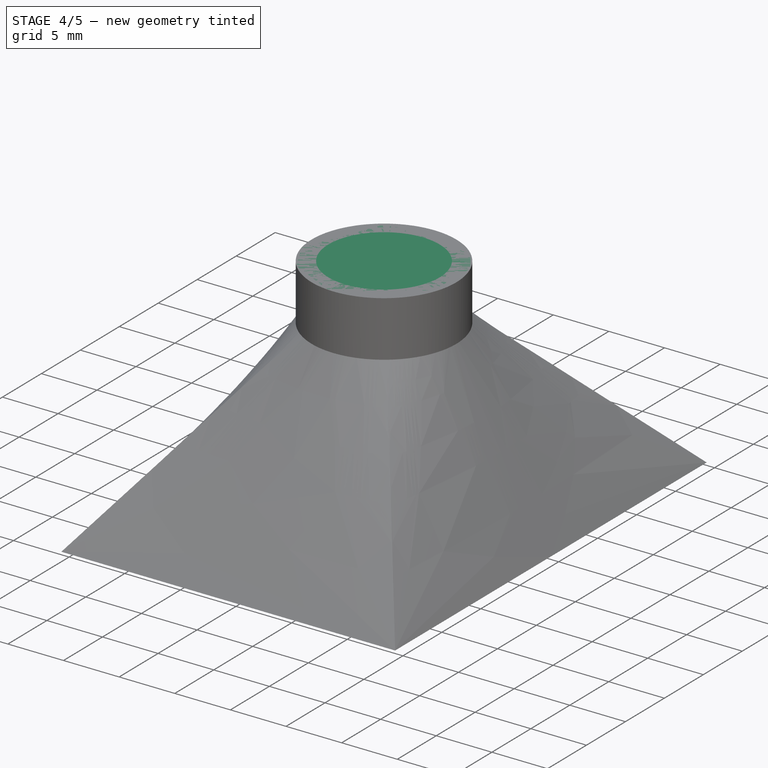
[diagram: stage 4 of 5 — iso view after this stage's code; geometry added in this stage tinted green]
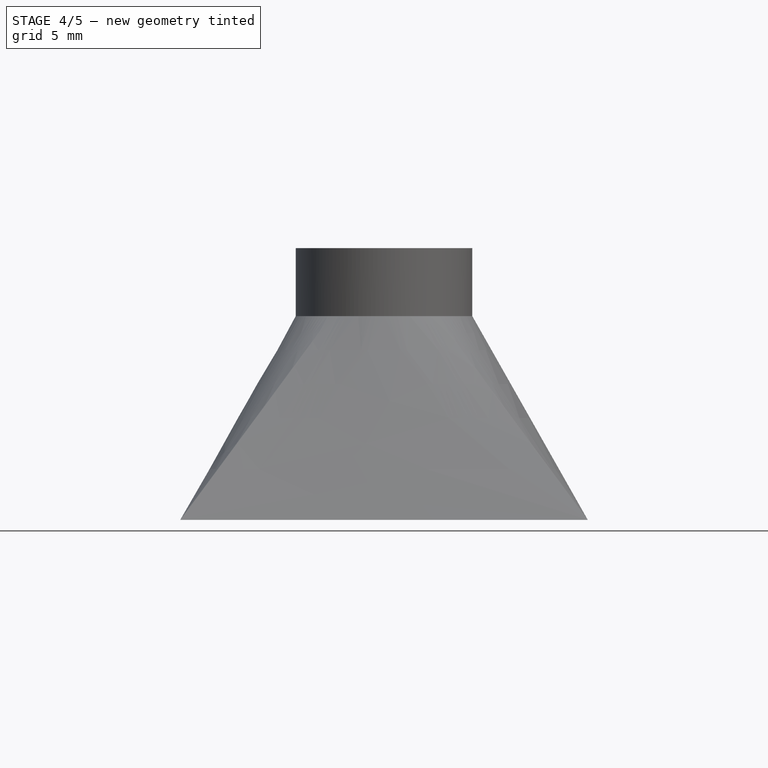
[diagram: stage 4 of 5 — front view after this stage's code; geometry added in this stage tinted green]
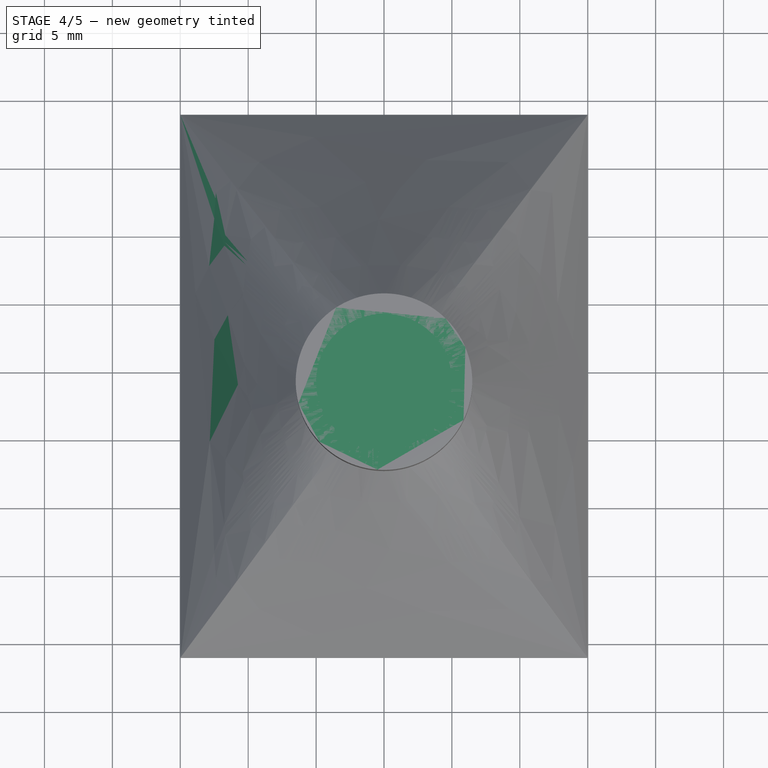
[diagram: stage 4 of 5 — top view after this stage's code; geometry added in this stage tinted green]
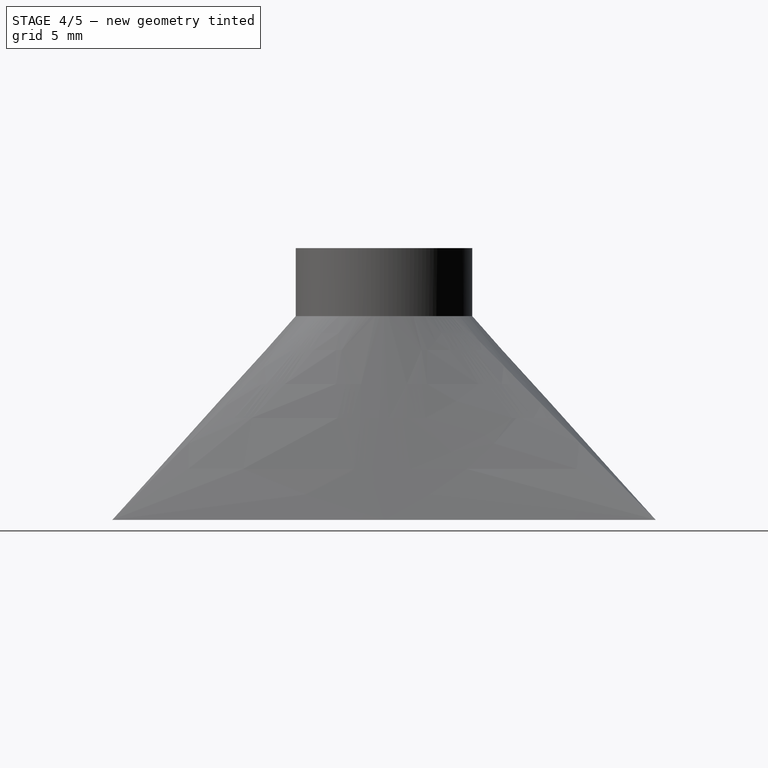
[diagram: stage 4 of 5 — right view after this stage's code; geometry added in this stage tinted green]
FEATURE [PartDesign::Body] Body002  label="Reflector002"
  Group = -> [ShapeBinder001,Sketch006,Sketch009,AdditiveLoft001,Sketch007,Pad003,Sketch011,Sketch010,Pocket001,Hole001]
  Origin = -> Origin002
  Placement = pos=(30,0,0) rot=(0,0,1;0rad)
  Tip = -> Hole001
FEATURE [Sketcher::SketchObject] Sketch013
  FullyConstrained = true
  MapMode = 5
  Support = -> [XY_Plane005]
  expr: Constraints[18] = 5 + 2
  sketch-geometry (52):
    g0: LineSegment StartX=-51 StartY=85 StartZ=0 EndX=51 EndY=85 EndZ=0
    g1: LineSegment StartX=51 StartY=85 StartZ=0 EndX=51 EndY=-85 EndZ=0
    g2: LineSegment StartX=51 StartY=-85 StartZ=0 EndX=-51 EndY=-85 EndZ=0
    g3: LineSegment StartX=-51 StartY=-85 StartZ=0 EndX=-51 EndY=85 EndZ=0
    g4: LineSegment StartX=-44 StartY=78 StartZ=0 EndX=-16 EndY=78 EndZ=0
    g5: LineSegment StartX=-16 StartY=78 StartZ=0 EndX=-16 EndY=40 EndZ=0
    g6: LineSegment StartX=-16 StartY=40 StartZ=0 EndX=-44 EndY=40 EndZ=0
    g7: LineSegment StartX=-44 StartY=40 StartZ=0 EndX=-44 EndY=78 EndZ=0
    g8: LineSegment StartX=-44 StartY=38 StartZ=0 EndX=-16 EndY=38 EndZ=0
    g9: LineSegment StartX=-16 StartY=38 StartZ=0 EndX=-16 EndY=-9.27471e-11 EndZ=0
    g10: LineSegment StartX=-16 StartY=-9.27471e-11 StartZ=0 EndX=-44 EndY=-9.27471e-11 EndZ=0
    g11: LineSegment StartX=-44 StartY=-9.27471e-11 StartZ=0 EndX=-44 EndY=38 EndZ=0
    g12: LineSegment StartX=-44 StartY=-2 StartZ=0 EndX=-16 EndY=-2 EndZ=0
    g13: LineSegment StartX=-16 StartY=-2 StartZ=0 EndX=-16 EndY=-40 EndZ=0
    g14: LineSegment StartX=-16 StartY=-40 StartZ=0 EndX=-44 EndY=-40 EndZ=0
    g15: LineSegment StartX=-44 StartY=-40 StartZ=0 EndX=-44 EndY=-2 EndZ=0
    g16: LineSegment StartX=-44 StartY=-42 StartZ=0 EndX=-16 EndY=-42 EndZ=0
    g17: LineSegment StartX=-16 StartY=-42 StartZ=0 EndX=-16 EndY=-80 EndZ=0
    g18: LineSegment StartX=-16 StartY=-80 StartZ=0 EndX=-44 EndY=-80 EndZ=0
    g19: LineSegment StartX=-44 StartY=-80 StartZ=0 EndX=-44 EndY=-42 EndZ=0
    g20: LineSegment StartX=-14 StartY=78 StartZ=0 EndX=14 EndY=78 EndZ=0
    g21: LineSegment StartX=14 StartY=78 StartZ=0 EndX=14 EndY=40 EndZ=0
    g22: LineSegment StartX=14 StartY=40 StartZ=0 EndX=-14 EndY=40 EndZ=0
    g23: LineSegment StartX=-14 StartY=40 StartZ=0 EndX=-14 EndY=78 EndZ=0
    g24: LineSegment StartX=-14 StartY=38 StartZ=0 EndX=14 EndY=38 EndZ=0
    g25: LineSegment StartX=14 StartY=38 StartZ=0 EndX=14 EndY=-2.7849e-10 EndZ=0
    g26: LineSegment StartX=14 StartY=-2.7849e-10 StartZ=0 EndX=-14 EndY=-2.7849e-10 EndZ=0
    g27: LineSegment StartX=-14 StartY=-2.7849e-10 StartZ=0 EndX=-14 EndY=38 EndZ=0
    g28: LineSegment StartX=-14 StartY=-2 StartZ=0 EndX=14 EndY=-2 EndZ=0
    g29: LineSegment StartX=14 StartY=-2 StartZ=0 EndX=14 EndY=-40 EndZ=0
    g30: LineSegment StartX=14 StartY=-40 StartZ=0 EndX=-14 EndY=-40 EndZ=0
    g31: LineSegment StartX=-14 StartY=-40 StartZ=0 EndX=-14 EndY=-2 EndZ=0
    g32: LineSegment StartX=-14 StartY=-42 StartZ=0 EndX=14 EndY=-42 EndZ=0
    g33: LineSegment StartX=14 StartY=-42 StartZ=0 EndX=14 EndY=-80 EndZ=0
    g34: LineSegment StartX=14 StartY=-80 StartZ=0 EndX=-14 EndY=-80 EndZ=0
    g35: LineSegment StartX=-14 StartY=-80 StartZ=0 EndX=-14 EndY=-42 EndZ=0
    g36: LineSegment StartX=16 StartY=78 StartZ=0 EndX=44 EndY=78 EndZ=0
    g37: LineSegment StartX=44 StartY=78 StartZ=0 EndX=44 EndY=40 EndZ=0
    g38: LineSegment StartX=44 StartY=40 StartZ=0 EndX=16 EndY=40 EndZ=0
    g39: LineSegment StartX=16 StartY=40 StartZ=0 EndX=16 EndY=78 EndZ=0
    g40: LineSegment StartX=16 StartY=38 StartZ=0 EndX=44 EndY=38 EndZ=0
    g41: LineSegment StartX=44 StartY=38 StartZ=0 EndX=44 EndY=9.30314e-11 EndZ=0
    g42: LineSegment StartX=44 StartY=9.30314e-11 StartZ=0 EndX=16 EndY=9.30314e-11 EndZ=0
    g43: LineSegment StartX=16 StartY=9.30314e-11 StartZ=0 EndX=16 EndY=38 EndZ=0
    g44: LineSegment StartX=16 StartY=-2 StartZ=0 EndX=44 EndY=-2 EndZ=0
    g45: LineSegment StartX=44 StartY=-2 StartZ=0 EndX=44 EndY=-40 EndZ=0
    g46: LineSegment StartX=44 StartY=-40 StartZ=0 EndX=16 EndY=-40 EndZ=0
    g47: LineSegment StartX=16 StartY=-40 StartZ=0 EndX=16 EndY=-2 EndZ=0
    g48: LineSegment StartX=16 StartY=-42 StartZ=0 EndX=44 EndY=-42 EndZ=0
    g49: LineSegment StartX=44 StartY=-42 StartZ=0 EndX=44 EndY=-80 EndZ=0
    g50: LineSegment StartX=44 StartY=-80 StartZ=0 EndX=16 EndY=-80 EndZ=0
    g51: LineSegment StartX=16 StartY=-80 StartZ=0 EndX=16 EndY=-42 EndZ=0
  constraints (154):
    c: Coincident(g0,g1)
    c: Coincident(g1,g2)
    c: Coincident(g2,g3)
    c: Coincident(g3,g0)
    c: Horizontal(g2)
    c: Vertical(g1)
    c: Symmetric(g0,g2,g-1)
    c: Symmetric(g0,g0,g-2)
    c: Distance(g2) = 102
    c: Distance(g1) = 170
    c: Coincident(g4,g5)
    c: Coincident(g5,g6)
    c: Coincident(g6,g7)
    c: Coincident(g7,g4)
    c: Horizontal(g4)
    c: Horizontal(g6)
    c: Vertical(g5)
    c: Vertical(g7)
    c: DistanceX(g0,g4) = 7
    c: Distance(g6) = 28
    c: Distance(g5) = 38
    c: DistanceY(g4,g0) = 7
    c: Coincident(g8,g9)
    c: Coincident(g9,g10)
    c: Coincident(g10,g11)
    c: Coincident(g11,g8)
    c: Horizontal(g8)
    c: Horizontal(g10)
    c: Vertical(g9)
    c: Vertical(g11)
    c: Equal(g6,g10) = 28
    c: Equal(g5,g9) = 38
    c: DistanceY(g8,g6) = 2
    c: DistanceX(g0,g8) = 7
    c: Coincident(g12,g13)
    c: Coincident(g13,g14)
    c: Coincident(g14,g15)
    c: Coincident(g15,g12)
    c: Horizontal(g12)
    c: Horizontal(g14)
    c: Vertical(g13)
    c: Vertical(g15)
    c: Equal(g6,g14) = 28
    c: Equal(g5,g13) = 38
    c: DistanceY(g12,g10) = 2
    c: Coincident(g16,g17)
    c: Coincident(g17,g18)
    c: Coincident(g18,g19)
    c: Coincident(g19,g16)
    c: Horizontal(g16)
    c: Horizontal(g18)
    c: Vertical(g17)
    c: Vertical(g19)
    c: Equal(g6,g18) = 28
    c: Equal(g5,g17) = 38
    c: Coincident(g20,g21)
    c: Coincident(g21,g22)
    c: Coincident(g22,g23)
    c: Coincident(g23,g20)
    c: Horizontal(g20)
    c: Horizontal(g22)
    c: Vertical(g21)
    c: Vertical(g23)
    c: Equal(g6,g22) = 28
    c: Equal(g5,g21) = 38
    c: Coincident(g24,g25)
    c: Coincident(g25,g26)
    c: Coincident(g26,g27)
    c: Coincident(g27,g24)
    c: Horizontal(g24)
    c: Horizontal(g26)
    c: Vertical(g25)
    c: Vertical(g27)
    c: Equal(g22,g26) = 28
    c: Equal(g21,g25) = 38
    c: DistanceY(g24,g22) = 2
    c: Coincident(g28,g29)
    c: Coincident(g29,g30)
    c: Coincident(g30,g31)
    c: Coincident(g31,g28)
    c: Horizontal(g28)
    c: Horizontal(g30)
    c: Vertical(g29)
    c: Vertical(g31)
    c: Equal(g22,g30) = 28
    c: Equal(g21,g29) = 38
    c: DistanceY(g28,g26) = 2
    c: Coincident(g32,g33)
    c: Coincident(g33,g34)
    c: Coincident(g34,g35)
    c: Coincident(g35,g32)
    c: Horizontal(g32)
    c: Horizontal(g34)
    c: Vertical(g33)
    c: Vertical(g35)
    c: Equal(g22,g34) = 28
    c: Equal(g21,g33) = 38
    c: DistanceY(g20,g0) = 7
    c: DistanceY(g16,g14) = 2
    c: DistanceX(g4,g20) = 2
    c: DistanceX(g0,g12) = 7
    c: DistanceX(g0,g16) = 7
    c: DistanceX(g8,g24) = 2
    c: DistanceX(g12,g28) = 2
    c: DistanceY(g32,g30) = 2
    c: DistanceX(g16,g32) = 2
    c: Coincident(g36,g37)
    c: Coincident(g37,g38)
    c: Coincident(g38,g39)
    c: Coincident(g39,g36)
    c: Horizontal(g36)
    c: Horizontal(g38)
    c: Vertical(g37)
    c: Vertical(g39)
    c: Coincident(g40,g41)
    c: Coincident(g41,g42)
    c: Coincident(g42,g43)
    c: Coincident(g43,g40)
    c: Horizontal(g40)
    c: Horizontal(g42)
    c: Vertical(g41)
    c: Vertical(g43)
    c: Equal(g38,g42) = 28
    c: DistanceY(g40,g38) = 2
    c: Coincident(g44,g45)
    c: Coincident(g45,g46)
    c: Coincident(g46,g47)
    c: Coincident(g47,g44)
    c: Horizontal(g44)
    c: Horizontal(g46)
    c: Vertical(g45)
    c: Vertical(g47)
    c: Equal(g38,g46) = 28
    c: DistanceY(g44,g42) = 2
    c: Coincident(g48,g49)
    c: Coincident(g49,g50)
    c: Coincident(g50,g51)
    c: Coincident(g51,g48)
    c: Horizontal(g48)
    c: Horizontal(g50)
    c: Vertical(g49)
    c: Vertical(g51)
    c: Equal(g38,g50) = 28
    c: Equal(g37,g49) = 38
    c: DistanceY(g48,g46) = 2
    c: DistanceY(g36,g0) = 7
    c: Equal(g37,g41)
    c: Equal(g41,g45)
    c: Equal(g49,g21)
    c: DistanceX(g20,g36) = 2
    c: DistanceX(g24,g40) = 2
    c: DistanceX(g28,g44) = 2
    c: DistanceX(g32,g48) = 2
    c: Distance(g50) = 28
FEATURE [PartDesign::Pad] Pad004
  Direction = (0,0,1)
  Length = 0.3
  Length2 = 100
  Profile = -> Sketch013
  ReferenceAxis = -> Sketch013 [N_Axis]
  Type = 0
FEATURE [PartDesign::ShapeBinder] ShapeBinder002
  Placement = pos=(0,0,0.3) rot=(0,0,1;0rad)
  Support = -> [Pad004]
  TraceSupport = false
FEATURE [Sketcher::SketchObject] Sketch014
  AttachmentOffset = pos=(0,0,15) rot=(0,0,1;0rad)
  ExternalGeometry = -> [ShapeBinder002]
  FullyConstrained = true
  MapMode = 5
  Placement = pos=(0,0,15.3) rot=(0,0,1;0rad)
  Support = -> [ShapeBinder002]
  sketch-geometry (4):
    g0: Circle CenterX=-30 CenterY=59 CenterZ=0 NormalX=0 NormalY=0 NormalZ=1 AngleXU=0 Radius=6.5
    g1: LineSegment StartX=-30 StartY=78 StartZ=0 EndX=-30 EndY=40 EndZ=0
    g2: LineSegment StartX=-44 StartY=59 StartZ=0 EndX=-16 EndY=59 EndZ=0
    g3: Circle CenterX=-30 CenterY=59 CenterZ=0 NormalX=0 NormalY=0 NormalZ=1 AngleXU=0 Radius=6
  constraints (11):
    c: PointOnObject(g1,g-4)
    c: PointOnObject(g2,g-5)
    c: PointOnObject(g2,g-3)
    c: Symmetric(g-5,g-3,g1)
    c: Symmetric(g-5,g-5,g2)
    c: DistanceY(g2,g0) = 0
    c: DistanceX(g1,g0) = 0
    c: Diameter(g0) = 13
    c: Equal(g1,g-3)
    c: Coincident(g3,g0)
    c: Diameter(g3) = 12
FEATURE [Sketcher::SketchObject] Sketch017
  ExternalGeometry = -> [ShapeBinder002]
  FullyConstrained = true
  MapMode = 5
  Placement = pos=(0,0,0.3) rot=(0,0,1;0rad)
  Support = -> [ShapeBinder002]
  sketch-geometry (8):
    g0: LineSegment StartX=-45 StartY=79 StartZ=0 EndX=-15 EndY=79 EndZ=0
    g1: LineSegment StartX=-15 StartY=79 StartZ=0 EndX=-15 EndY=39 EndZ=0
    g2: LineSegment StartX=-15 StartY=39 StartZ=0 EndX=-45 EndY=39 EndZ=0
    g3: LineSegment StartX=-45 StartY=39 StartZ=0 EndX=-45 EndY=79 EndZ=0
    g4: LineSegment StartX=-44 StartY=78 StartZ=0 EndX=-16 EndY=78 EndZ=0
    g5: LineSegment StartX=-16 StartY=78 StartZ=0 EndX=-16 EndY=40 EndZ=0
    g6: LineSegment StartX=-16 StartY=40 StartZ=0 EndX=-44 EndY=40 EndZ=0
    g7: LineSegment StartX=-44 StartY=40 StartZ=0 EndX=-44 EndY=78 EndZ=0
  constraints (24):
    c: Coincident(g0,g1)
    c: Coincident(g1,g2)
    c: Coincident(g2,g3)
    c: Coincident(g3,g0)
    c: Horizontal(g0)
    c: Horizontal(g2)
    c: Vertical(g1)
    c: Vertical(g3)
    c: Coincident(g4,g5)
    c: Coincident(g5,g6)
    c: Coincident(g6,g7)
    c: Coincident(g7,g4)
    c: Horizontal(g4)
    c: Horizontal(g6)
    c: Vertical(g5)
    c: Vertical(g7)
    c: DistanceY(g4,g0) = 1
    c: DistanceX(g0,g4) = 1
    c: DistanceX(g4,g0) = 1
    c: DistanceY(g1,g5) = 1
    c: DistanceY(g-4,g0) = 1
    c: DistanceX(g0,g-4) = -1
    c: DistanceX(g-5,g0) = -1
    c: DistanceY(g-6,g2) = -1
FEATURE [PartDesign::AdditiveLoft] AdditiveLoft002
  Closed = false
  Placement = pos=(0,0,0.3) rot=(0,0,1;0rad)
  Profile = -> Sketch017
  Ruled = false
  Sections = -> [Sketch014]
FEATURE [Sketcher::SketchObject] Sketch012
  ExternalGeometry = -> [Sketch014]
  FullyConstrained = true
  MapMode = 5
  Placement = pos=(0,0,15.3) rot=(0,0,1;0rad)
  Support = -> [AdditiveLoft002]
  sketch-geometry (1):
    g0: Circle CenterX=-30 CenterY=59 CenterZ=0 NormalX=0 NormalY=0 NormalZ=1 AngleXU=0 Radius=6.5
  constraints (2):
    c: Coincident(g0,g-3)
    c: Tangent(g0,g-3)
FEATURE [PartDesign::Pad] Pad005
  BaseFeature = -> AdditiveLoft002
  Direction = (0,0,1)
  Length = 5
  Length2 = 100
  Placement = pos=(0,0,0.3) rot=(0,0,1;0rad)
  Profile = -> Sketch012
  ReferenceAxis = -> Sketch012 [N_Axis]
  Type = 0
FEATURE [PartDesign::Body] Body003  label="Reflector003"
  Group = -> [ShapeBinder002,Sketch014,Sketch017,AdditiveLoft002,Sketch012,Pad005,Sketch016,Sketch015,Pocket002,Hole002]
  Origin = -> Origin003
  Placement = pos=(60,0,0) rot=(0,0,1;0rad)
  Tip = -> Hole002
FEATURE [Sketcher::SketchObject] Sketch020
  FullyConstrained = true
  MapMode = 5
  Support = -> [XY_Plane006]
  expr: Constraints[18] = 5 + 2
  sketch-geometry (52):
    g0: LineSegment StartX=-51 StartY=85 StartZ=0 EndX=51 EndY=85 EndZ=0
    g1: LineSegment StartX=51 StartY=85 StartZ=0 EndX=51 EndY=-85 EndZ=0
    g2: LineSegment StartX=51 StartY=-85 StartZ=0 EndX=-51 EndY=-85 EndZ=0
    g3: LineSegment StartX=-51 StartY=-85 StartZ=0 EndX=-51 EndY=85 EndZ=0
    g4: LineSegment StartX=-44 StartY=78 StartZ=0 EndX=-16 EndY=78 EndZ=0
    g5: LineSegment StartX=-16 StartY=78 StartZ=0 EndX=-16 EndY=40 EndZ=0
    g6: LineSegment StartX=-16 StartY=40 StartZ=0 EndX=-44 EndY=40 EndZ=0
    g7: LineSegment StartX=-44 StartY=40 StartZ=0 EndX=-44 EndY=78 EndZ=0
    g8: LineSegment StartX=-44 StartY=38 StartZ=0 EndX=-16 EndY=38 EndZ=0
    g9: LineSegment StartX=-16 StartY=38 StartZ=0 EndX=-16 EndY=-9.27471e-11 EndZ=0
    g10: LineSegment StartX=-16 StartY=-9.27471e-11 StartZ=0 EndX=-44 EndY=-9.27471e-11 EndZ=0
    g11: LineSegment StartX=-44 StartY=-9.27471e-11 StartZ=0 EndX=-44 EndY=38 EndZ=0
    g12: LineSegment StartX=-44 StartY=-2 StartZ=0 EndX=-16 EndY=-2 EndZ=0
    g13: LineSegment StartX=-16 StartY=-2 StartZ=0 EndX=-16 EndY=-40 EndZ=0
    g14: LineSegment StartX=-16 StartY=-40 StartZ=0 EndX=-44 EndY=-40 EndZ=0
    g15: LineSegment StartX=-44 StartY=-40 StartZ=0 EndX=-44 EndY=-2 EndZ=0
    g16: LineSegment StartX=-44 StartY=-42 StartZ=0 EndX=-16 EndY=-42 EndZ=0
    g17: LineSegment StartX=-16 StartY=-42 StartZ=0 EndX=-16 EndY=-80 EndZ=0
    g18: LineSegment StartX=-16 StartY=-80 StartZ=0 EndX=-44 EndY=-80 EndZ=0
    g19: LineSegment StartX=-44 StartY=-80 StartZ=0 EndX=-44 EndY=-42 EndZ=0
    g20: LineSegment StartX=-14 StartY=78 StartZ=0 EndX=14 EndY=78 EndZ=0
    g21: LineSegment StartX=14 StartY=78 StartZ=0 EndX=14 EndY=40 EndZ=0
    g22: LineSegment StartX=14 StartY=40 StartZ=0 EndX=-14 EndY=40 EndZ=0
    g23: LineSegment StartX=-14 StartY=40 StartZ=0 EndX=-14 EndY=78 EndZ=0
    g24: LineSegment StartX=-14 StartY=38 StartZ=0 EndX=14 EndY=38 EndZ=0
    g25: LineSegment StartX=14 StartY=38 StartZ=0 EndX=14 EndY=-2.7849e-10 EndZ=0
    g26: LineSegment StartX=14 StartY=-2.7849e-10 StartZ=0 EndX=-14 EndY=-2.7849e-10 EndZ=0
    g27: LineSegment StartX=-14 StartY=-2.7849e-10 StartZ=0 EndX=-14 EndY=38 EndZ=0
    g28: LineSegment StartX=-14 StartY=-2 StartZ=0 EndX=14 EndY=-2 EndZ=0
    g29: LineSegment StartX=14 StartY=-2 StartZ=0 EndX=14 EndY=-40 EndZ=0
    g30: LineSegment StartX=14 StartY=-40 StartZ=0 EndX=-14 EndY=-40 EndZ=0
    g31: LineSegment StartX=-14 StartY=-40 StartZ=0 EndX=-14 EndY=-2 EndZ=0
    g32: LineSegment StartX=-14 StartY=-42 StartZ=0 EndX=14 EndY=-42 EndZ=0
    g33: LineSegment StartX=14 StartY=-42 StartZ=0 EndX=14 EndY=-80 EndZ=0
    g34: LineSegment StartX=14 StartY=-80 StartZ=0 EndX=-14 EndY=-80 EndZ=0
    g35: LineSegment StartX=-14 StartY=-80 StartZ=0 EndX=-14 EndY=-42 EndZ=0
    g36: LineSegment StartX=16 StartY=78 StartZ=0 EndX=44 EndY=78 EndZ=0
    g37: LineSegment StartX=44 StartY=78 StartZ=0 EndX=44 EndY=40 EndZ=0
    g38: LineSegment StartX=44 StartY=40 StartZ=0 EndX=16 EndY=40 EndZ=0
    g39: LineSegment StartX=16 StartY=40 StartZ=0 EndX=16 EndY=78 EndZ=0
    g40: LineSegment StartX=16 StartY=38 StartZ=0 EndX=44 EndY=38 EndZ=0
    g41: LineSegment StartX=44 StartY=38 StartZ=0 EndX=44 EndY=9.30314e-11 EndZ=0
    g42: LineSegment StartX=44 StartY=9.30314e-11 StartZ=0 EndX=16 EndY=9.30314e-11 EndZ=0
    g43: LineSegment StartX=16 StartY=9.30314e-11 StartZ=0 EndX=16 EndY=38 EndZ=0
    g44: LineSegment StartX=16 StartY=-2 StartZ=0 EndX=44 EndY=-2 EndZ=0
    g45: LineSegment StartX=44 StartY=-2 StartZ=0 EndX=44 EndY=-40 EndZ=0
    g46: LineSegment StartX=44 StartY=-40 StartZ=0 EndX=16 EndY=-40 EndZ=0
    g47: LineSegment StartX=16 StartY=-40 StartZ=0 EndX=16 EndY=-2 EndZ=0
    g48: LineSegment StartX=16 StartY=-42 StartZ=0 EndX=44 EndY=-42 EndZ=0
    g49: LineSegment StartX=44 StartY=-42 StartZ=0 EndX=44 EndY=-80 EndZ=0
    g50: LineSegment StartX=44 StartY=-80 StartZ=0 EndX=16 EndY=-80 EndZ=0
    g51: LineSegment StartX=16 StartY=-80 StartZ=0 EndX=16 EndY=-42 EndZ=0
  constraints (154):
    c: Coincident(g0,g1)
    c: Coincident(g1,g2)
    c: Coincident(g2,g3)
    c: Coincident(g3,g0)
    c: Horizontal(g2)
    c: Vertical(g1)
    c: Symmetric(g0,g2,g-1)
    c: Symmetric(g0,g0,g-2)
    c: Distance(g2) = 102
    c: Distance(g1) = 170
    c: Coincident(g4,g5)
    c: Coincident(g5,g6)
    c: Coincident(g6,g7)
    c: Coincident(g7,g4)
    c: Horizontal(g4)
    c: Horizontal(g6)
    c: Vertical(g5)
    c: Vertical(g7)
    c: DistanceX(g0,g4) = 7
    c: Distance(g6) = 28
    c: Distance(g5) = 38
    c: DistanceY(g4,g0) = 7
    c: Coincident(g8,g9)
    c: Coincident(g9,g10)
    c: Coincident(g10,g11)
    c: Coincident(g11,g8)
    c: Horizontal(g8)
    c: Horizontal(g10)
    c: Vertical(g9)
    c: Vertical(g11)
    c: Equal(g6,g10) = 28
    c: Equal(g5,g9) = 38
    c: DistanceY(g8,g6) = 2
    c: DistanceX(g0,g8) = 7
    c: Coincident(g12,g13)
    c: Coincident(g13,g14)
    c: Coincident(g14,g15)
    c: Coincident(g15,g12)
    c: Horizontal(g12)
    c: Horizontal(g14)
    c: Vertical(g13)
    c: Vertical(g15)
    c: Equal(g6,g14) = 28
    c: Equal(g5,g13) = 38
    c: DistanceY(g12,g10) = 2
    c: Coincident(g16,g17)
    c: Coincident(g17,g18)
    c: Coincident(g18,g19)
    c: Coincident(g19,g16)
    c: Horizontal(g16)
    c: Horizontal(g18)
    c: Vertical(g17)
    c: Vertical(g19)
    c: Equal(g6,g18) = 28
    c: Equal(g5,g17) = 38
    c: Coincident(g20,g21)
    c: Coincident(g21,g22)
    c: Coincident(g22,g23)
    c: Coincident(g23,g20)
    c: Horizontal(g20)
    c: Horizontal(g22)
    c: Vertical(g21)
    c: Vertical(g23)
    c: Equal(g6,g22) = 28
    c: Equal(g5,g21) = 38
    c: Coincident(g24,g25)
    c: Coincident(g25,g26)
    c: Coincident(g26,g27)
    c: Coincident(g27,g24)
    c: Horizontal(g24)
    c: Horizontal(g26)
    c: Vertical(g25)
    c: Vertical(g27)
    c: Equal(g22,g26) = 28
    c: Equal(g21,g25) = 38
    c: DistanceY(g24,g22) = 2
    c: Coincident(g28,g29)
    c: Coincident(g29,g30)
    c: Coincident(g30,g31)
    c: Coincident(g31,g28)
    c: Horizontal(g28)
    c: Horizontal(g30)
    c: Vertical(g29)
    c: Vertical(g31)
    c: Equal(g22,g30) = 28
    c: Equal(g21,g29) = 38
    c: DistanceY(g28,g26) = 2
    c: Coincident(g32,g33)
    c: Coincident(g33,g34)
    c: Coincident(g34,g35)
    c: Coincident(g35,g32)
    c: Horizontal(g32)
    c: Horizontal(g34)
    c: Vertical(g33)
    c: Vertical(g35)
    c: Equal(g22,g34) = 28
    c: Equal(g21,g33) = 38
    c: DistanceY(g20,g0) = 7
    c: DistanceY(g16,g14) = 2
    c: DistanceX(g4,g20) = 2
    c: DistanceX(g0,g12) = 7
    c: DistanceX(g0,g16) = 7
    c: DistanceX(g8,g24) = 2
    c: DistanceX(g12,g28) = 2
    c: DistanceY(g32,g30) = 2
    c: DistanceX(g16,g32) = 2
    c: Coincident(g36,g37)
    c: Coincident(g37,g38)
    c: Coincident(g38,g39)
    c: Coincident(g39,g36)
    c: Horizontal(g36)
    c: Horizontal(g38)
    c: Vertical(g37)
    c: Vertical(g39)
    c: Coincident(g40,g41)
    c: Coincident(g41,g42)
    c: Coincident(g42,g43)
    c: Coincident(g43,g40)
    c: Horizontal(g40)
    c: Horizontal(g42)
    c: Vertical(g41)
    c: Vertical(g43)
    c: Equal(g38,g42) = 28
    c: DistanceY(g40,g38) = 2
    c: Coincident(g44,g45)
    c: Coincident(g45,g46)
    c: Coincident(g46,g47)
    c: Coincident(g47,g44)
    c: Horizontal(g44)
    c: Horizontal(g46)
    c: Vertical(g45)
    c: Vertical(g47)
    c: Equal(g38,g46) = 28
    c: DistanceY(g44,g42) = 2
    c: Coincident(g48,g49)
    c: Coincident(g49,g50)
    c: Coincident(g50,g51)
    c: Coincident(g51,g48)
    c: Horizontal(g48)
    c: Horizontal(g50)
    c: Vertical(g49)
    c: Vertical(g51)
    c: Equal(g38,g50) = 28
    c: Equal(g37,g49) = 38
    c: DistanceY(g48,g46) = 2
    c: DistanceY(g36,g0) = 7
    c: Equal(g37,g41)
    c: Equal(g41,g45)
    c: Equal(g49,g21)
    c: DistanceX(g20,g36) = 2
    c: DistanceX(g24,g40) = 2
    c: DistanceX(g28,g44) = 2
    c: DistanceX(g32,g48) = 2
    c: Distance(g50) = 28
FEATURE [PartDesign::Pad] Pad006
  Direction = (0,0,1)
  Length = 0.3
  Length2 = 100
  Profile = -> Sketch020
  ReferenceAxis = -> Sketch020 [N_Axis]
  Type = 0
FEATURE [PartDesign::ShapeBinder] ShapeBinder003
  Placement = pos=(0,0,0.3) rot=(0,0,1;0rad)
  Support = -> [Pad006]
  TraceSupport = false
FEATURE [Sketcher::SketchObject] Sketch018
  AttachmentOffset = pos=(0,0,15) rot=(0,0,1;0rad)
  ExternalGeometry = -> [ShapeBinder003]
  FullyConstrained = true
  MapMode = 5
  Placement = pos=(0,0,15.3) rot=(0,0,1;0rad)
  Support = -> [ShapeBinder003]
  sketch-geometry (4):
    g0: Circle CenterX=-30 CenterY=59 CenterZ=0 NormalX=0 NormalY=0 NormalZ=1 AngleXU=0 Radius=6.5
    g1: LineSegment StartX=-30 StartY=78 StartZ=0 EndX=-30 EndY=40 EndZ=0
    g2: LineSegment StartX=-44 StartY=59 StartZ=0 EndX=-16 EndY=59 EndZ=0
    g3: Circle CenterX=-30 CenterY=59 CenterZ=0 NormalX=0 NormalY=0 NormalZ=1 AngleXU=0 Radius=6
  constraints (11):
    c: PointOnObject(g1,g-4)
    c: PointOnObject(g2,g-5)
    c: PointOnObject(g2,g-3)
    c: Symmetric(g-5,g-3,g1)
    c: Symmetric(g-5,g-5,g2)
    c: DistanceY(g2,g0) = 0
    c: DistanceX(g1,g0) = 0
    c: Diameter(g0) = 13
    c: Equal(g1,g-3)
    c: Coincident(g3,g0)
    c: Diameter(g3) = 12
FEATURE [Sketcher::SketchObject] Sketch021
  ExternalGeometry = -> [ShapeBinder003]
  FullyConstrained = true
  MapMode = 5
  Placement = pos=(0,0,0.3) rot=(0,0,1;0rad)
  Support = -> [ShapeBinder003]
  sketch-geometry (8):
    g0: LineSegment StartX=-45 StartY=79 StartZ=0 EndX=-15 EndY=79 EndZ=0
    g1: LineSegment StartX=-15 StartY=79 StartZ=0 EndX=-15 EndY=39 EndZ=0
    g2: LineSegment StartX=-15 StartY=39 StartZ=0 EndX=-45 EndY=39 EndZ=0
    g3: LineSegment StartX=-45 StartY=39 StartZ=0 EndX=-45 EndY=79 EndZ=0
    g4: LineSegment StartX=-44 StartY=78 StartZ=0 EndX=-16 EndY=78 EndZ=0
    g5: LineSegment StartX=-16 StartY=78 StartZ=0 EndX=-16 EndY=40 EndZ=0
    g6: LineSegment StartX=-16 StartY=40 StartZ=0 EndX=-44 EndY=40 EndZ=0
    g7: LineSegment StartX=-44 StartY=40 StartZ=0 EndX=-44 EndY=78 EndZ=0
  constraints (24):
    c: Coincident(g0,g1)
    c: Coincident(g1,g2)
    c: Coincident(g2,g3)
    c: Coincident(g3,g0)
    c: Horizontal(g0)
    c: Horizontal(g2)
    c: Vertical(g1)
    c: Vertical(g3)
    c: Coincident(g4,g5)
    c: Coincident(g5,g6)
    c: Coincident(g6,g7)
    c: Coincident(g7,g4)
    c: Horizontal(g4)
    c: Horizontal(g6)
    c: Vertical(g5)
    c: Vertical(g7)
    c: DistanceY(g4,g0) = 1
    c: DistanceX(g0,g4) = 1
    c: DistanceX(g4,g0) = 1
    c: DistanceY(g1,g5) = 1
    c: DistanceX(g-5,g0) = -1
    c: DistanceY(g0,g-5) = -1
    c: DistanceX(g0,g-4) = -1
    c: DistanceY(g-6,g2) = -1
FEATURE [PartDesign::AdditiveLoft] AdditiveLoft003
  Closed = false
  Placement = pos=(0,0,0.3) rot=(0,0,1;0rad)
  Profile = -> Sketch021
  Ruled = false
  Sections = -> [Sketch018]
FEATURE [Sketcher::SketchObject] Sketch019
  ExternalGeometry = -> [Sketch018]
  FullyConstrained = true
  MapMode = 5
  Placement = pos=(0,0,15.3) rot=(0,0,1;0rad)
  Support = -> [AdditiveLoft003]
  sketch-geometry (1):
    g0: Circle CenterX=-30 CenterY=59 CenterZ=0 NormalX=0 NormalY=0 NormalZ=1 AngleXU=0 Radius=6.5
  constraints (2):
    c: Coincident(g0,g-3)
    c: Tangent(g0,g-3)
FEATURE [PartDesign::Pad] Pad007
  BaseFeature = -> AdditiveLoft003
  Direction = (0,0,1)
  Length = 5
  Length2 = 100
  Placement = pos=(0,0,0.3) rot=(0,0,1;0rad)
  Profile = -> Sketch019
  ReferenceAxis = -> Sketch019 [N_Axis]
  Type = 0
FEATURE [Sketcher::SketchObject] Sketch022
  ExternalGeometry = -> [Pad007]
  FullyConstrained = true
  MapMode = 5
  Placement = pos=(0,0,20.3) rot=(0,0,1;0rad)
  Support = -> [Pad007]
  sketch-geometry (1):
    g0: Circle CenterX=-30 CenterY=59 CenterZ=0 NormalX=0 NormalY=0 NormalZ=1 AngleXU=0 Radius=5
  constraints (2):
    c: Coincident(g0,g-3)
    c: Diameter(g0) = 10
FEATURE [Sketcher::SketchObject] Sketch023
  FullyConstrained = true
  MapMode = 5
  Placement = pos=(0,0,20.3) rot=(0,0,1;0rad)
  Support = -> [Pad007]
FEATURE [PartDesign::Pocket] Pocket003
  BaseFeature = -> Pad007
  Direction = (0,0,-1)
  Length = 4
  Length2 = 100
  Placement = pos=(0,0,0.3) rot=(0,0,1;0rad)
  Profile = -> Sketch022
  ReferenceAxis = -> Sketch022 [N_Axis]
  Type = 0
FEATURE [PartDesign::Hole] Hole003
  BaseFeature = -> Pocket003
  CustomThreadClearance = 0
  Depth = 25
  DepthType = 0
  Diameter = 6
  DrillForDepth = false
  DrillPoint = 1
  DrillPointAngle = 118
  HoleCutCountersinkAngle = 90
  HoleCutCustomValues = false
  HoleCutDepth = 0
  HoleCutDiameter = 6.1
  HoleCutType = 0
  ModelThread = false
  Placement = pos=(0,0,0.3) rot=(0,0,1;0rad)
  Profile = -> Pocket003 [Face16]
  Tapered = false
  TaperedAngle = 90
  ThreadClass = 0
  ThreadDepth = 25
  ThreadDepthType = 0
  ThreadDirection = 0
  ThreadFit = 0
  ThreadSize = 0
  ThreadType = 0
  Threaded = false
  UseCustomThreadClearance = false
FEATURE [PartDesign::ShapeBinder] ShapeBinder004
  Placement = pos=(0,0,0.3) rot=(0,0,1;0rad)
  Support = -> [Pad008]
  TraceSupport = false
FEATURE [Sketcher::SketchObject] Sketch025
  ExternalGeometry = -> [ShapeBinder004]
  FullyConstrained = true
  MapMode = 5
  Placement = pos=(0,0,0.3) rot=(0,0,1;0rad)
  Support = -> [ShapeBinder004]
  sketch-geometry (8):
    g0: LineSegment StartX=-45 StartY=79 StartZ=0 EndX=-15 EndY=79 EndZ=0
    g1: LineSegment StartX=-15 StartY=79 StartZ=0 EndX=-15 EndY=39 EndZ=0
    g2: LineSegment StartX=-15 StartY=39 StartZ=0 EndX=-45 EndY=39 EndZ=0
    g3: LineSegment StartX=-45 StartY=39 StartZ=0 EndX=-45 EndY=79 EndZ=0
    g4: LineSegment StartX=-44 StartY=78 StartZ=0 EndX=-16 EndY=78 EndZ=0
    g5: LineSegment StartX=-16 StartY=78 StartZ=0 EndX=-16 EndY=40 EndZ=0
    g6: LineSegment StartX=-16 StartY=40 StartZ=0 EndX=-44 EndY=40 EndZ=0
    g7: LineSegment StartX=-44 StartY=40 StartZ=0 EndX=-44 EndY=78 EndZ=0
  constraints (24):
    c: Coincident(g0,g1)
    c: Coincident(g1,g2)
    c: Coincident(g2,g3)
    c: Coincident(g3,g0)
    c: Horizontal(g0)
    c: Horizontal(g2)
    c: Vertical(g1)
    c: Vertical(g3)
    c: Coincident(g4,g5)
    c: Coincident(g5,g6)
    c: Coincident(g6,g7)
    c: Coincident(g7,g4)
    c: Horizontal(g4)
    c: Horizontal(g6)
    c: Vertical(g5)
    c: Vertical(g7)
    c: DistanceY(g4,g0) = 1
    c: DistanceX(g0,g4) = 1
    c: DistanceX(g4,g0) = 1
    c: DistanceY(g1,g5) = 1
    c: DistanceY(g-6,g2) = -1
    c: DistanceX(g-5,g0) = -1
    c: DistanceY(g0,g-4) = -1
    c: DistanceX(g0,g-4) = -1
FEATURE [Sketcher::SketchObject] Sketch027
  AttachmentOffset = pos=(0,0,15) rot=(0,0,1;0rad)
  ExternalGeometry = -> [ShapeBinder004]
  FullyConstrained = true
  MapMode = 5
  Placement = pos=(0,0,15.3) rot=(0,0,1;0rad)
  Support = -> [ShapeBinder004]
  sketch-geometry (4):
    g0: Circle CenterX=-30 CenterY=59 CenterZ=0 NormalX=0 NormalY=0 NormalZ=1 AngleXU=0 Radius=6.5
    g1: LineSegment StartX=-30 StartY=78 StartZ=0 EndX=-30 EndY=40 EndZ=0
    g2: LineSegment StartX=-44 StartY=59 StartZ=0 EndX=-16 EndY=59 EndZ=0
    g3: Circle CenterX=-30 CenterY=59 CenterZ=0 NormalX=0 NormalY=0 NormalZ=1 AngleXU=0 Radius=6
  constraints (11):
    c: PointOnObject(g1,g-4)
    c: PointOnObject(g2,g-5)
    c: PointOnObject(g2,g-3)
    c: Symmetric(g-5,g-3,g1)
    c: Symmetric(g-5,g-5,g2)
    c: DistanceY(g2,g0) = 0
    c: DistanceX(g1,g0) = 0
    c: Diameter(g0) = 13
    c: Equal(g1,g-3)
    c: Coincident(g3,g0)
    c: Diameter(g3) = 12
FEATURE [PartDesign::AdditiveLoft] AdditiveLoft004
  Closed = false
  Placement = pos=(0,0,0.3) rot=(0,0,1;0rad)
  Profile = -> Sketch025
  Ruled = false
  Sections = -> [Sketch027]
FEATURE [Sketcher::SketchObject] Sketch029
  ExternalGeometry = -> [Sketch027]
  FullyConstrained = true
  MapMode = 5
  Placement = pos=(0,0,15.3) rot=(0,0,1;0rad)
  Support = -> [AdditiveLoft004]
  sketch-geometry (1):
    g0: Circle CenterX=-30 CenterY=59 CenterZ=0 NormalX=0 NormalY=0 NormalZ=1 AngleXU=0 Radius=6.5
  constraints (2):
    c: Coincident(g0,g-3)
    c: Tangent(g0,g-3)
FEATURE [PartDesign::Pad] Pad009
  BaseFeature = -> AdditiveLoft004
  Direction = (0,0,1)
  Length = 5
  Length2 = 100
  Placement = pos=(0,0,0.3) rot=(0,0,1;0rad)
  Profile = -> Sketch029
  ReferenceAxis = -> Sketch029 [N_Axis]
  Type = 0
FEATURE [Sketcher::SketchObject] Sketch024
  ExternalGeometry = -> [Pad009]
  FullyConstrained = true
  MapMode = 5
  Placement = pos=(0,0,20.3) rot=(0,0,1;0rad)
  Support = -> [Pad009]
  sketch-geometry (1):
    g0: Circle CenterX=-30 CenterY=59 CenterZ=0 NormalX=0 NormalY=0 NormalZ=1 AngleXU=0 Radius=5
  constraints (2):
    c: Coincident(g0,g-3)
    c: Diameter(g0) = 10
FEATURE [PartDesign::Pocket] Pocket004
  BaseFeature = -> Pad009
  Direction = (0,0,-1)
  Length = 4
  Length2 = 100
  Placement = pos=(0,0,0.3) rot=(0,0,1;0rad)
  Profile = -> Sketch024
  ReferenceAxis = -> Sketch024 [N_Axis]
  Type = 0
FEATURE [Sketcher::SketchObject] Sketch026
  FullyConstrained = true
  MapMode = 5
  Placement = pos=(0,0,20.3) rot=(0,0,1;0rad)
  Support = -> [Pad009]
FEATURE [PartDesign::Hole] Hole004
  BaseFeature = -> Pocket004
  CustomThreadClearance = 0
  Depth = 25
  DepthType = 0
  Diameter = 6
  DrillForDepth = false
  DrillPoint = 1
  DrillPointAngle = 118
  HoleCutCountersinkAngle = 90
  HoleCutCustomValues = false
  HoleCutDepth = 0
  HoleCutDiameter = 6.1
  HoleCutType = 0
  ModelThread = false
  Placement = pos=(0,0,0.3) rot=(0,0,1;0rad)
  Profile = -> Pocket004 [Face16]
  Tapered = false
  TaperedAngle = 90
  ThreadClass = 0
  ThreadDepth = 25
  ThreadDepthType = 0
  ThreadDirection = 0
  ThreadFit = 0
  ThreadSize = 0
  ThreadType = 0
  Threaded = false
  UseCustomThreadClearance = false
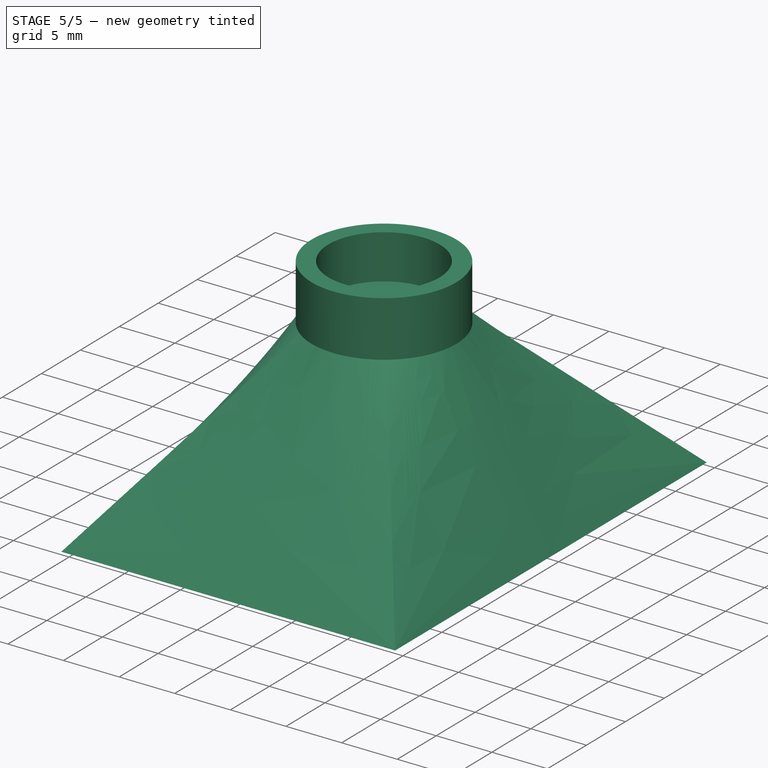
[diagram: stage 5 of 5 — iso view after this stage's code; geometry added in this stage tinted green]
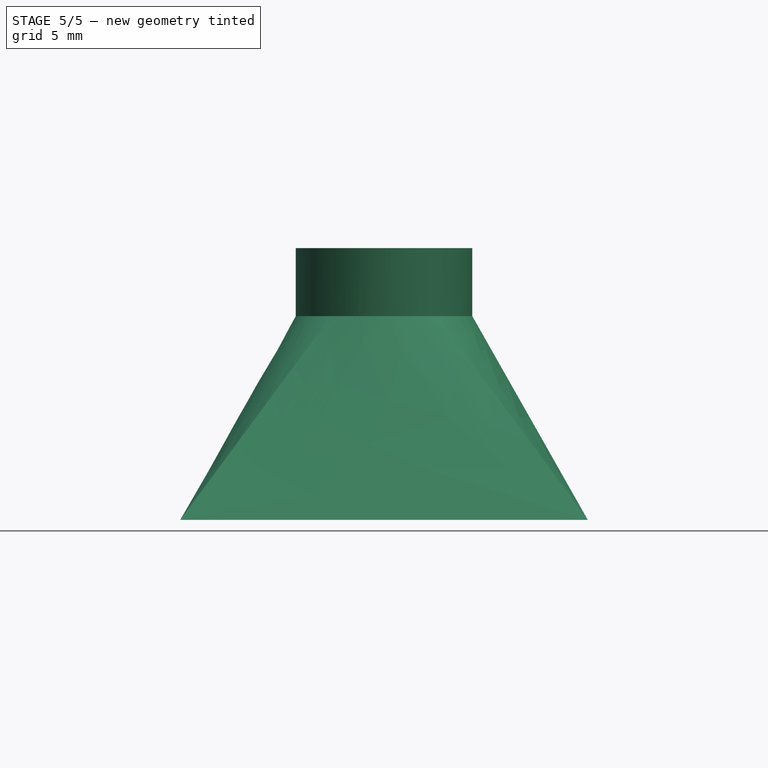
[diagram: stage 5 of 5 — front view after this stage's code; geometry added in this stage tinted green]
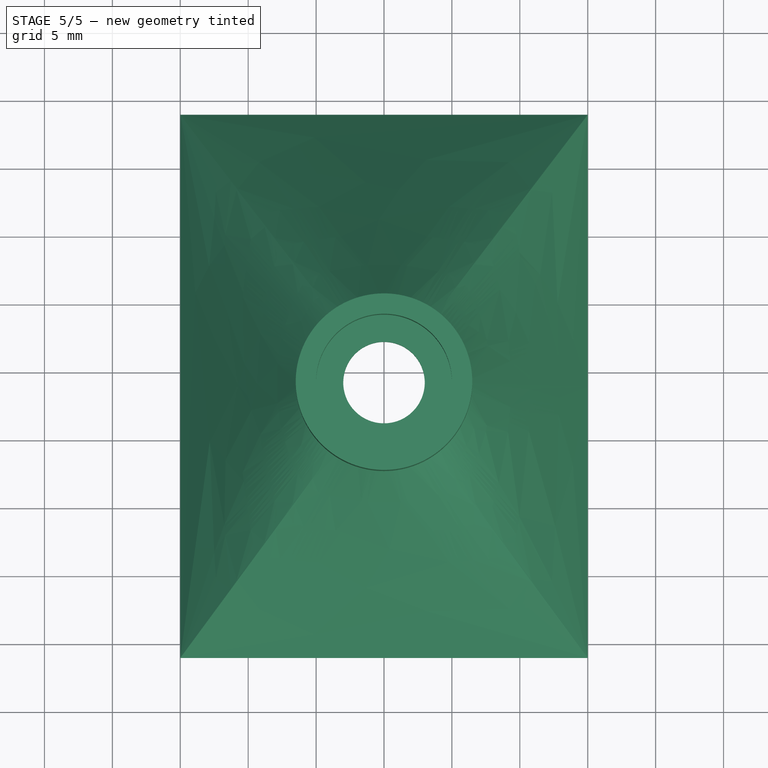
[diagram: stage 5 of 5 — top view after this stage's code; geometry added in this stage tinted green]
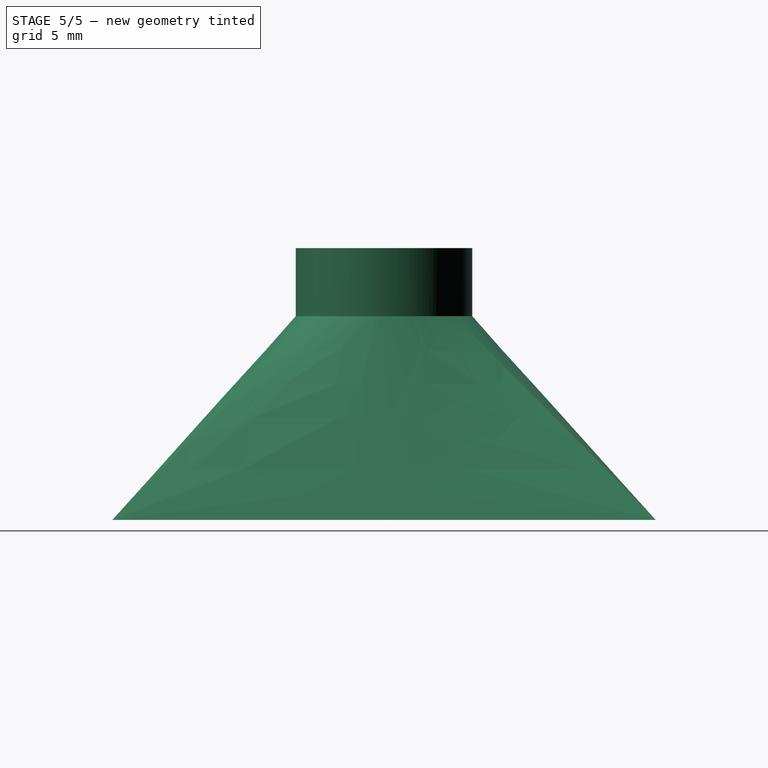
[diagram: stage 5 of 5 — right view after this stage's code; geometry added in this stage tinted green]
FEATURE [Sketcher::SketchObject] Sketch
  FullyConstrained = true
  MapMode = 5
  Support = -> [XY_Plane]
  expr: Constraints[18] = 5 + 2
  sketch-geometry (52):
    g0: LineSegment StartX=-51 StartY=85 StartZ=0 EndX=51 EndY=85 EndZ=0
    g1: LineSegment StartX=51 StartY=85 StartZ=0 EndX=51 EndY=-85 EndZ=0
    g2: LineSegment StartX=51 StartY=-85 StartZ=0 EndX=-51 EndY=-85 EndZ=0
    g3: LineSegment StartX=-51 StartY=-85 StartZ=0 EndX=-51 EndY=85 EndZ=0
    g4: LineSegment StartX=-44 StartY=78 StartZ=0 EndX=-16 EndY=78 EndZ=0
    g5: LineSegment StartX=-16 StartY=78 StartZ=0 EndX=-16 EndY=40 EndZ=0
    g6: LineSegment StartX=-16 StartY=40 StartZ=0 EndX=-44 EndY=40 EndZ=0
    g7: LineSegment StartX=-44 StartY=40 StartZ=0 EndX=-44 EndY=78 EndZ=0
    g8: LineSegment StartX=-44 StartY=38 StartZ=0 EndX=-16 EndY=38 EndZ=0
    g9: LineSegment StartX=-16 StartY=38 StartZ=0 EndX=-16 EndY=-9.27471e-11 EndZ=0
    g10: LineSegment StartX=-16 StartY=-9.27471e-11 StartZ=0 EndX=-44 EndY=-9.27471e-11 EndZ=0
    g11: LineSegment StartX=-44 StartY=-9.27471e-11 StartZ=0 EndX=-44 EndY=38 EndZ=0
    g12: LineSegment StartX=-44 StartY=-2 StartZ=0 EndX=-16 EndY=-2 EndZ=0
    g13: LineSegment StartX=-16 StartY=-2 StartZ=0 EndX=-16 EndY=-40 EndZ=0
    g14: LineSegment StartX=-16 StartY=-40 StartZ=0 EndX=-44 EndY=-40 EndZ=0
    g15: LineSegment StartX=-44 StartY=-40 StartZ=0 EndX=-44 EndY=-2 EndZ=0
    g16: LineSegment StartX=-44 StartY=-42 StartZ=0 EndX=-16 EndY=-42 EndZ=0
    g17: LineSegment StartX=-16 StartY=-42 StartZ=0 EndX=-16 EndY=-80 EndZ=0
    g18: LineSegment StartX=-16 StartY=-80 StartZ=0 EndX=-44 EndY=-80 EndZ=0
    g19: LineSegment StartX=-44 StartY=-80 StartZ=0 EndX=-44 EndY=-42 EndZ=0
    g20: LineSegment StartX=-14 StartY=78 StartZ=0 EndX=14 EndY=78 EndZ=0
    g21: LineSegment StartX=14 StartY=78 StartZ=0 EndX=14 EndY=40 EndZ=0
    g22: LineSegment StartX=14 StartY=40 StartZ=0 EndX=-14 EndY=40 EndZ=0
    g23: LineSegment StartX=-14 StartY=40 StartZ=0 EndX=-14 EndY=78 EndZ=0
    g24: LineSegment StartX=-14 StartY=38 StartZ=0 EndX=14 EndY=38 EndZ=0
    g25: LineSegment StartX=14 StartY=38 StartZ=0 EndX=14 EndY=-2.7849e-10 EndZ=0
    g26: LineSegment StartX=14 StartY=-2.7849e-10 StartZ=0 EndX=-14 EndY=-2.7849e-10 EndZ=0
    g27: LineSegment StartX=-14 StartY=-2.7849e-10 StartZ=0 EndX=-14 EndY=38 EndZ=0
    g28: LineSegment StartX=-14 StartY=-2 StartZ=0 EndX=14 EndY=-2 EndZ=0
    g29: LineSegment StartX=14 StartY=-2 StartZ=0 EndX=14 EndY=-40 EndZ=0
    g30: LineSegment StartX=14 StartY=-40 StartZ=0 EndX=-14 EndY=-40 EndZ=0
    g31: LineSegment StartX=-14 StartY=-40 StartZ=0 EndX=-14 EndY=-2 EndZ=0
    g32: LineSegment StartX=-14 StartY=-42 StartZ=0 EndX=14 EndY=-42 EndZ=0
    g33: LineSegment StartX=14 StartY=-42 StartZ=0 EndX=14 EndY=-80 EndZ=0
    g34: LineSegment StartX=14 StartY=-80 StartZ=0 EndX=-14 EndY=-80 EndZ=0
    g35: LineSegment StartX=-14 StartY=-80 StartZ=0 EndX=-14 EndY=-42 EndZ=0
    g36: LineSegment StartX=16 StartY=78 StartZ=0 EndX=44 EndY=78 EndZ=0
    g37: LineSegment StartX=44 StartY=78 StartZ=0 EndX=44 EndY=40 EndZ=0
    g38: LineSegment StartX=44 StartY=40 StartZ=0 EndX=16 EndY=40 EndZ=0
    g39: LineSegment StartX=16 StartY=40 StartZ=0 EndX=16 EndY=78 EndZ=0
    g40: LineSegment StartX=16 StartY=38 StartZ=0 EndX=44 EndY=38 EndZ=0
    g41: LineSegment StartX=44 StartY=38 StartZ=0 EndX=44 EndY=9.30314e-11 EndZ=0
    g42: LineSegment StartX=44 StartY=9.30314e-11 StartZ=0 EndX=16 EndY=9.30314e-11 EndZ=0
    g43: LineSegment StartX=16 StartY=9.30314e-11 StartZ=0 EndX=16 EndY=38 EndZ=0
    g44: LineSegment StartX=16 StartY=-2 StartZ=0 EndX=44 EndY=-2 EndZ=0
    g45: LineSegment StartX=44 StartY=-2 StartZ=0 EndX=44 EndY=-40 EndZ=0
    g46: LineSegment StartX=44 StartY=-40 StartZ=0 EndX=16 EndY=-40 EndZ=0
    g47: LineSegment StartX=16 StartY=-40 StartZ=0 EndX=16 EndY=-2 EndZ=0
    g48: LineSegment StartX=16 StartY=-42 StartZ=0 EndX=44 EndY=-42 EndZ=0
    g49: LineSegment StartX=44 StartY=-42 StartZ=0 EndX=44 EndY=-80 EndZ=0
    g50: LineSegment StartX=44 StartY=-80 StartZ=0 EndX=16 EndY=-80 EndZ=0
    g51: LineSegment StartX=16 StartY=-80 StartZ=0 EndX=16 EndY=-42 EndZ=0
  constraints (154):
    c: Coincident(g0,g1)
    c: Coincident(g1,g2)
    c: Coincident(g2,g3)
    c: Coincident(g3,g0)
    c: Horizontal(g2)
    c: Vertical(g1)
    c: Symmetric(g0,g2,g-1)
    c: Symmetric(g0,g0,g-2)
    c: Distance(g2) = 102
    c: Distance(g1) = 170
    c: Coincident(g4,g5)
    c: Coincident(g5,g6)
    c: Coincident(g6,g7)
    c: Coincident(g7,g4)
    c: Horizontal(g4)
    c: Horizontal(g6)
    c: Vertical(g5)
    c: Vertical(g7)
    c: DistanceX(g0,g4) = 7
    c: Distance(g6) = 28
    c: Distance(g5) = 38
    c: DistanceY(g4,g0) = 7
    c: Coincident(g8,g9)
    c: Coincident(g9,g10)
    c: Coincident(g10,g11)
    c: Coincident(g11,g8)
    c: Horizontal(g8)
    c: Horizontal(g10)
    c: Vertical(g9)
    c: Vertical(g11)
    c: Equal(g6,g10) = 28
    c: Equal(g5,g9) = 38
    c: DistanceY(g8,g6) = 2
    c: DistanceX(g0,g8) = 7
    c: Coincident(g12,g13)
    c: Coincident(g13,g14)
    c: Coincident(g14,g15)
    c: Coincident(g15,g12)
    c: Horizontal(g12)
    c: Horizontal(g14)
    c: Vertical(g13)
    c: Vertical(g15)
    c: Equal(g6,g14) = 28
    c: Equal(g5,g13) = 38
    c: DistanceY(g12,g10) = 2
    c: Coincident(g16,g17)
    c: Coincident(g17,g18)
    c: Coincident(g18,g19)
    c: Coincident(g19,g16)
    c: Horizontal(g16)
    c: Horizontal(g18)
    c: Vertical(g17)
    c: Vertical(g19)
    c: Equal(g6,g18) = 28
    c: Equal(g5,g17) = 38
    c: Coincident(g20,g21)
    c: Coincident(g21,g22)
    c: Coincident(g22,g23)
    c: Coincident(g23,g20)
    c: Horizontal(g20)
    c: Horizontal(g22)
    c: Vertical(g21)
    c: Vertical(g23)
    c: Equal(g6,g22) = 28
    c: Equal(g5,g21) = 38
    c: Coincident(g24,g25)
    c: Coincident(g25,g26)
    c: Coincident(g26,g27)
    c: Coincident(g27,g24)
    c: Horizontal(g24)
    c: Horizontal(g26)
    c: Vertical(g25)
    c: Vertical(g27)
    c: Equal(g22,g26) = 28
    c: Equal(g21,g25) = 38
    c: DistanceY(g24,g22) = 2
    c: Coincident(g28,g29)
    c: Coincident(g29,g30)
    c: Coincident(g30,g31)
    c: Coincident(g31,g28)
    c: Horizontal(g28)
    c: Horizontal(g30)
    c: Vertical(g29)
    c: Vertical(g31)
    c: Equal(g22,g30) = 28
    c: Equal(g21,g29) = 38
    c: DistanceY(g28,g26) = 2
    c: Coincident(g32,g33)
    c: Coincident(g33,g34)
    c: Coincident(g34,g35)
    c: Coincident(g35,g32)
    c: Horizontal(g32)
    c: Horizontal(g34)
    c: Vertical(g33)
    c: Vertical(g35)
    c: Equal(g22,g34) = 28
    c: Equal(g21,g33) = 38
    c: DistanceY(g20,g0) = 7
    c: DistanceY(g16,g14) = 2
    c: DistanceX(g4,g20) = 2
    c: DistanceX(g0,g12) = 7
    c: DistanceX(g0,g16) = 7
    c: DistanceX(g8,g24) = 2
    c: DistanceX(g12,g28) = 2
    c: DistanceY(g32,g30) = 2
    c: DistanceX(g16,g32) = 2
    c: Coincident(g36,g37)
    c: Coincident(g37,g38)
    c: Coincident(g38,g39)
    c: Coincident(g39,g36)
    c: Horizontal(g36)
    c: Horizontal(g38)
    c: Vertical(g37)
    c: Vertical(g39)
    c: Coincident(g40,g41)
    c: Coincident(g41,g42)
    c: Coincident(g42,g43)
    c: Coincident(g43,g40)
    c: Horizontal(g40)
    c: Horizontal(g42)
    c: Vertical(g41)
    c: Vertical(g43)
    c: Equal(g38,g42) = 28
    c: DistanceY(g40,g38) = 2
    c: Coincident(g44,g45)
    c: Coincident(g45,g46)
    c: Coincident(g46,g47)
    c: Coincident(g47,g44)
    c: Horizontal(g44)
    c: Horizontal(g46)
    c: Vertical(g45)
    c: Vertical(g47)
    c: Equal(g38,g46) = 28
    c: DistanceY(g44,g42) = 2
    c: Coincident(g48,g49)
    c: Coincident(g49,g50)
    c: Coincident(g50,g51)
    c: Coincident(g51,g48)
    c: Horizontal(g48)
    c: Horizontal(g50)
    c: Vertical(g49)
    c: Vertical(g51)
    c: Equal(g38,g50) = 28
    c: Equal(g37,g49) = 38
    c: DistanceY(g48,g46) = 2
    c: DistanceY(g36,g0) = 7
    c: Equal(g37,g41)
    c: Equal(g41,g45)
    c: Equal(g49,g21)
    c: DistanceX(g20,g36) = 2
    c: DistanceX(g24,g40) = 2
    c: DistanceX(g28,g44) = 2
    c: DistanceX(g32,g48) = 2
    c: Distance(g50) = 28
FEATURE [PartDesign::Pad] Pad
  Direction = (0,0,1)
  Length = 0.3
  Length2 = 100
  Profile = -> Sketch
  ReferenceAxis = -> Sketch [N_Axis]
  Type = 0
FEATURE [PartDesign::Body] Body  label="Baseplate"
  Group = -> [Sketch,Pad]
  Origin = -> Origin
  Tip = -> Pad
FEATURE [PartDesign::ShapeBinder] ShapeBinder
  Placement = pos=(0,0,0.3) rot=(0,0,1;0rad)
  Support = -> [Pad]
  TraceSupport = false
FEATURE [Sketcher::SketchObject] Sketch001
  AttachmentOffset = pos=(0,0,15) rot=(0,0,1;0rad)
  ExternalGeometry = -> [ShapeBinder]
  FullyConstrained = true
  MapMode = 5
  Placement = pos=(0,0,15.3) rot=(0,0,1;0rad)
  Support = -> [ShapeBinder]
  sketch-geometry (4):
    g0: Circle CenterX=-30 CenterY=59 CenterZ=0 NormalX=0 NormalY=0 NormalZ=1 AngleXU=0 Radius=6.5
    g1: LineSegment StartX=-30 StartY=78 StartZ=0 EndX=-30 EndY=40 EndZ=0
    g2: LineSegment StartX=-44 StartY=59 StartZ=0 EndX=-16 EndY=59 EndZ=0
    g3: Circle CenterX=-30 CenterY=59 CenterZ=0 NormalX=0 NormalY=0 NormalZ=1 AngleXU=0 Radius=6
  constraints (11):
    c: PointOnObject(g1,g-4)
    c: PointOnObject(g2,g-5)
    c: PointOnObject(g2,g-3)
    c: Symmetric(g-5,g-3,g1)
    c: Symmetric(g-5,g-5,g2)
    c: DistanceY(g2,g0) = 0
    c: DistanceX(g1,g0) = 0
    c: Diameter(g0) = 13
    c: Equal(g1,g-3)
    c: Coincident(g3,g0)
    c: Diameter(g3) = 12
FEATURE [Sketcher::SketchObject] Sketch002
  ExternalGeometry = -> [ShapeBinder]
  FullyConstrained = true
  MapMode = 5
  Placement = pos=(0,0,0.3) rot=(0,0,1;0rad)
  Support = -> [ShapeBinder]
  sketch-geometry (8):
    g0: LineSegment StartX=-45 StartY=79 StartZ=0 EndX=-15 EndY=79 EndZ=0
    g1: LineSegment StartX=-15 StartY=79 StartZ=0 EndX=-15 EndY=39 EndZ=0
    g2: LineSegment StartX=-15 StartY=39 StartZ=0 EndX=-45 EndY=39 EndZ=0
    g3: LineSegment StartX=-45 StartY=39 StartZ=0 EndX=-45 EndY=79 EndZ=0
    g4: LineSegment StartX=-44 StartY=78 StartZ=0 EndX=-16 EndY=78 EndZ=0
    g5: LineSegment StartX=-16 StartY=78 StartZ=0 EndX=-16 EndY=40 EndZ=0
    g6: LineSegment StartX=-16 StartY=40 StartZ=0 EndX=-44 EndY=40 EndZ=0
    g7: LineSegment StartX=-44 StartY=40 StartZ=0 EndX=-44 EndY=78 EndZ=0
  constraints (24):
    c: Coincident(g0,g1)
    c: Coincident(g1,g2)
    c: Coincident(g2,g3)
    c: Coincident(g3,g0)
    c: Horizontal(g0)
    c: Horizontal(g2)
    c: Vertical(g1)
    c: Vertical(g3)
    c: Coincident(g4,g5)
    c: Coincident(g5,g6)
    c: Coincident(g6,g7)
    c: Coincident(g7,g4)
    c: Horizontal(g4)
    c: Horizontal(g6)
    c: Vertical(g5)
    c: Vertical(g7)
    c: DistanceY(g4,g0) = 1
    c: DistanceX(g0,g4) = 1
    c: DistanceX(g4,g0) = 1
    c: DistanceY(g1,g5) = 1
    c: DistanceY(g0,g-4) = -1
    c: DistanceX(g0,g-4) = -1
    c: DistanceX(g-5,g0) = -1
    c: DistanceY(g-6,g2) = -1
FEATURE [PartDesign::AdditiveLoft] AdditiveLoft
  Closed = false
  Placement = pos=(0,0,0.3) rot=(0,0,1;0rad)
  Profile = -> Sketch002
  Ruled = false
  Sections = -> [Sketch001]
FEATURE [Sketcher::SketchObject] Sketch003
  ExternalGeometry = -> [Sketch001]
  FullyConstrained = true
  MapMode = 5
  Placement = pos=(0,0,15.3) rot=(0,0,1;0rad)
  Support = -> [AdditiveLoft]
  sketch-geometry (1):
    g0: Circle CenterX=-30 CenterY=59 CenterZ=0 NormalX=0 NormalY=0 NormalZ=1 AngleXU=0 Radius=6.5
  constraints (2):
    c: Coincident(g0,g-3)
    c: Tangent(g0,g-3)
FEATURE [PartDesign::Pad] Pad001
  BaseFeature = -> AdditiveLoft
  Direction = (0,0,1)
  Length = 5
  Length2 = 100
  Placement = pos=(0,0,0.3) rot=(0,0,1;0rad)
  Profile = -> Sketch003
  ReferenceAxis = -> Sketch003 [N_Axis]
  Type = 0
FEATURE [Sketcher::SketchObject] Sketch004
  FullyConstrained = true
  MapMode = 5
  Placement = pos=(0,0,20.3) rot=(0,0,1;0rad)
  Support = -> [Pad001]
FEATURE [Sketcher::SketchObject] Sketch005
  ExternalGeometry = -> [Pad001]
  FullyConstrained = true
  MapMode = 5
  Placement = pos=(0,0,20.3) rot=(0,0,1;0rad)
  Support = -> [Pad001]
  sketch-geometry (1):
    g0: Circle CenterX=-30 CenterY=59 CenterZ=0 NormalX=0 NormalY=0 NormalZ=1 AngleXU=0 Radius=5
  constraints (2):
    c: Coincident(g0,g-3)
    c: Diameter(g0) = 10
FEATURE [PartDesign::Pocket] Pocket
  BaseFeature = -> Pad001
  Direction = (0,0,-1)
  Length = 4
  Length2 = 100
  Placement = pos=(0,0,0.3) rot=(0,0,1;0rad)
  Profile = -> Sketch005
  ReferenceAxis = -> Sketch005 [N_Axis]
  Type = 0
FEATURE [PartDesign::Hole] Hole
  BaseFeature = -> Pocket
  CustomThreadClearance = 0
  Depth = 25
  DepthType = 0
  Diameter = 6
  DrillForDepth = false
  DrillPoint = 1
  DrillPointAngle = 118
  HoleCutCountersinkAngle = 90
  HoleCutCustomValues = false
  HoleCutDepth = 0
  HoleCutDiameter = 6.1
  HoleCutType = 0
  ModelThread = false
  Placement = pos=(0,0,0.3) rot=(0,0,1;0rad)
  Profile = -> Pocket [Face16]
  Tapered = false
  TaperedAngle = 90
  ThreadClass = 0
  ThreadDepth = 25
  ThreadDepthType = 0
  ThreadDirection = 0
  ThreadFit = 0
  ThreadSize = 0
  ThreadType = 0
  Threaded = false
  UseCustomThreadClearance = false
FEATURE [PartDesign::Body] Body001  label="Reflector1"
  Group = -> [ShapeBinder,Sketch001,Sketch002,AdditiveLoft,Sketch003,Pad001,Sketch004,Sketch005,Pocket,Hole]
  Origin = -> Origin001
  Tip = -> Hole
FEATURE [Sketcher::SketchObject] Sketch008
  FullyConstrained = true
  MapMode = 5
  Support = -> [XY_Plane002]
  expr: Constraints[18] = 5 + 2
  sketch-geometry (52):
    g0: LineSegment StartX=-51 StartY=85 StartZ=0 EndX=51 EndY=85 EndZ=0
    g1: LineSegment StartX=51 StartY=85 StartZ=0 EndX=51 EndY=-85 EndZ=0
    g2: LineSegment StartX=51 StartY=-85 StartZ=0 EndX=-51 EndY=-85 EndZ=0
    g3: LineSegment StartX=-51 StartY=-85 StartZ=0 EndX=-51 EndY=85 EndZ=0
    g4: LineSegment StartX=-44 StartY=78 StartZ=0 EndX=-16 EndY=78 EndZ=0
    g5: LineSegment StartX=-16 StartY=78 StartZ=0 EndX=-16 EndY=40 EndZ=0
    g6: LineSegment StartX=-16 StartY=40 StartZ=0 EndX=-44 EndY=40 EndZ=0
    g7: LineSegment StartX=-44 StartY=40 StartZ=0 EndX=-44 EndY=78 EndZ=0
    g8: LineSegment StartX=-44 StartY=38 StartZ=0 EndX=-16 EndY=38 EndZ=0
    g9: LineSegment StartX=-16 StartY=38 StartZ=0 EndX=-16 EndY=-9.27471e-11 EndZ=0
    g10: LineSegment StartX=-16 StartY=-9.27471e-11 StartZ=0 EndX=-44 EndY=-9.27471e-11 EndZ=0
    g11: LineSegment StartX=-44 StartY=-9.27471e-11 StartZ=0 EndX=-44 EndY=38 EndZ=0
    g12: LineSegment StartX=-44 StartY=-2 StartZ=0 EndX=-16 EndY=-2 EndZ=0
    g13: LineSegment StartX=-16 StartY=-2 StartZ=0 EndX=-16 EndY=-40 EndZ=0
    g14: LineSegment StartX=-16 StartY=-40 StartZ=0 EndX=-44 EndY=-40 EndZ=0
    g15: LineSegment StartX=-44 StartY=-40 StartZ=0 EndX=-44 EndY=-2 EndZ=0
    g16: LineSegment StartX=-44 StartY=-42 StartZ=0 EndX=-16 EndY=-42 EndZ=0
    g17: LineSegment StartX=-16 StartY=-42 StartZ=0 EndX=-16 EndY=-80 EndZ=0
    g18: LineSegment StartX=-16 StartY=-80 StartZ=0 EndX=-44 EndY=-80 EndZ=0
    g19: LineSegment StartX=-44 StartY=-80 StartZ=0 EndX=-44 EndY=-42 EndZ=0
    g20: LineSegment StartX=-14 StartY=78 StartZ=0 EndX=14 EndY=78 EndZ=0
    g21: LineSegment StartX=14 StartY=78 StartZ=0 EndX=14 EndY=40 EndZ=0
    g22: LineSegment StartX=14 StartY=40 StartZ=0 EndX=-14 EndY=40 EndZ=0
    g23: LineSegment StartX=-14 StartY=40 StartZ=0 EndX=-14 EndY=78 EndZ=0
    g24: LineSegment StartX=-14 StartY=38 StartZ=0 EndX=14 EndY=38 EndZ=0
    g25: LineSegment StartX=14 StartY=38 StartZ=0 EndX=14 EndY=-2.7849e-10 EndZ=0
    g26: LineSegment StartX=14 StartY=-2.7849e-10 StartZ=0 EndX=-14 EndY=-2.7849e-10 EndZ=0
    g27: LineSegment StartX=-14 StartY=-2.7849e-10 StartZ=0 EndX=-14 EndY=38 EndZ=0
    g28: LineSegment StartX=-14 StartY=-2 StartZ=0 EndX=14 EndY=-2 EndZ=0
    g29: LineSegment StartX=14 StartY=-2 StartZ=0 EndX=14 EndY=-40 EndZ=0
    g30: LineSegment StartX=14 StartY=-40 StartZ=0 EndX=-14 EndY=-40 EndZ=0
    g31: LineSegment StartX=-14 StartY=-40 StartZ=0 EndX=-14 EndY=-2 EndZ=0
    g32: LineSegment StartX=-14 StartY=-42 StartZ=0 EndX=14 EndY=-42 EndZ=0
    g33: LineSegment StartX=14 StartY=-42 StartZ=0 EndX=14 EndY=-80 EndZ=0
    g34: LineSegment StartX=14 StartY=-80 StartZ=0 EndX=-14 EndY=-80 EndZ=0
    g35: LineSegment StartX=-14 StartY=-80 StartZ=0 EndX=-14 EndY=-42 EndZ=0
    g36: LineSegment StartX=16 StartY=78 StartZ=0 EndX=44 EndY=78 EndZ=0
    g37: LineSegment StartX=44 StartY=78 StartZ=0 EndX=44 EndY=40 EndZ=0
    g38: LineSegment StartX=44 StartY=40 StartZ=0 EndX=16 EndY=40 EndZ=0
    g39: LineSegment StartX=16 StartY=40 StartZ=0 EndX=16 EndY=78 EndZ=0
    g40: LineSegment StartX=16 StartY=38 StartZ=0 EndX=44 EndY=38 EndZ=0
    g41: LineSegment StartX=44 StartY=38 StartZ=0 EndX=44 EndY=9.30314e-11 EndZ=0
    g42: LineSegment StartX=44 StartY=9.30314e-11 StartZ=0 EndX=16 EndY=9.30314e-11 EndZ=0
    g43: LineSegment StartX=16 StartY=9.30314e-11 StartZ=0 EndX=16 EndY=38 EndZ=0
    g44: LineSegment StartX=16 StartY=-2 StartZ=0 EndX=44 EndY=-2 EndZ=0
    g45: LineSegment StartX=44 StartY=-2 StartZ=0 EndX=44 EndY=-40 EndZ=0
    g46: LineSegment StartX=44 StartY=-40 StartZ=0 EndX=16 EndY=-40 EndZ=0
    g47: LineSegment StartX=16 StartY=-40 StartZ=0 EndX=16 EndY=-2 EndZ=0
    g48: LineSegment StartX=16 StartY=-42 StartZ=0 EndX=44 EndY=-42 EndZ=0
    g49: LineSegment StartX=44 StartY=-42 StartZ=0 EndX=44 EndY=-80 EndZ=0
    g50: LineSegment StartX=44 StartY=-80 StartZ=0 EndX=16 EndY=-80 EndZ=0
    g51: LineSegment StartX=16 StartY=-80 StartZ=0 EndX=16 EndY=-42 EndZ=0
  constraints (154):
    c: Coincident(g0,g1)
    c: Coincident(g1,g2)
    c: Coincident(g2,g3)
    c: Coincident(g3,g0)
    c: Horizontal(g2)
    c: Vertical(g1)
    c: Symmetric(g0,g2,g-1)
    c: Symmetric(g0,g0,g-2)
    c: Distance(g2) = 102
    c: Distance(g1) = 170
    c: Coincident(g4,g5)
    c: Coincident(g5,g6)
    c: Coincident(g6,g7)
    c: Coincident(g7,g4)
    c: Horizontal(g4)
    c: Horizontal(g6)
    c: Vertical(g5)
    c: Vertical(g7)
    c: DistanceX(g0,g4) = 7
    c: Distance(g6) = 28
    c: Distance(g5) = 38
    c: DistanceY(g4,g0) = 7
    c: Coincident(g8,g9)
    c: Coincident(g9,g10)
    c: Coincident(g10,g11)
    c: Coincident(g11,g8)
    c: Horizontal(g8)
    c: Horizontal(g10)
    c: Vertical(g9)
    c: Vertical(g11)
    c: Equal(g6,g10) = 28
    c: Equal(g5,g9) = 38
    c: DistanceY(g8,g6) = 2
    c: DistanceX(g0,g8) = 7
    c: Coincident(g12,g13)
    c: Coincident(g13,g14)
    c: Coincident(g14,g15)
    c: Coincident(g15,g12)
    c: Horizontal(g12)
    c: Horizontal(g14)
    c: Vertical(g13)
    c: Vertical(g15)
    c: Equal(g6,g14) = 28
    c: Equal(g5,g13) = 38
    c: DistanceY(g12,g10) = 2
    c: Coincident(g16,g17)
    c: Coincident(g17,g18)
    c: Coincident(g18,g19)
    c: Coincident(g19,g16)
    c: Horizontal(g16)
    c: Horizontal(g18)
    c: Vertical(g17)
    c: Vertical(g19)
    c: Equal(g6,g18) = 28
    c: Equal(g5,g17) = 38
    c: Coincident(g20,g21)
    c: Coincident(g21,g22)
    c: Coincident(g22,g23)
    c: Coincident(g23,g20)
    c: Horizontal(g20)
    c: Horizontal(g22)
    c: Vertical(g21)
    c: Vertical(g23)
    c: Equal(g6,g22) = 28
    c: Equal(g5,g21) = 38
    c: Coincident(g24,g25)
    c: Coincident(g25,g26)
    c: Coincident(g26,g27)
    c: Coincident(g27,g24)
    c: Horizontal(g24)
    c: Horizontal(g26)
    c: Vertical(g25)
    c: Vertical(g27)
    c: Equal(g22,g26) = 28
    c: Equal(g21,g25) = 38
    c: DistanceY(g24,g22) = 2
    c: Coincident(g28,g29)
    c: Coincident(g29,g30)
    c: Coincident(g30,g31)
    c: Coincident(g31,g28)
    c: Horizontal(g28)
    c: Horizontal(g30)
    c: Vertical(g29)
    c: Vertical(g31)
    c: Equal(g22,g30) = 28
    c: Equal(g21,g29) = 38
    c: DistanceY(g28,g26) = 2
    c: Coincident(g32,g33)
    c: Coincident(g33,g34)
    c: Coincident(g34,g35)
    c: Coincident(g35,g32)
    c: Horizontal(g32)
    c: Horizontal(g34)
    c: Vertical(g33)
    c: Vertical(g35)
    c: Equal(g22,g34) = 28
    c: Equal(g21,g33) = 38
    c: DistanceY(g20,g0) = 7
    c: DistanceY(g16,g14) = 2
    c: DistanceX(g4,g20) = 2
    c: DistanceX(g0,g12) = 7
    c: DistanceX(g0,g16) = 7
    c: DistanceX(g8,g24) = 2
    c: DistanceX(g12,g28) = 2
    c: DistanceY(g32,g30) = 2
    c: DistanceX(g16,g32) = 2
    c: Coincident(g36,g37)
    c: Coincident(g37,g38)
    c: Coincident(g38,g39)
    c: Coincident(g39,g36)
    c: Horizontal(g36)
    c: Horizontal(g38)
    c: Vertical(g37)
    c: Vertical(g39)
    c: Coincident(g40,g41)
    c: Coincident(g41,g42)
    c: Coincident(g42,g43)
    c: Coincident(g43,g40)
    c: Horizontal(g40)
    c: Horizontal(g42)
    c: Vertical(g41)
    c: Vertical(g43)
    c: Equal(g38,g42) = 28
    c: DistanceY(g40,g38) = 2
    c: Coincident(g44,g45)
    c: Coincident(g45,g46)
    c: Coincident(g46,g47)
    c: Coincident(g47,g44)
    c: Horizontal(g44)
    c: Horizontal(g46)
    c: Vertical(g45)
    c: Vertical(g47)
    c: Equal(g38,g46) = 28
    c: DistanceY(g44,g42) = 2
    c: Coincident(g48,g49)
    c: Coincident(g49,g50)
    c: Coincident(g50,g51)
    c: Coincident(g51,g48)
    c: Horizontal(g48)
    c: Horizontal(g50)
    c: Vertical(g49)
    c: Vertical(g51)
    c: Equal(g38,g50) = 28
    c: Equal(g37,g49) = 38
    c: DistanceY(g48,g46) = 2
    c: DistanceY(g36,g0) = 7
    c: Equal(g37,g41)
    c: Equal(g41,g45)
    c: Equal(g49,g21)
    c: DistanceX(g20,g36) = 2
    c: DistanceX(g24,g40) = 2
    c: DistanceX(g28,g44) = 2
    c: DistanceX(g32,g48) = 2
    c: Distance(g50) = 28
FEATURE [PartDesign::Pad] Pad002
  Direction = (0,0,1)
  Length = 0.3
  Length2 = 100
  Profile = -> Sketch008
  ReferenceAxis = -> Sketch008 [N_Axis]
  Type = 0
FEATURE [PartDesign::ShapeBinder] ShapeBinder001
  Placement = pos=(0,0,0.3) rot=(0,0,1;0rad)
  Support = -> [Pad002]
  TraceSupport = false
FEATURE [Sketcher::SketchObject] Sketch006
  AttachmentOffset = pos=(0,0,15) rot=(0,0,1;0rad)
  ExternalGeometry = -> [ShapeBinder001]
  FullyConstrained = true
  MapMode = 5
  Placement = pos=(0,0,15.3) rot=(0,0,1;0rad)
  Support = -> [ShapeBinder001]
  sketch-geometry (4):
    g0: Circle CenterX=-30 CenterY=59 CenterZ=0 NormalX=0 NormalY=0 NormalZ=1 AngleXU=0 Radius=6.5
    g1: LineSegment StartX=-30 StartY=78 StartZ=0 EndX=-30 EndY=40 EndZ=0
    g2: LineSegment StartX=-44 StartY=59 StartZ=0 EndX=-16 EndY=59 EndZ=0
    g3: Circle CenterX=-30 CenterY=59 CenterZ=0 NormalX=0 NormalY=0 NormalZ=1 AngleXU=0 Radius=6
  constraints (11):
    c: PointOnObject(g1,g-4)
    c: PointOnObject(g2,g-5)
    c: PointOnObject(g2,g-3)
    c: Symmetric(g-5,g-3,g1)
    c: Symmetric(g-5,g-5,g2)
    c: DistanceY(g2,g0) = 0
    c: DistanceX(g1,g0) = 0
    c: Diameter(g0) = 13
    c: Equal(g1,g-3)
    c: Coincident(g3,g0)
    c: Diameter(g3) = 12
FEATURE [Sketcher::SketchObject] Sketch009
  ExternalGeometry = -> [ShapeBinder001]
  FullyConstrained = true
  MapMode = 5
  Placement = pos=(0,0,0.3) rot=(0,0,1;0rad)
  Support = -> [ShapeBinder001]
  sketch-geometry (8):
    g0: LineSegment StartX=-45 StartY=79 StartZ=0 EndX=-15 EndY=79 EndZ=0
    g1: LineSegment StartX=-15 StartY=79 StartZ=0 EndX=-15 EndY=39 EndZ=0
    g2: LineSegment StartX=-15 StartY=39 StartZ=0 EndX=-45 EndY=39 EndZ=0
    g3: LineSegment StartX=-45 StartY=39 StartZ=0 EndX=-45 EndY=79 EndZ=0
    g4: LineSegment StartX=-44 StartY=78 StartZ=0 EndX=-16 EndY=78 EndZ=0
    g5: LineSegment StartX=-16 StartY=78 StartZ=0 EndX=-16 EndY=40 EndZ=0
    g6: LineSegment StartX=-16 StartY=40 StartZ=0 EndX=-44 EndY=40 EndZ=0
    g7: LineSegment StartX=-44 StartY=40 StartZ=0 EndX=-44 EndY=78 EndZ=0
  constraints (24):
    c: Coincident(g0,g1)
    c: Coincident(g1,g2)
    c: Coincident(g2,g3)
    c: Coincident(g3,g0)
    c: Horizontal(g0)
    c: Horizontal(g2)
    c: Vertical(g1)
    c: Vertical(g3)
    c: Coincident(g4,g5)
    c: Coincident(g5,g6)
    c: Coincident(g6,g7)
    c: Coincident(g7,g4)
    c: Horizontal(g4)
    c: Horizontal(g6)
    c: Vertical(g5)
    c: Vertical(g7)
    c: DistanceY(g4,g0) = 1
    c: DistanceX(g0,g4) = 1
    c: DistanceX(g4,g0) = 1
    c: DistanceY(g1,g5) = 1
    c: DistanceY(g-4,g0) = 1
    c: DistanceX(g0,g-4) = -1
    c: DistanceX(g-5,g0) = -1
    c: DistanceY(g-6,g2) = -1
FEATURE [PartDesign::AdditiveLoft] AdditiveLoft001
  Closed = false
  Placement = pos=(0,0,0.3) rot=(0,0,1;0rad)
  Profile = -> Sketch009
  Ruled = false
  Sections = -> [Sketch006]
FEATURE [Sketcher::SketchObject] Sketch007
  ExternalGeometry = -> [Sketch006]
  FullyConstrained = true
  MapMode = 5
  Placement = pos=(0,0,15.3) rot=(0,0,1;0rad)
  Support = -> [AdditiveLoft001]
  sketch-geometry (1):
    g0: Circle CenterX=-30 CenterY=59 CenterZ=0 NormalX=0 NormalY=0 NormalZ=1 AngleXU=0 Radius=6.5
  constraints (2):
    c: Coincident(g0,g-3)
    c: Tangent(g0,g-3)
FEATURE [PartDesign::Pad] Pad003
  BaseFeature = -> AdditiveLoft001
  Direction = (0,0,1)
  Length = 5
  Length2 = 100
  Placement = pos=(0,0,0.3) rot=(0,0,1;0rad)
  Profile = -> Sketch007
  ReferenceAxis = -> Sketch007 [N_Axis]
  Type = 0
FEATURE [Sketcher::SketchObject] Sketch010
  ExternalGeometry = -> [Pad003]
  FullyConstrained = true
  MapMode = 5
  Placement = pos=(0,0,20.3) rot=(0,0,1;0rad)
  Support = -> [Pad003]
  sketch-geometry (1):
    g0: Circle CenterX=-30 CenterY=59 CenterZ=0 NormalX=0 NormalY=0 NormalZ=1 AngleXU=0 Radius=5
  constraints (2):
    c: Coincident(g0,g-3)
    c: Diameter(g0) = 10
FEATURE [Sketcher::SketchObject] Sketch011
  FullyConstrained = true
  MapMode = 5
  Placement = pos=(0,0,20.3) rot=(0,0,1;0rad)
  Support = -> [Pad003]
FEATURE [PartDesign::Pocket] Pocket001
  BaseFeature = -> Pad003
  Direction = (0,0,-1)
  Length = 4
  Length2 = 100
  Placement = pos=(0,0,0.3) rot=(0,0,1;0rad)
  Profile = -> Sketch010
  ReferenceAxis = -> Sketch010 [N_Axis]
  Type = 0
FEATURE [PartDesign::Hole] Hole001
  BaseFeature = -> Pocket001
  CustomThreadClearance = 0
  Depth = 25
  DepthType = 0
  Diameter = 6
  DrillForDepth = false
  DrillPoint = 1
  DrillPointAngle = 118
  HoleCutCountersinkAngle = 90
  HoleCutCustomValues = false
  HoleCutDepth = 0
  HoleCutDiameter = 6.1
  HoleCutType = 0
  ModelThread = false
  Placement = pos=(0,0,0.3) rot=(0,0,1;0rad)
  Profile = -> Pocket001 [Face16]
  Tapered = false
  TaperedAngle = 90
  ThreadClass = 0
  ThreadDepth = 25
  ThreadDepthType = 0
  ThreadDirection = 0
  ThreadFit = 0
  ThreadSize = 0
  ThreadType = 0
  Threaded = false
  UseCustomThreadClearance = false
FEATURE [Sketcher::SketchObject] Sketch015
  ExternalGeometry = -> [Pad005]
  FullyConstrained = true
  MapMode = 5
  Placement = pos=(0,0,20.3) rot=(0,0,1;0rad)
  Support = -> [Pad005]
  sketch-geometry (1):
    g0: Circle CenterX=-30 CenterY=59 CenterZ=0 NormalX=0 NormalY=0 NormalZ=1 AngleXU=0 Radius=5
  constraints (2):
    c: Coincident(g0,g-3)
    c: Diameter(g0) = 10
FEATURE [Sketcher::SketchObject] Sketch016
  FullyConstrained = true
  MapMode = 5
  Placement = pos=(0,0,20.3) rot=(0,0,1;0rad)
  Support = -> [Pad005]
FEATURE [PartDesign::Pocket] Pocket002
  BaseFeature = -> Pad005
  Direction = (0,0,-1)
  Length = 4
  Length2 = 100
  Placement = pos=(0,0,0.3) rot=(0,0,1;0rad)
  Profile = -> Sketch015
  ReferenceAxis = -> Sketch015 [N_Axis]
  Type = 0
FEATURE [PartDesign::Hole] Hole002
  BaseFeature = -> Pocket002
  CustomThreadClearance = 0
  Depth = 25
  DepthType = 0
  Diameter = 6
  DrillForDepth = false
  DrillPoint = 1
  DrillPointAngle = 118
  HoleCutCountersinkAngle = 90
  HoleCutCustomValues = false
  HoleCutDepth = 0
  HoleCutDiameter = 6.1
  HoleCutType = 0
  ModelThread = false
  Placement = pos=(0,0,0.3) rot=(0,0,1;0rad)
  Profile = -> Pocket002 [Face16]
  Tapered = false
  TaperedAngle = 90
  ThreadClass = 0
  ThreadDepth = 25
  ThreadDepthType = 0
  ThreadDirection = 0
  ThreadFit = 0
  ThreadSize = 0
  ThreadType = 0
  Threaded = false
  UseCustomThreadClearance = false
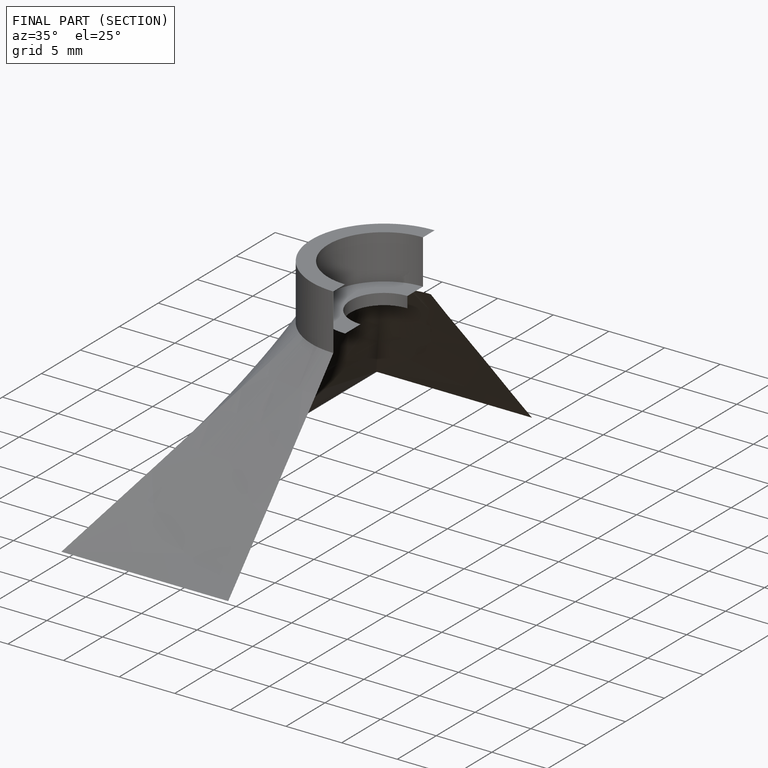
[diagram: finished part — half-section view (interior)]
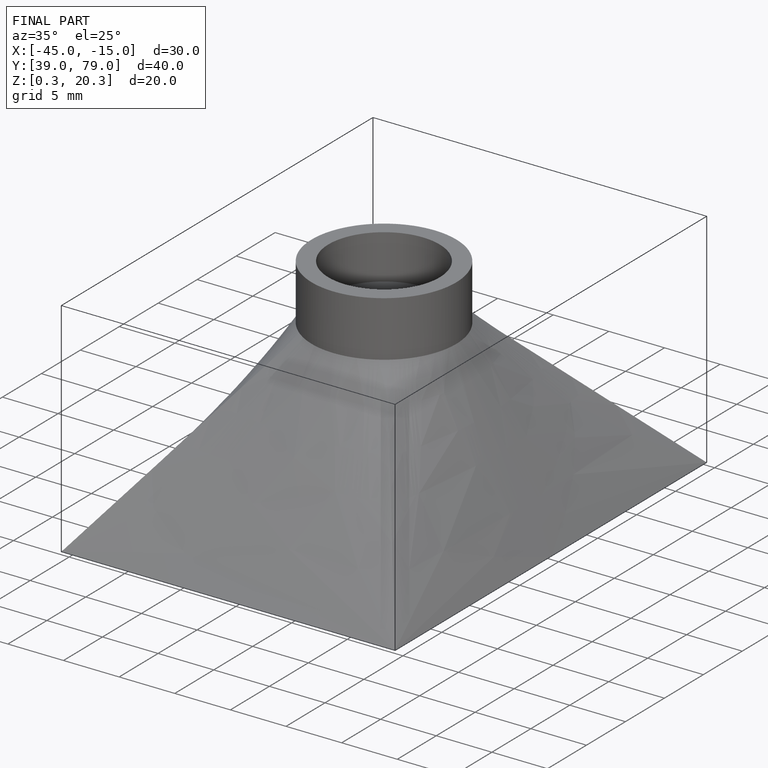
[diagram: finished part — iso view with bounding-box wireframe]
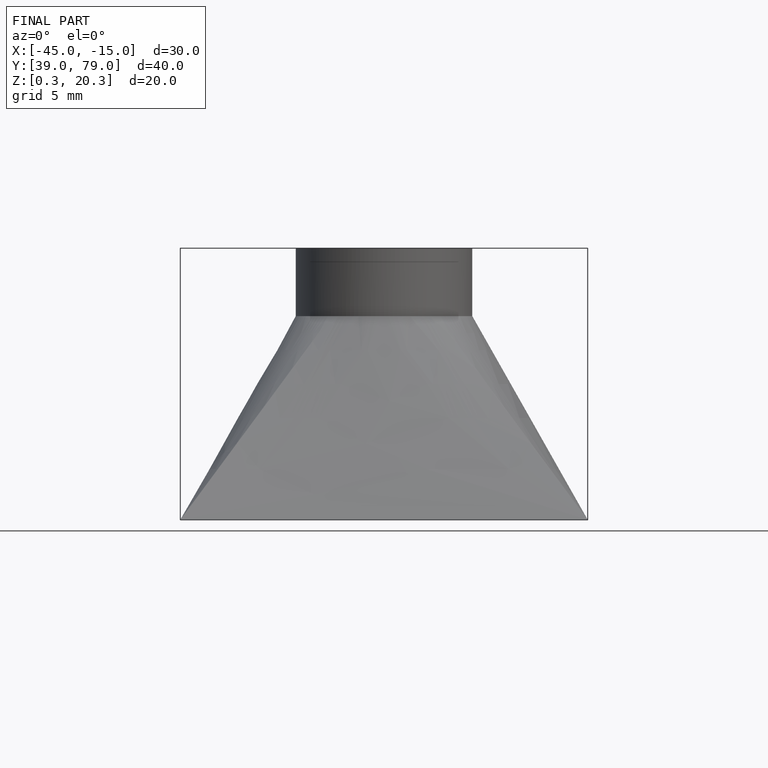
[diagram: finished part — front view with bounding-box wireframe]
